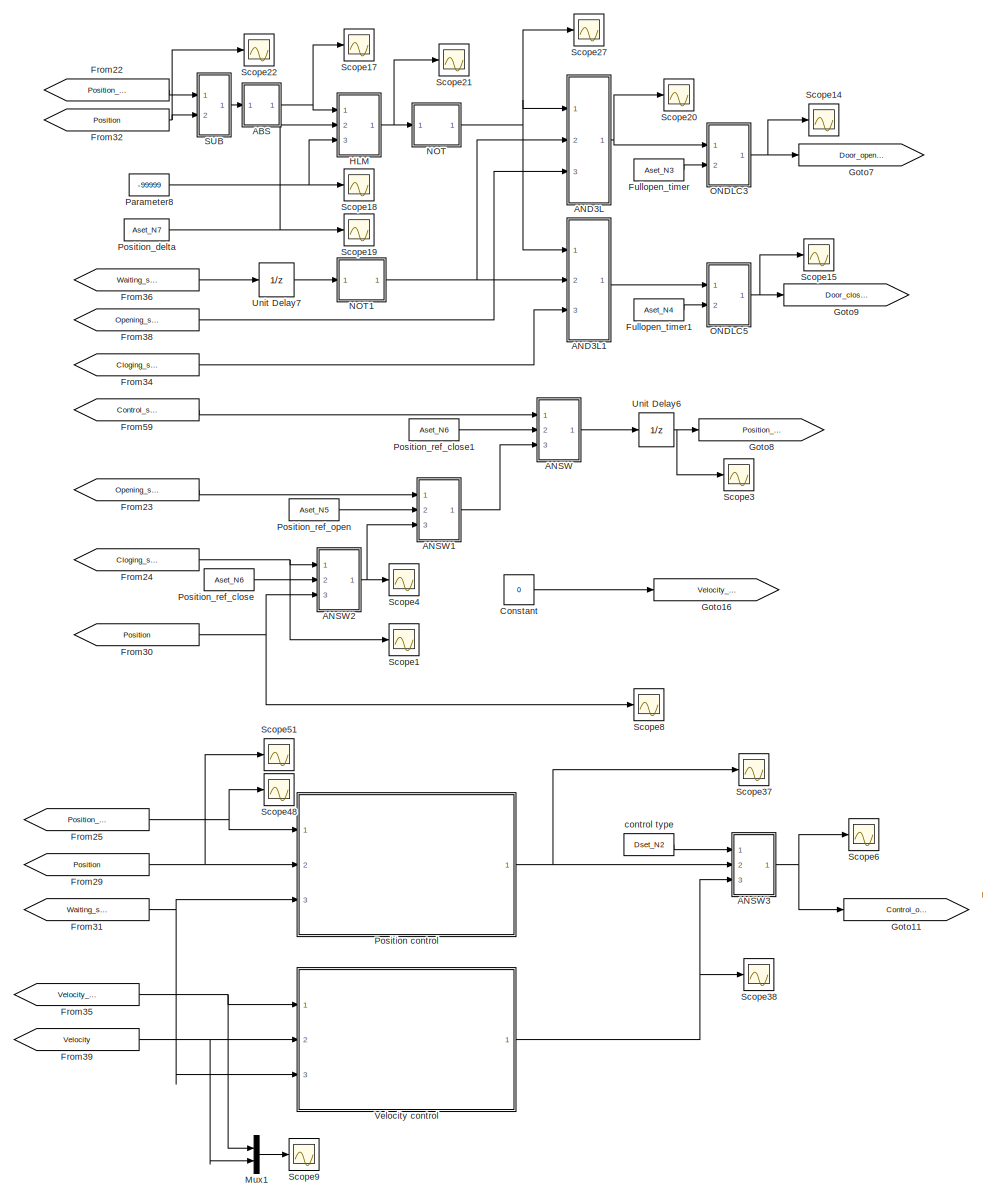
[diagram: root canvas - part 1/7, top left region]
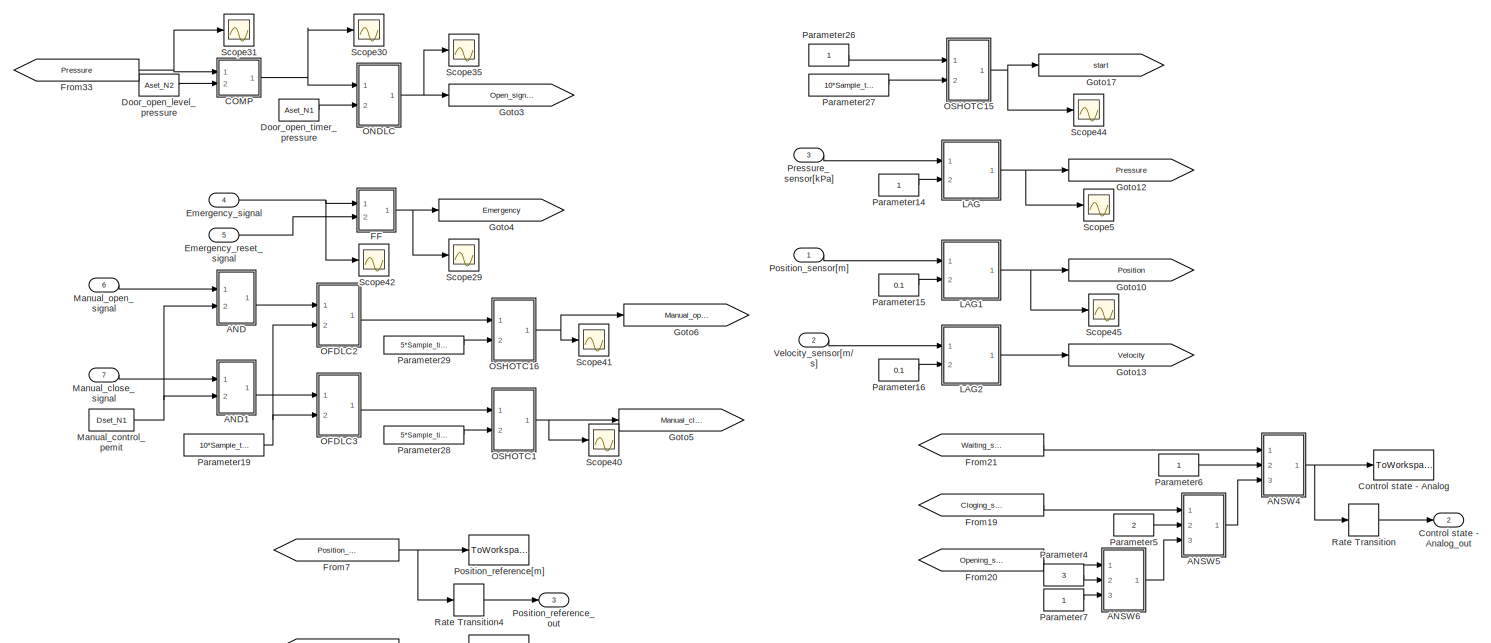
[diagram: root canvas - part 2/7, top right region]
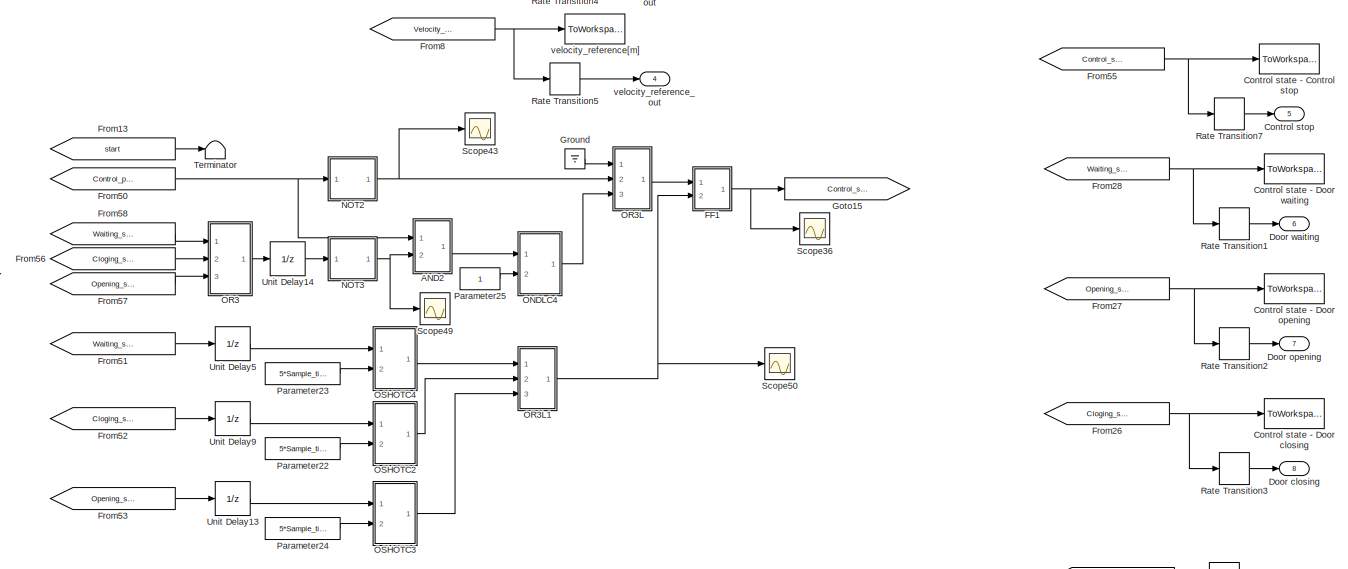
[diagram: root canvas - part 3/7, central region]
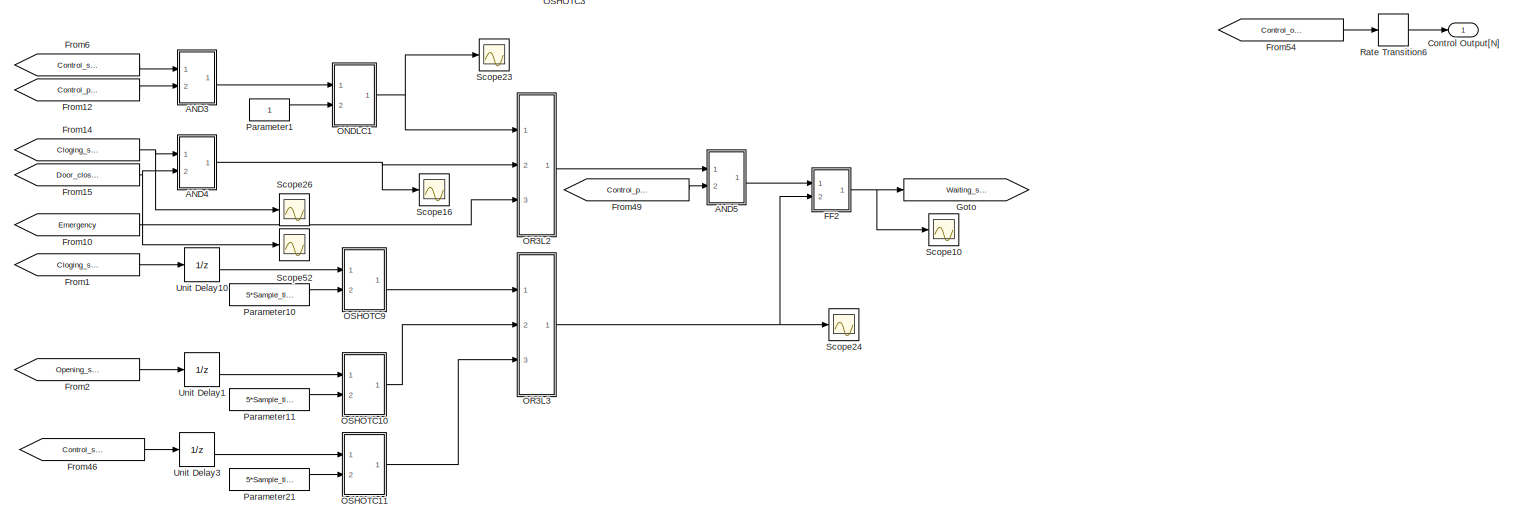
[diagram: root canvas - part 4/7, central region]
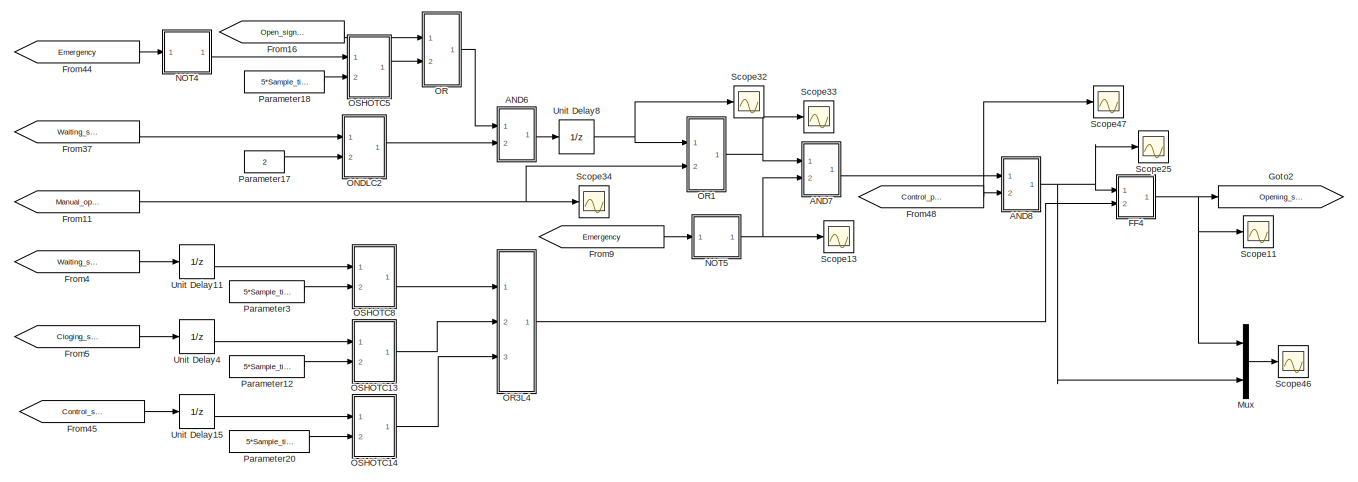
[diagram: root canvas - part 5/7, bottom center region]
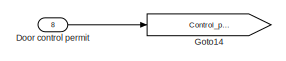
[diagram: root canvas - part 6/7, bottom left region]
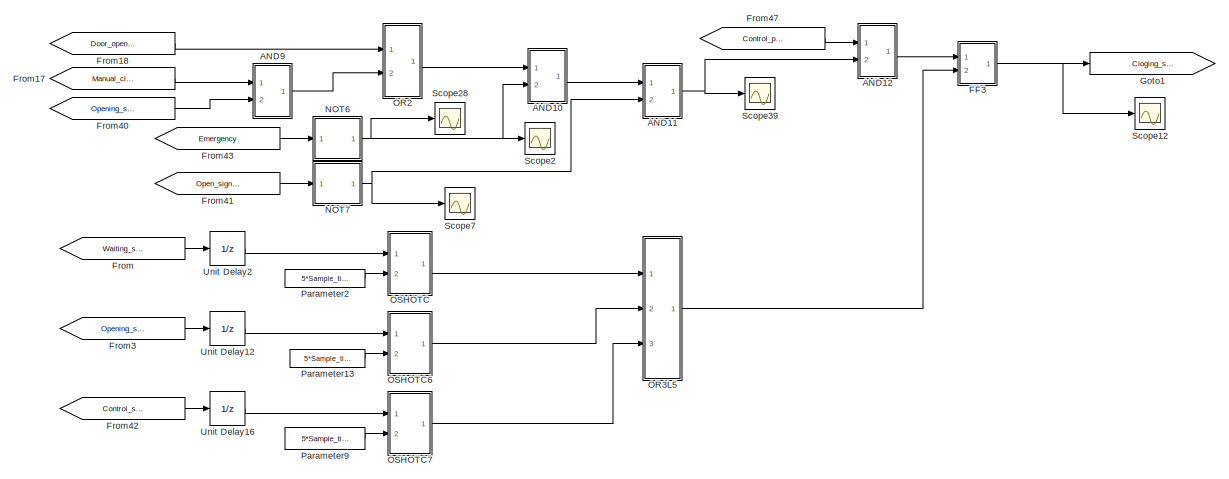
[diagram: root canvas - part 7/7, bottom center region]
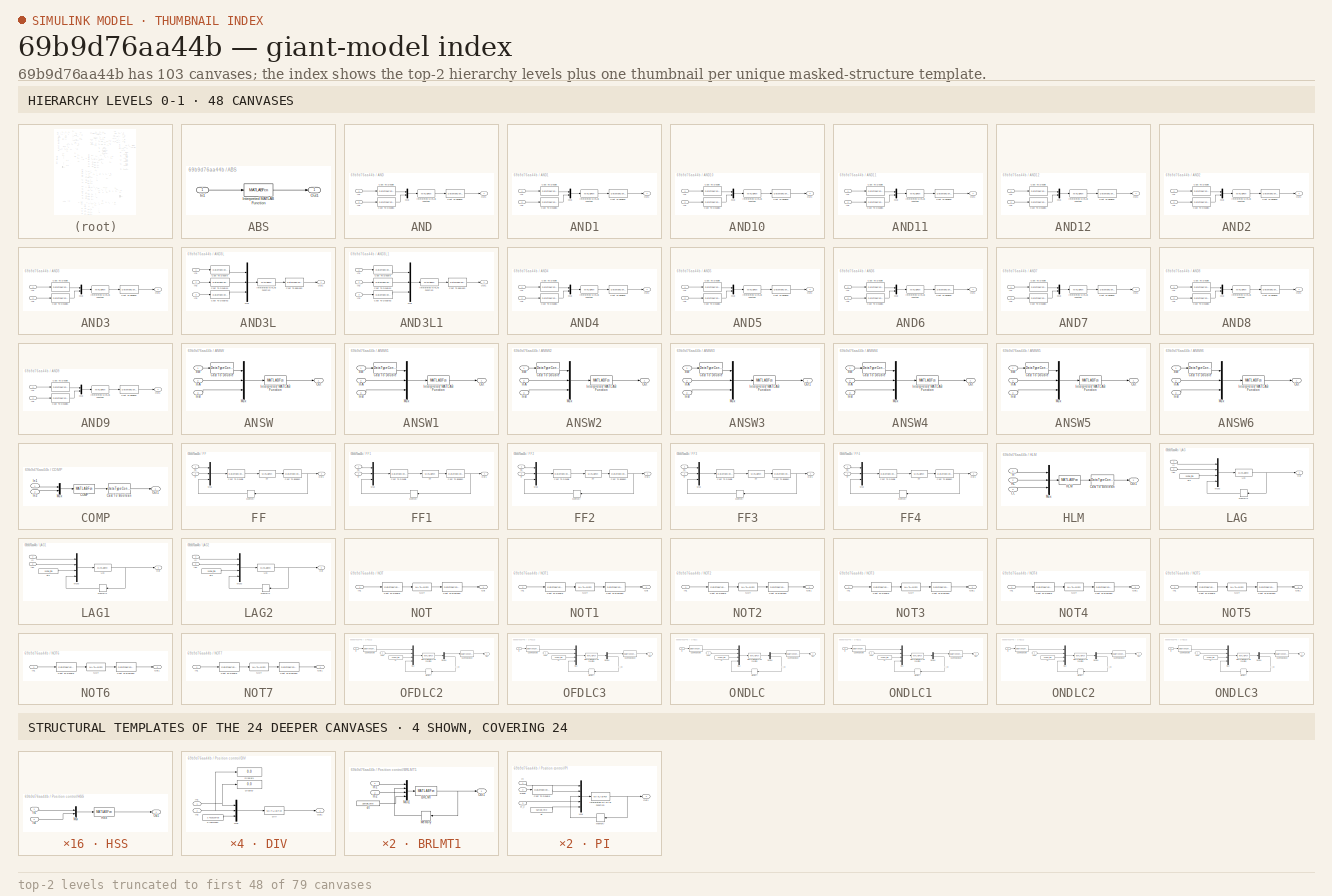
[diagram: thumbnail index - top-2 hierarchy levels (79 canvases (first 48 of 79 shown)) + 4 structural-template representatives of the remaining 24 canvases]
MODEL slx_69b9d76aa44b
KIND model
CONFIG AbsTol = auto
CONFIG EnableMultiTasking = off
CONFIG FixedStep = Sample_time
CONFIG MaxStep = auto
CONFIG MinStep = auto
CONFIG RelTol = 1e-3
CONFIG SampleTimeConstraint = Unconstrained
CONFIG Solver = FixedStepAuto
CONFIG SolverName = FixedStepAuto
CONFIG StartTime = Start_time
CONFIG StopTime = Stop_time
BLOCK [SubSystem] ABS
  Ports = [1, 1]
  RequestExecContextInheritance = off
BLOCK [Inport] ABS/In1
  IconDisplay = Port number
BLOCK [MATLABFcn] ABS/Interpreted MATLAB Function
  MATLABFcn = ABS
  Ports = [1, 1]
BLOCK [Outport] ABS/Out1
  IconDisplay = Port number
BLOCK [SubSystem] AND
  Ports = [2, 1]
  RequestExecContextInheritance = off
BLOCK [DataTypeConversion] AND/Cast To Boolean
  OutDataTypeStr = boolean
  RndMeth = Floor
  SaturateOnIntegerOverflow = off
BLOCK [DataTypeConversion] AND/Cast To Double
  OutDataTypeStr = double
  RndMeth = Floor
  SaturateOnIntegerOverflow = off
BLOCK [DataTypeConversion] AND/Cast To Double1
  OutDataTypeStr = double
  RndMeth = Floor
  SaturateOnIntegerOverflow = off
BLOCK [Inport] AND/In1
  IconDisplay = Port number
BLOCK [Inport] AND/In2
  IconDisplay = Port number
  Port = 2
BLOCK [MATLABFcn] AND/Interpreted MATLAB Function
  MATLABFcn = AND
  Ports = [1, 1]
BLOCK [Mux] AND/Mux
  DisplayOption = bar
  Inputs = 2
  Ports = [2, 1]
BLOCK [Outport] AND/Out1
  IconDisplay = Port number
BLOCK [SubSystem] AND1
  Ports = [2, 1]
  RequestExecContextInheritance = off
BLOCK [DataTypeConversion] AND1/Cast To Boolean
  OutDataTypeStr = boolean
  RndMeth = Floor
  SaturateOnIntegerOverflow = off
BLOCK [DataTypeConversion] AND1/Cast To Double
  OutDataTypeStr = double
  RndMeth = Floor
  SaturateOnIntegerOverflow = off
BLOCK [DataTypeConversion] AND1/Cast To Double1
  OutDataTypeStr = double
  RndMeth = Floor
  SaturateOnIntegerOverflow = off
BLOCK [Inport] AND1/In1
  IconDisplay = Port number
BLOCK [Inport] AND1/In2
  IconDisplay = Port number
  Port = 2
BLOCK [MATLABFcn] AND1/Interpreted MATLAB Function
  MATLABFcn = AND
  Ports = [1, 1]
BLOCK [Mux] AND1/Mux
  DisplayOption = bar
  Inputs = 2
  Ports = [2, 1]
BLOCK [Outport] AND1/Out1
  IconDisplay = Port number
BLOCK [SubSystem] AND10
  Ports = [2, 1]
  RequestExecContextInheritance = off
BLOCK [DataTypeConversion] AND10/Cast To Boolean
  OutDataTypeStr = boolean
  RndMeth = Floor
  SaturateOnIntegerOverflow = off
BLOCK [DataTypeConversion] AND10/Cast To Double
  OutDataTypeStr = double
  RndMeth = Floor
  SaturateOnIntegerOverflow = off
BLOCK [DataTypeConversion] AND10/Cast To Double1
  OutDataTypeStr = double
  RndMeth = Floor
  SaturateOnIntegerOverflow = off
BLOCK [Inport] AND10/In1
  IconDisplay = Port number
BLOCK [Inport] AND10/In2
  IconDisplay = Port number
  Port = 2
BLOCK [MATLABFcn] AND10/Interpreted MATLAB Function
  MATLABFcn = AND
  Ports = [1, 1]
BLOCK [Mux] AND10/Mux
  DisplayOption = bar
  Inputs = 2
  Ports = [2, 1]
BLOCK [Outport] AND10/Out1
  IconDisplay = Port number
BLOCK [SubSystem] AND11
  Ports = [2, 1]
  RequestExecContextInheritance = off
BLOCK [DataTypeConversion] AND11/Cast To Boolean
  OutDataTypeStr = boolean
  RndMeth = Floor
  SaturateOnIntegerOverflow = off
BLOCK [DataTypeConversion] AND11/Cast To Double
  OutDataTypeStr = double
  RndMeth = Floor
  SaturateOnIntegerOverflow = off
BLOCK [DataTypeConversion] AND11/Cast To Double1
  OutDataTypeStr = double
  RndMeth = Floor
  SaturateOnIntegerOverflow = off
BLOCK [Inport] AND11/In1
  IconDisplay = Port number
BLOCK [Inport] AND11/In2
  IconDisplay = Port number
  Port = 2
BLOCK [MATLABFcn] AND11/Interpreted MATLAB Function
  MATLABFcn = AND
  Ports = [1, 1]
BLOCK [Mux] AND11/Mux
  DisplayOption = bar
  Inputs = 2
  Ports = [2, 1]
BLOCK [Outport] AND11/Out1
  IconDisplay = Port number
BLOCK [SubSystem] AND12
  Ports = [2, 1]
  RequestExecContextInheritance = off
BLOCK [DataTypeConversion] AND12/Cast To Boolean
  OutDataTypeStr = boolean
  RndMeth = Floor
  SaturateOnIntegerOverflow = off
BLOCK [DataTypeConversion] AND12/Cast To Double
  OutDataTypeStr = double
  RndMeth = Floor
  SaturateOnIntegerOverflow = off
BLOCK [DataTypeConversion] AND12/Cast To Double1
  OutDataTypeStr = double
  RndMeth = Floor
  SaturateOnIntegerOverflow = off
BLOCK [Inport] AND12/In1
  IconDisplay = Port number
BLOCK [Inport] AND12/In2
  IconDisplay = Port number
  Port = 2
BLOCK [MATLABFcn] AND12/Interpreted MATLAB Function
  MATLABFcn = AND
  Ports = [1, 1]
BLOCK [Mux] AND12/Mux
  DisplayOption = bar
  Inputs = 2
  Ports = [2, 1]
BLOCK [Outport] AND12/Out1
  IconDisplay = Port number
BLOCK [SubSystem] AND2
  Ports = [2, 1]
  RequestExecContextInheritance = off
BLOCK [DataTypeConversion] AND2/Cast To Boolean
  OutDataTypeStr = boolean
  RndMeth = Floor
  SaturateOnIntegerOverflow = off
BLOCK [DataTypeConversion] AND2/Cast To Double
  OutDataTypeStr = double
  RndMeth = Floor
  SaturateOnIntegerOverflow = off
BLOCK [DataTypeConversion] AND2/Cast To Double1
  OutDataTypeStr = double
  RndMeth = Floor
  SaturateOnIntegerOverflow = off
BLOCK [Inport] AND2/In1
  IconDisplay = Port number
BLOCK [Inport] AND2/In2
  IconDisplay = Port number
  Port = 2
BLOCK [MATLABFcn] AND2/Interpreted MATLAB Function
  MATLABFcn = AND
  Ports = [1, 1]
BLOCK [Mux] AND2/Mux
  DisplayOption = bar
  Inputs = 2
  Ports = [2, 1]
BLOCK [Outport] AND2/Out1
  IconDisplay = Port number
BLOCK [SubSystem] AND3
  Ports = [2, 1]
  RequestExecContextInheritance = off
BLOCK [DataTypeConversion] AND3/Cast To Boolean
  OutDataTypeStr = boolean
  RndMeth = Floor
  SaturateOnIntegerOverflow = off
BLOCK [DataTypeConversion] AND3/Cast To Double
  OutDataTypeStr = double
  RndMeth = Floor
  SaturateOnIntegerOverflow = off
BLOCK [DataTypeConversion] AND3/Cast To Double1
  OutDataTypeStr = double
  RndMeth = Floor
  SaturateOnIntegerOverflow = off
BLOCK [Inport] AND3/In1
  IconDisplay = Port number
BLOCK [Inport] AND3/In2
  IconDisplay = Port number
  Port = 2
BLOCK [MATLABFcn] AND3/Interpreted MATLAB Function
  MATLABFcn = AND
  Ports = [1, 1]
BLOCK [Mux] AND3/Mux
  DisplayOption = bar
  Inputs = 2
  Ports = [2, 1]
BLOCK [Outport] AND3/Out1
  IconDisplay = Port number
BLOCK [SubSystem] AND3L
  Ports = [3, 1]
  RequestExecContextInheritance = off
BLOCK [DataTypeConversion] AND3L/Cast To Boolean
  OutDataTypeStr = boolean
  RndMeth = Floor
  SaturateOnIntegerOverflow = off
BLOCK [DataTypeConversion] AND3L/Cast To Double
  OutDataTypeStr = double
  RndMeth = Floor
  SaturateOnIntegerOverflow = off
BLOCK [DataTypeConversion] AND3L/Cast To Double1
  OutDataTypeStr = double
  RndMeth = Floor
  SaturateOnIntegerOverflow = off
BLOCK [DataTypeConversion] AND3L/Cast To Double2
  OutDataTypeStr = double
  RndMeth = Floor
  SaturateOnIntegerOverflow = off
BLOCK [Inport] AND3L/In1
  IconDisplay = Port number
BLOCK [Inport] AND3L/In2
  IconDisplay = Port number
  Port = 2
BLOCK [Inport] AND3L/In3
  IconDisplay = Port number
  Port = 3
BLOCK [MATLABFcn] AND3L/Interpreted MATLAB Function
  MATLABFcn = AND3
  Ports = [1, 1]
BLOCK [Mux] AND3L/Mux
  DisplayOption = bar
  Inputs = 3
  Ports = [3, 1]
BLOCK [Outport] AND3L/Out1
  IconDisplay = Port number
BLOCK [SubSystem] AND3L1
  Ports = [3, 1]
  RequestExecContextInheritance = off
BLOCK [DataTypeConversion] AND3L1/Cast To Boolean
  OutDataTypeStr = boolean
  RndMeth = Floor
  SaturateOnIntegerOverflow = off
BLOCK [DataTypeConversion] AND3L1/Cast To Double
  OutDataTypeStr = double
  RndMeth = Floor
  SaturateOnIntegerOverflow = off
BLOCK [DataTypeConversion] AND3L1/Cast To Double1
  OutDataTypeStr = double
  RndMeth = Floor
  SaturateOnIntegerOverflow = off
BLOCK [DataTypeConversion] AND3L1/Cast To Double2
  OutDataTypeStr = double
  RndMeth = Floor
  SaturateOnIntegerOverflow = off
BLOCK [Inport] AND3L1/In1
  IconDisplay = Port number
BLOCK [Inport] AND3L1/In2
  IconDisplay = Port number
  Port = 2
BLOCK [Inport] AND3L1/In3
  IconDisplay = Port number
  Port = 3
BLOCK [MATLABFcn] AND3L1/Interpreted MATLAB Function
  MATLABFcn = AND3
  Ports = [1, 1]
BLOCK [Mux] AND3L1/Mux
  DisplayOption = bar
  Inputs = 3
  Ports = [3, 1]
BLOCK [Outport] AND3L1/Out1
  IconDisplay = Port number
BLOCK [SubSystem] AND4
  Ports = [2, 1]
  RequestExecContextInheritance = off
BLOCK [DataTypeConversion] AND4/Cast To Boolean
  OutDataTypeStr = boolean
  RndMeth = Floor
  SaturateOnIntegerOverflow = off
BLOCK [DataTypeConversion] AND4/Cast To Double
  OutDataTypeStr = double
  RndMeth = Floor
  SaturateOnIntegerOverflow = off
BLOCK [DataTypeConversion] AND4/Cast To Double1
  OutDataTypeStr = double
  RndMeth = Floor
  SaturateOnIntegerOverflow = off
BLOCK [Inport] AND4/In1
  IconDisplay = Port number
BLOCK [Inport] AND4/In2
  IconDisplay = Port number
  Port = 2
BLOCK [MATLABFcn] AND4/Interpreted MATLAB Function
  MATLABFcn = AND
  Ports = [1, 1]
BLOCK [Mux] AND4/Mux
  DisplayOption = bar
  Inputs = 2
  Ports = [2, 1]
BLOCK [Outport] AND4/Out1
  IconDisplay = Port number
BLOCK [SubSystem] AND5
  Ports = [2, 1]
  RequestExecContextInheritance = off
BLOCK [DataTypeConversion] AND5/Cast To Boolean
  OutDataTypeStr = boolean
  RndMeth = Floor
  SaturateOnIntegerOverflow = off
BLOCK [DataTypeConversion] AND5/Cast To Double
  OutDataTypeStr = double
  RndMeth = Floor
  SaturateOnIntegerOverflow = off
BLOCK [DataTypeConversion] AND5/Cast To Double1
  OutDataTypeStr = double
  RndMeth = Floor
  SaturateOnIntegerOverflow = off
BLOCK [Inport] AND5/In1
  IconDisplay = Port number
BLOCK [Inport] AND5/In2
  IconDisplay = Port number
  Port = 2
BLOCK [MATLABFcn] AND5/Interpreted MATLAB Function
  MATLABFcn = AND
  Ports = [1, 1]
BLOCK [Mux] AND5/Mux
  DisplayOption = bar
  Inputs = 2
  Ports = [2, 1]
BLOCK [Outport] AND5/Out1
  IconDisplay = Port number
BLOCK [SubSystem] AND6
  Ports = [2, 1]
  RequestExecContextInheritance = off
BLOCK [DataTypeConversion] AND6/Cast To Boolean
  OutDataTypeStr = boolean
  RndMeth = Floor
  SaturateOnIntegerOverflow = off
BLOCK [DataTypeConversion] AND6/Cast To Double
  OutDataTypeStr = double
  RndMeth = Floor
  SaturateOnIntegerOverflow = off
BLOCK [DataTypeConversion] AND6/Cast To Double1
  OutDataTypeStr = double
  RndMeth = Floor
  SaturateOnIntegerOverflow = off
BLOCK [Inport] AND6/In1
  IconDisplay = Port number
BLOCK [Inport] AND6/In2
  IconDisplay = Port number
  Port = 2
BLOCK [MATLABFcn] AND6/Interpreted MATLAB Function
  MATLABFcn = AND
  Ports = [1, 1]
BLOCK [Mux] AND6/Mux
  DisplayOption = bar
  Inputs = 2
  Ports = [2, 1]
BLOCK [Outport] AND6/Out1
  IconDisplay = Port number
BLOCK [SubSystem] AND7
  Ports = [2, 1]
  RequestExecContextInheritance = off
BLOCK [DataTypeConversion] AND7/Cast To Boolean
  OutDataTypeStr = boolean
  RndMeth = Floor
  SaturateOnIntegerOverflow = off
BLOCK [DataTypeConversion] AND7/Cast To Double
  OutDataTypeStr = double
  RndMeth = Floor
  SaturateOnIntegerOverflow = off
BLOCK [DataTypeConversion] AND7/Cast To Double1
  OutDataTypeStr = double
  RndMeth = Floor
  SaturateOnIntegerOverflow = off
BLOCK [Inport] AND7/In1
  IconDisplay = Port number
BLOCK [Inport] AND7/In2
  IconDisplay = Port number
  Port = 2
BLOCK [MATLABFcn] AND7/Interpreted MATLAB Function
  MATLABFcn = AND
  Ports = [1, 1]
BLOCK [Mux] AND7/Mux
  DisplayOption = bar
  Inputs = 2
  Ports = [2, 1]
BLOCK [Outport] AND7/Out1
  IconDisplay = Port number
BLOCK [SubSystem] AND8
  Ports = [2, 1]
  RequestExecContextInheritance = off
BLOCK [DataTypeConversion] AND8/Cast To Boolean
  OutDataTypeStr = boolean
  RndMeth = Floor
  SaturateOnIntegerOverflow = off
BLOCK [DataTypeConversion] AND8/Cast To Double
  OutDataTypeStr = double
  RndMeth = Floor
  SaturateOnIntegerOverflow = off
BLOCK [DataTypeConversion] AND8/Cast To Double1
  OutDataTypeStr = double
  RndMeth = Floor
  SaturateOnIntegerOverflow = off
BLOCK [Inport] AND8/In1
  IconDisplay = Port number
BLOCK [Inport] AND8/In2
  IconDisplay = Port number
  Port = 2
BLOCK [MATLABFcn] AND8/Interpreted MATLAB Function
  MATLABFcn = AND
  Ports = [1, 1]
BLOCK [Mux] AND8/Mux
  DisplayOption = bar
  Inputs = 2
  Ports = [2, 1]
BLOCK [Outport] AND8/Out1
  IconDisplay = Port number
BLOCK [SubSystem] AND9
  Ports = [2, 1]
  RequestExecContextInheritance = off
BLOCK [DataTypeConversion] AND9/Cast To Boolean
  OutDataTypeStr = boolean
  RndMeth = Floor
  SaturateOnIntegerOverflow = off
BLOCK [DataTypeConversion] AND9/Cast To Double
  OutDataTypeStr = double
  RndMeth = Floor
  SaturateOnIntegerOverflow = off
BLOCK [DataTypeConversion] AND9/Cast To Double1
  OutDataTypeStr = double
  RndMeth = Floor
  SaturateOnIntegerOverflow = off
BLOCK [Inport] AND9/In1
  IconDisplay = Port number
BLOCK [Inport] AND9/In2
  IconDisplay = Port number
  Port = 2
BLOCK [MATLABFcn] AND9/Interpreted MATLAB Function
  MATLABFcn = AND
  Ports = [1, 1]
BLOCK [Mux] AND9/Mux
  DisplayOption = bar
  Inputs = 2
  Ports = [2, 1]
BLOCK [Outport] AND9/Out1
  IconDisplay = Port number
BLOCK [SubSystem] ANSW
  Ports = [3, 1]
  RequestExecContextInheritance = off
BLOCK [DataTypeConversion] ANSW/Cast To Double
  OutDataTypeStr = double
  RndMeth = Floor
  SaturateOnIntegerOverflow = off
BLOCK [Inport] ANSW/InA
  IconDisplay = Port number
  Port = 2
BLOCK [Inport] ANSW/InB
  IconDisplay = Port number
  Port = 3
BLOCK [MATLABFcn] ANSW/Interpreted MATLAB Function
  MATLABFcn = ANSW
  Ports = [1, 1]
BLOCK [Mux] ANSW/Mux
  DisplayOption = bar
  Inputs = 3
  Ports = [3, 1]
BLOCK [Outport] ANSW/Out
  IconDisplay = Port number
BLOCK [Inport] ANSW/SW
  IconDisplay = Port number
BLOCK [SubSystem] ANSW1
  Ports = [3, 1]
  RequestExecContextInheritance = off
BLOCK [DataTypeConversion] ANSW1/Cast To Double
  OutDataTypeStr = double
  RndMeth = Floor
  SaturateOnIntegerOverflow = off
BLOCK [Inport] ANSW1/InA
  IconDisplay = Port number
  Port = 2
BLOCK [Inport] ANSW1/InB
  IconDisplay = Port number
  Port = 3
BLOCK [MATLABFcn] ANSW1/Interpreted MATLAB Function
  MATLABFcn = ANSW
  Ports = [1, 1]
BLOCK [Mux] ANSW1/Mux
  DisplayOption = bar
  Inputs = 3
  Ports = [3, 1]
BLOCK [Outport] ANSW1/Out
  IconDisplay = Port number
BLOCK [Inport] ANSW1/SW
  IconDisplay = Port number
BLOCK [SubSystem] ANSW2
  Ports = [3, 1]
  RequestExecContextInheritance = off
BLOCK [DataTypeConversion] ANSW2/Cast To Double
  OutDataTypeStr = double
  RndMeth = Floor
  SaturateOnIntegerOverflow = off
BLOCK [Inport] ANSW2/InA
  IconDisplay = Port number
  Port = 2
BLOCK [Inport] ANSW2/InB
  IconDisplay = Port number
  Port = 3
BLOCK [MATLABFcn] ANSW2/Interpreted MATLAB Function
  MATLABFcn = ANSW
  Ports = [1, 1]
BLOCK [Mux] ANSW2/Mux
  DisplayOption = bar
  Inputs = 3
  Ports = [3, 1]
BLOCK [Outport] ANSW2/Out
  IconDisplay = Port number
BLOCK [Inport] ANSW2/SW
  IconDisplay = Port number
BLOCK [SubSystem] ANSW3
  Ports = [3, 1]
  RequestExecContextInheritance = off
BLOCK [DataTypeConversion] ANSW3/Cast To Double
  OutDataTypeStr = double
  RndMeth = Floor
  SaturateOnIntegerOverflow = off
BLOCK [Inport] ANSW3/InA
  IconDisplay = Port number
  Port = 2
BLOCK [Inport] ANSW3/InB
  IconDisplay = Port number
  Port = 3
BLOCK [MATLABFcn] ANSW3/Interpreted MATLAB Function
  MATLABFcn = ANSW
  Ports = [1, 1]
BLOCK [Mux] ANSW3/Mux
  DisplayOption = bar
  Inputs = 3
  Ports = [3, 1]
BLOCK [Outport] ANSW3/Out1
  IconDisplay = Port number
BLOCK [Inport] ANSW3/SW
  IconDisplay = Port number
BLOCK [SubSystem] ANSW4
  Ports = [3, 1]
  RequestExecContextInheritance = off
BLOCK [DataTypeConversion] ANSW4/Cast To Double
  OutDataTypeStr = double
  RndMeth = Floor
  SaturateOnIntegerOverflow = off
BLOCK [Inport] ANSW4/InA
  IconDisplay = Port number
  Port = 2
BLOCK [Inport] ANSW4/InB
  IconDisplay = Port number
  Port = 3
BLOCK [MATLABFcn] ANSW4/Interpreted MATLAB Function
  MATLABFcn = ANSW
  Ports = [1, 1]
BLOCK [Mux] ANSW4/Mux
  DisplayOption = bar
  Inputs = 3
  Ports = [3, 1]
BLOCK [Outport] ANSW4/Out
  IconDisplay = Port number
BLOCK [Inport] ANSW4/SW
  IconDisplay = Port number
BLOCK [SubSystem] ANSW5
  Ports = [3, 1]
  RequestExecContextInheritance = off
BLOCK [DataTypeConversion] ANSW5/Cast To Double
  OutDataTypeStr = double
  RndMeth = Floor
  SaturateOnIntegerOverflow = off
BLOCK [Inport] ANSW5/InA
  IconDisplay = Port number
  Port = 2
BLOCK [Inport] ANSW5/InB
  IconDisplay = Port number
  Port = 3
BLOCK [MATLABFcn] ANSW5/Interpreted MATLAB Function
  MATLABFcn = ANSW
  Ports = [1, 1]
BLOCK [Mux] ANSW5/Mux
  DisplayOption = bar
  Inputs = 3
  Ports = [3, 1]
BLOCK [Outport] ANSW5/Out
  IconDisplay = Port number
BLOCK [Inport] ANSW5/SW
  IconDisplay = Port number
BLOCK [SubSystem] ANSW6
  Ports = [3, 1]
  RequestExecContextInheritance = off
BLOCK [DataTypeConversion] ANSW6/Cast To Double
  OutDataTypeStr = double
  RndMeth = Floor
  SaturateOnIntegerOverflow = off
BLOCK [Inport] ANSW6/InA
  IconDisplay = Port number
  Port = 2
BLOCK [Inport] ANSW6/InB
  IconDisplay = Port number
  Port = 3
BLOCK [MATLABFcn] ANSW6/Interpreted MATLAB Function
  MATLABFcn = ANSW
  Ports = [1, 1]
BLOCK [Mux] ANSW6/Mux
  DisplayOption = bar
  Inputs = 3
  Ports = [3, 1]
BLOCK [Outport] ANSW6/Out
  IconDisplay = Port number
BLOCK [Inport] ANSW6/SW
  IconDisplay = Port number
BLOCK [SubSystem] COMP
  Ports = [2, 1]
  RequestExecContextInheritance = off
BLOCK [MATLABFcn] COMP/COMP
  MATLABFcn = COMP
  Ports = [1, 1]
BLOCK [DataTypeConversion] COMP/Cast To Boolean
  OutDataTypeStr = boolean
  RndMeth = Floor
  SaturateOnIntegerOverflow = off
BLOCK [Inport] COMP/In1
  IconDisplay = Port number
BLOCK [Inport] COMP/In2
  IconDisplay = Port number
  Port = 2
BLOCK [Mux] COMP/Mux
  DisplayOption = bar
  Inputs = 2
  Ports = [2, 1]
BLOCK [Outport] COMP/Out1
  IconDisplay = Port number
BLOCK [Constant] Constant
  Value = 0
BLOCK [Outport] Control Output[N]
  IconDisplay = Port number
  LockScale = on
  OutDataTypeStr = double
  SampleTime = Sample_time
  Unit = N
BLOCK [ToWorkspace] Control state - Analog
  FixptAsFi = on
  MaxDataPoints = inf
  Ports = [1]
  SampleTime = Sample_time
  Save2DSignal = 3-D array (concatenate along third dimension)
  VariableName = Aout_N2
BLOCK [Outport] Control state - Analog_out
  IconDisplay = Port number
  Port = 2
  SampleTime = Sample_time
BLOCK [ToWorkspace] Control state - Control stop
  FixptAsFi = on
  MaxDataPoints = inf
  Ports = [1]
  SampleTime = Sample_time
  Save2DSignal = 3-D array (concatenate along third dimension)
  VariableName = Dout_N1
BLOCK [ToWorkspace] Control state - Door closing
  FixptAsFi = on
  MaxDataPoints = inf
  Ports = [1]
  SampleTime = Sample_time
  Save2DSignal = 3-D array (concatenate along third dimension)
  VariableName = Dout_N4
BLOCK [ToWorkspace] Control state - Door opening
  FixptAsFi = on
  MaxDataPoints = inf
  Ports = [1]
  SampleTime = Sample_time
  Save2DSignal = 3-D array (concatenate along third dimension)
  VariableName = Dout_N3
BLOCK [ToWorkspace] Control state - Door waiting
  FixptAsFi = on
  MaxDataPoints = inf
  Ports = [1]
  SampleTime = Sample_time
  Save2DSignal = 3-D array (concatenate along third dimension)
  VariableName = Dout_N2
BLOCK [Outport] Control stop
  IconDisplay = Port number
  Port = 5
  SampleTime = Sample_time
BLOCK [Outport] Door closing
  IconDisplay = Port number
  Port = 8
  SampleTime = Sample_time
BLOCK [Inport] Door control permit
  IconDisplay = Port number
  OutDataTypeStr = boolean
  Port = 8
  SampleTime = Sample_time
BLOCK [Outport] Door opening
  IconDisplay = Port number
  Port = 7
  SampleTime = Sample_time
BLOCK [Outport] Door waiting
  IconDisplay = Port number
  Port = 6
  SampleTime = Sample_time
BLOCK [Constant] Door_open_level_pressure
  OutDataTypeStr = double
  SampleTime = Sample_time
  Value = Aset_N2
BLOCK [Constant] Door_open_timer_pressure
  OutDataTypeStr = double
  SampleTime = Sample_time
  Value = Aset_N1
BLOCK [Inport] Emergency_reset_signal
  IconDisplay = Port number
  OutDataTypeStr = boolean
  Port = 5
  SampleTime = Sample_time
BLOCK [Inport] Emergency_signal
  IconDisplay = Port number
  OutDataTypeStr = boolean
  Port = 4
  SampleTime = Sample_time
BLOCK [SubSystem] FF
  Ports = [2, 1]
  RequestExecContextInheritance = off
BLOCK [DataTypeConversion] FF/Cast To Boolean
  OutDataTypeStr = boolean
  RndMeth = Floor
  SaturateOnIntegerOverflow = off
BLOCK [DataTypeConversion] FF/Cast To Double
  OutDataTypeStr = double
  RndMeth = Floor
  SaturateOnIntegerOverflow = off
BLOCK [MATLABFcn] FF/FF
  MATLABFcn = FF
  Ports = [1, 1]
BLOCK [Memory] FF/Memory
  InheritSampleTime = on
BLOCK [Mux] FF/Mux
  DisplayOption = bar
  Inputs = 3
  Ports = [3, 1]
BLOCK [Outport] FF/Out1
  IconDisplay = Port number
BLOCK [Inport] FF/R
  IconDisplay = Port number
  Port = 2
BLOCK [Inport] FF/SS
  IconDisplay = Port number
BLOCK [SubSystem] FF1
  Ports = [2, 1]
  RequestExecContextInheritance = off
BLOCK [DataTypeConversion] FF1/Cast To Boolean
  OutDataTypeStr = boolean
  RndMeth = Floor
  SaturateOnIntegerOverflow = off
BLOCK [DataTypeConversion] FF1/Cast To Double
  OutDataTypeStr = double
  RndMeth = Floor
  SaturateOnIntegerOverflow = off
BLOCK [MATLABFcn] FF1/FF
  MATLABFcn = FF
  Ports = [1, 1]
BLOCK [Memory] FF1/Memory
  InheritSampleTime = on
BLOCK [Mux] FF1/Mux
  DisplayOption = bar
  Inputs = 3
  Ports = [3, 1]
BLOCK [Outport] FF1/Out1
  IconDisplay = Port number
BLOCK [Inport] FF1/R
  IconDisplay = Port number
  Port = 2
BLOCK [Inport] FF1/SS
  IconDisplay = Port number
BLOCK [SubSystem] FF2
  Ports = [2, 1]
  RequestExecContextInheritance = off
BLOCK [DataTypeConversion] FF2/Cast To Boolean
  OutDataTypeStr = boolean
  RndMeth = Floor
  SaturateOnIntegerOverflow = off
BLOCK [DataTypeConversion] FF2/Cast To Double
  OutDataTypeStr = double
  RndMeth = Floor
  SaturateOnIntegerOverflow = off
BLOCK [MATLABFcn] FF2/FF
  MATLABFcn = FF
  Ports = [1, 1]
BLOCK [Memory] FF2/Memory
  InheritSampleTime = on
BLOCK [Mux] FF2/Mux
  DisplayOption = bar
  Inputs = 3
  Ports = [3, 1]
BLOCK [Outport] FF2/Out1
  IconDisplay = Port number
BLOCK [Inport] FF2/R
  IconDisplay = Port number
  Port = 2
BLOCK [Inport] FF2/SS
  IconDisplay = Port number
BLOCK [SubSystem] FF3
  Ports = [2, 1]
  RequestExecContextInheritance = off
BLOCK [DataTypeConversion] FF3/Cast To Boolean
  OutDataTypeStr = boolean
  RndMeth = Floor
  SaturateOnIntegerOverflow = off
BLOCK [DataTypeConversion] FF3/Cast To Double
  OutDataTypeStr = double
  RndMeth = Floor
  SaturateOnIntegerOverflow = off
BLOCK [MATLABFcn] FF3/FF
  MATLABFcn = FF
  Ports = [1, 1]
BLOCK [Memory] FF3/Memory
  InheritSampleTime = on
BLOCK [Mux] FF3/Mux
  DisplayOption = bar
  Inputs = 3
  Ports = [3, 1]
BLOCK [Outport] FF3/Out1
  IconDisplay = Port number
BLOCK [Inport] FF3/R
  IconDisplay = Port number
  Port = 2
BLOCK [Inport] FF3/SS
  IconDisplay = Port number
BLOCK [SubSystem] FF4
  Ports = [2, 1]
  RequestExecContextInheritance = off
BLOCK [DataTypeConversion] FF4/Cast To Boolean
  OutDataTypeStr = boolean
  RndMeth = Floor
  SaturateOnIntegerOverflow = off
BLOCK [DataTypeConversion] FF4/Cast To Double
  OutDataTypeStr = double
  RndMeth = Floor
  SaturateOnIntegerOverflow = off
BLOCK [MATLABFcn] FF4/FF
  MATLABFcn = FF
  Ports = [1, 1]
BLOCK [Memory] FF4/Memory
  InheritSampleTime = on
BLOCK [Mux] FF4/Mux
  DisplayOption = bar
  Inputs = 3
  Ports = [3, 1]
BLOCK [Outport] FF4/Out1
  IconDisplay = Port number
BLOCK [Inport] FF4/R
  IconDisplay = Port number
  Port = 2
BLOCK [Inport] FF4/SS
  IconDisplay = Port number
BLOCK [From] From
  GotoTag = Waiting_state
  TagVisibility = global
BLOCK [From] From1
  GotoTag = Cloging_state
  TagVisibility = global
BLOCK [From] From10
  GotoTag = Emergency
  TagVisibility = global
BLOCK [From] From11
  GotoTag = Manual_open
  TagVisibility = global
BLOCK [From] From12
  GotoTag = Control_permit
  TagVisibility = global
BLOCK [From] From13
  GotoTag = start
  TagVisibility = global
BLOCK [From] From14
  GotoTag = Cloging_state
  TagVisibility = global
BLOCK [From] From15
  GotoTag = Door_closing
  TagVisibility = global
BLOCK [From] From16
  GotoTag = Open_signal
  TagVisibility = global
BLOCK [From] From17
  GotoTag = Manual_close
  TagVisibility = global
BLOCK [From] From18
  GotoTag = Door_opening
  TagVisibility = global
BLOCK [From] From19
  GotoTag = Cloging_state
  TagVisibility = global
BLOCK [From] From2
  GotoTag = Opening_state
  TagVisibility = global
BLOCK [From] From20
  GotoTag = Opening_state
  TagVisibility = global
BLOCK [From] From21
  GotoTag = Waiting_state
  TagVisibility = global
BLOCK [From] From22
  GotoTag = Position_ref
  TagVisibility = global
BLOCK [From] From23
  GotoTag = Opening_state
  TagVisibility = global
BLOCK [From] From24
  GotoTag = Cloging_state
  TagVisibility = global
BLOCK [From] From25
  GotoTag = Position_ref
  TagVisibility = global
BLOCK [From] From26
  GotoTag = Cloging_state
  TagVisibility = global
BLOCK [From] From27
  GotoTag = Opening_state
  TagVisibility = global
BLOCK [From] From28
  GotoTag = Waiting_state
  TagVisibility = global
BLOCK [From] From29
  GotoTag = Position
  TagVisibility = global
BLOCK [From] From3
  GotoTag = Opening_state
  TagVisibility = global
BLOCK [From] From30
  GotoTag = Position
  TagVisibility = global
BLOCK [From] From31
  GotoTag = Waiting_state
  TagVisibility = global
BLOCK [From] From32
  GotoTag = Position
  TagVisibility = global
BLOCK [From] From33
  GotoTag = Pressure
  TagVisibility = global
BLOCK [From] From34
  GotoTag = Cloging_state
  TagVisibility = global
BLOCK [From] From35
  GotoTag = Velocity_ref
  TagVisibility = global
BLOCK [From] From36
  GotoTag = Waiting_state
  TagVisibility = global
BLOCK [From] From37
  GotoTag = Waiting_state
  TagVisibility = global
BLOCK [From] From38
  GotoTag = Opening_state
  TagVisibility = global
BLOCK [From] From39
  GotoTag = Velocity
  TagVisibility = global
BLOCK [From] From4
  GotoTag = Waiting_state
  TagVisibility = global
BLOCK [From] From40
  GotoTag = Opening_state
  TagVisibility = global
BLOCK [From] From41
  GotoTag = Open_signal
  TagVisibility = global
BLOCK [From] From42
  GotoTag = Control_stop_state
  TagVisibility = global
BLOCK [From] From43
  GotoTag = Emergency
  TagVisibility = global
BLOCK [From] From44
  GotoTag = Emergency
  TagVisibility = global
BLOCK [From] From45
  GotoTag = Control_stop_state
  TagVisibility = global
BLOCK [From] From46
  GotoTag = Control_stop_state
  TagVisibility = global
BLOCK [From] From47
  GotoTag = Control_permit
  TagVisibility = global
BLOCK [From] From48
  GotoTag = Control_permit
  TagVisibility = global
BLOCK [From] From49
  GotoTag = Control_permit
  TagVisibility = global
BLOCK [From] From5
  GotoTag = Cloging_state
  TagVisibility = global
BLOCK [From] From50
  GotoTag = Control_permit
  TagVisibility = global
BLOCK [From] From51
  GotoTag = Waiting_state
  TagVisibility = global
BLOCK [From] From52
  GotoTag = Cloging_state
  TagVisibility = global
BLOCK [From] From53
  GotoTag = Opening_state
  TagVisibility = global
BLOCK [From] From54
  GotoTag = Control_output
  TagVisibility = global
BLOCK [From] From55
  GotoTag = Control_stop_state
  TagVisibility = global
BLOCK [From] From56
  GotoTag = Cloging_state
  TagVisibility = global
BLOCK [From] From57
  GotoTag = Opening_state
  TagVisibility = global
BLOCK [From] From58
  GotoTag = Waiting_state
  TagVisibility = global
BLOCK [From] From59
  GotoTag = Control_stop_state
  TagVisibility = global
BLOCK [From] From6
  GotoTag = Control_stop_state
  TagVisibility = global
BLOCK [From] From7
  GotoTag = Position_ref
  TagVisibility = global
BLOCK [From] From8
  GotoTag = Velocity_ref
  TagVisibility = global
BLOCK [From] From9
  GotoTag = Emergency
  TagVisibility = global
BLOCK [Constant] Fullopen_timer
  OutDataTypeStr = double
  SampleTime = Sample_time
  Value = Aset_N3
BLOCK [Constant] Fullopen_timer1
  OutDataTypeStr = double
  SampleTime = Sample_time
  Value = Aset_N4
BLOCK [Goto] Goto
  GotoTag = Waiting_state
  TagVisibility = global
BLOCK [Goto] Goto1
  GotoTag = Cloging_state
  TagVisibility = global
BLOCK [Goto] Goto10
  GotoTag = Position
  TagVisibility = global
BLOCK [Goto] Goto11
  GotoTag = Control_output
  TagVisibility = global
BLOCK [Goto] Goto12
  GotoTag = Pressure
  TagVisibility = global
BLOCK [Goto] Goto13
  GotoTag = Velocity
  TagVisibility = global
BLOCK [Goto] Goto14
  GotoTag = Control_permit
  TagVisibility = global
BLOCK [Goto] Goto15
  GotoTag = Control_stop_state
  TagVisibility = global
BLOCK [Goto] Goto16
  GotoTag = Velocity_ref
  TagVisibility = global
BLOCK [Goto] Goto17
  GotoTag = start
  TagVisibility = global
BLOCK [Goto] Goto2
  GotoTag = Opening_state
  TagVisibility = global
BLOCK [Goto] Goto3
  GotoTag = Open_signal
  TagVisibility = global
BLOCK [Goto] Goto4
  GotoTag = Emergency
  TagVisibility = global
BLOCK [Goto] Goto5
  GotoTag = Manual_close
  TagVisibility = global
BLOCK [Goto] Goto6
  GotoTag = Manual_open
  TagVisibility = global
BLOCK [Goto] Goto7
  GotoTag = Door_opening
  TagVisibility = global
BLOCK [Goto] Goto8
  GotoTag = Position_ref
  TagVisibility = global
BLOCK [Goto] Goto9
  GotoTag = Door_closing
  TagVisibility = global
BLOCK [Ground] Ground
BLOCK [SubSystem] HLM
  Ports = [3, 1]
  RequestExecContextInheritance = off
BLOCK [DataTypeConversion] HLM/Cast To Boolean
  OutDataTypeStr = boolean
  RndMeth = Floor
  SaturateOnIntegerOverflow = off
BLOCK [Inport] HLM/HL
  IconDisplay = Port number
  Port = 2
BLOCK [MATLABFcn] HLM/HLM
  MATLABFcn = HLM
  Ports = [1, 1]
BLOCK [Inport] HLM/In
  IconDisplay = Port number
BLOCK [Inport] HLM/LL
  IconDisplay = Port number
  Port = 3
BLOCK [Mux] HLM/Mux
  DisplayOption = bar
  Inputs = 3
  Ports = [3, 1]
BLOCK [Outport] HLM/Out1
  IconDisplay = Port number
BLOCK [SubSystem] LAG
  Ports = [2, 1]
  RequestExecContextInheritance = off
BLOCK [Inport] LAG/In
  IconDisplay = Port number
BLOCK [MATLABFcn] LAG/LAG
  MATLABFcn = LAG
  Ports = [1, 1]
BLOCK [Memory] LAG/Memory4
  InheritSampleTime = on
BLOCK [Mux] LAG/Mux3
  DisplayOption = bar
  Ports = [4, 1]
BLOCK [Outport] LAG/Out
  IconDisplay = Port number
BLOCK [Constant] LAG/dt2
  OutDataTypeStr = double
  SampleTime = Sample_time
  Value = Sample_time
BLOCK [Inport] LAG/tau
  IconDisplay = Port number
  Port = 2
BLOCK [SubSystem] LAG1
  Ports = [2, 1]
  RequestExecContextInheritance = off
BLOCK [Inport] LAG1/In
  IconDisplay = Port number
BLOCK [MATLABFcn] LAG1/LAG
  MATLABFcn = LAG
  Ports = [1, 1]
BLOCK [Memory] LAG1/Memory4
  InheritSampleTime = on
BLOCK [Mux] LAG1/Mux3
  DisplayOption = bar
  Ports = [4, 1]
BLOCK [Outport] LAG1/Out
  IconDisplay = Port number
BLOCK [Constant] LAG1/dt2
  OutDataTypeStr = double
  SampleTime = Sample_time
  Value = Sample_time
BLOCK [Inport] LAG1/tau
  IconDisplay = Port number
  Port = 2
BLOCK [SubSystem] LAG2
  Ports = [2, 1]
  RequestExecContextInheritance = off
BLOCK [Inport] LAG2/In
  IconDisplay = Port number
BLOCK [MATLABFcn] LAG2/LAG
  MATLABFcn = LAG
  Ports = [1, 1]
BLOCK [Memory] LAG2/Memory4
  InheritSampleTime = on
BLOCK [Mux] LAG2/Mux3
  DisplayOption = bar
  Ports = [4, 1]
BLOCK [Outport] LAG2/Out
  IconDisplay = Port number
BLOCK [Constant] LAG2/dt2
  OutDataTypeStr = double
  SampleTime = Sample_time
  Value = Sample_time
BLOCK [Inport] LAG2/tau
  IconDisplay = Port number
  Port = 2
BLOCK [Inport] Manual_close_signal
  IconDisplay = Port number
  OutDataTypeStr = boolean
  Port = 7
  SampleTime = Sample_time
BLOCK [Constant] Manual_control_pemit
  OutDataTypeStr = boolean
  SampleTime = Sample_time
  Value = Dset_N1
BLOCK [Inport] Manual_open_signal
  IconDisplay = Port number
  OutDataTypeStr = boolean
  Port = 6
  SampleTime = Sample_time
BLOCK [Mux] Mux
  DisplayOption = bar
  Inputs = 3
  Ports = [3, 1]
BLOCK [Mux] Mux1
  DisplayOption = bar
  Inputs = 2
  Ports = [2, 1]
BLOCK [SubSystem] NOT
  Ports = [1, 1]
  RequestExecContextInheritance = off
BLOCK [DataTypeConversion] NOT/Cast To Boolean
  OutDataTypeStr = boolean
  RndMeth = Floor
  SaturateOnIntegerOverflow = off
BLOCK [DataTypeConversion] NOT/Cast To Double
  OutDataTypeStr = double
  RndMeth = Floor
  SaturateOnIntegerOverflow = off
BLOCK [Inport] NOT/In1
  IconDisplay = Port number
BLOCK [MATLABFcn] NOT/NOT
  MATLABFcn = NOT
  Ports = [1, 1]
BLOCK [Outport] NOT/Out
  IconDisplay = Port number
BLOCK [SubSystem] NOT1
  Ports = [1, 1]
  RequestExecContextInheritance = off
BLOCK [DataTypeConversion] NOT1/Cast To Boolean
  OutDataTypeStr = boolean
  RndMeth = Floor
  SaturateOnIntegerOverflow = off
BLOCK [DataTypeConversion] NOT1/Cast To Double
  OutDataTypeStr = double
  RndMeth = Floor
  SaturateOnIntegerOverflow = off
BLOCK [Inport] NOT1/In1
  IconDisplay = Port number
BLOCK [MATLABFcn] NOT1/NOT
  MATLABFcn = NOT
  Ports = [1, 1]
BLOCK [Outport] NOT1/Out
  IconDisplay = Port number
BLOCK [SubSystem] NOT2
  Ports = [1, 1]
  RequestExecContextInheritance = off
BLOCK [DataTypeConversion] NOT2/Cast To Boolean
  OutDataTypeStr = boolean
  RndMeth = Floor
  SaturateOnIntegerOverflow = off
BLOCK [DataTypeConversion] NOT2/Cast To Double
  OutDataTypeStr = double
  RndMeth = Floor
  SaturateOnIntegerOverflow = off
BLOCK [Inport] NOT2/In1
  IconDisplay = Port number
BLOCK [MATLABFcn] NOT2/NOT
  MATLABFcn = NOT
  Ports = [1, 1]
BLOCK [Outport] NOT2/Out1
  IconDisplay = Port number
BLOCK [SubSystem] NOT3
  Ports = [1, 1]
  RequestExecContextInheritance = off
BLOCK [DataTypeConversion] NOT3/Cast To Boolean
  OutDataTypeStr = boolean
  RndMeth = Floor
  SaturateOnIntegerOverflow = off
BLOCK [DataTypeConversion] NOT3/Cast To Double
  OutDataTypeStr = double
  RndMeth = Floor
  SaturateOnIntegerOverflow = off
BLOCK [Inport] NOT3/In1
  IconDisplay = Port number
BLOCK [MATLABFcn] NOT3/NOT
  MATLABFcn = NOT
  Ports = [1, 1]
BLOCK [Outport] NOT3/Out1
  IconDisplay = Port number
BLOCK [SubSystem] NOT4
  Ports = [1, 1]
  RequestExecContextInheritance = off
BLOCK [DataTypeConversion] NOT4/Cast To Boolean
  OutDataTypeStr = boolean
  RndMeth = Floor
  SaturateOnIntegerOverflow = off
BLOCK [DataTypeConversion] NOT4/Cast To Double
  OutDataTypeStr = double
  RndMeth = Floor
  SaturateOnIntegerOverflow = off
BLOCK [Inport] NOT4/In1
  IconDisplay = Port number
BLOCK [MATLABFcn] NOT4/NOT
  MATLABFcn = NOT
  Ports = [1, 1]
BLOCK [Outport] NOT4/Out1
  IconDisplay = Port number
BLOCK [SubSystem] NOT5
  Ports = [1, 1]
  RequestExecContextInheritance = off
BLOCK [DataTypeConversion] NOT5/Cast To Boolean
  OutDataTypeStr = boolean
  RndMeth = Floor
  SaturateOnIntegerOverflow = off
BLOCK [DataTypeConversion] NOT5/Cast To Double
  OutDataTypeStr = double
  RndMeth = Floor
  SaturateOnIntegerOverflow = off
BLOCK [Inport] NOT5/In1
  IconDisplay = Port number
BLOCK [MATLABFcn] NOT5/NOT
  MATLABFcn = NOT
  Ports = [1, 1]
BLOCK [Outport] NOT5/Out1
  IconDisplay = Port number
BLOCK [SubSystem] NOT6
  Ports = [1, 1]
  RequestExecContextInheritance = off
BLOCK [DataTypeConversion] NOT6/Cast To Boolean
  OutDataTypeStr = boolean
  RndMeth = Floor
  SaturateOnIntegerOverflow = off
BLOCK [DataTypeConversion] NOT6/Cast To Double
  OutDataTypeStr = double
  RndMeth = Floor
  SaturateOnIntegerOverflow = off
BLOCK [Inport] NOT6/In1
  IconDisplay = Port number
BLOCK [MATLABFcn] NOT6/NOT
  MATLABFcn = NOT
  Ports = [1, 1]
BLOCK [Outport] NOT6/Out1
  IconDisplay = Port number
BLOCK [SubSystem] NOT7
  Ports = [1, 1]
  RequestExecContextInheritance = off
BLOCK [DataTypeConversion] NOT7/Cast To Boolean
  OutDataTypeStr = boolean
  RndMeth = Floor
  SaturateOnIntegerOverflow = off
BLOCK [DataTypeConversion] NOT7/Cast To Double
  OutDataTypeStr = double
  RndMeth = Floor
  SaturateOnIntegerOverflow = off
BLOCK [Inport] NOT7/In1
  IconDisplay = Port number
BLOCK [MATLABFcn] NOT7/NOT
  MATLABFcn = NOT
  Ports = [1, 1]
BLOCK [Outport] NOT7/Out1
  IconDisplay = Port number
BLOCK [SubSystem] OFDLC2
  Ports = [2, 1]
  RequestExecContextInheritance = off
BLOCK [DataTypeConversion] OFDLC2/Cast To Boolean
  OutDataTypeStr = boolean
  RndMeth = Floor
  SaturateOnIntegerOverflow = off
BLOCK [DataTypeConversion] OFDLC2/Cast To Double
  OutDataTypeStr = double
  RndMeth = Floor
  SaturateOnIntegerOverflow = off
BLOCK [Demux] OFDLC2/Demux
  DisplayOption = bar
  Outputs = 2
  Ports = [1, 2]
BLOCK [Inport] OFDLC2/In
  IconDisplay = Port number
BLOCK [MATLABFcn] OFDLC2/Interpreted MATLAB Function
  MATLABFcn = OFDLC
  Ports = [1, 1]
BLOCK [Memory] OFDLC2/Memory
  InheritSampleTime = on
BLOCK [Mux] OFDLC2/Mux
  DisplayOption = bar
  Ports = [4, 1]
BLOCK [Outport] OFDLC2/Out
  IconDisplay = Port number
BLOCK [Inport] OFDLC2/Tset
  IconDisplay = Port number
  Port = 2
BLOCK [Constant] OFDLC2/dt
  OutDataTypeStr = double
  SampleTime = Sample_time
  Value = Sample_time
BLOCK [SubSystem] OFDLC3
  Ports = [2, 1]
  RequestExecContextInheritance = off
BLOCK [DataTypeConversion] OFDLC3/Cast To Boolean
  OutDataTypeStr = boolean
  RndMeth = Floor
  SaturateOnIntegerOverflow = off
BLOCK [DataTypeConversion] OFDLC3/Cast To Double
  OutDataTypeStr = double
  RndMeth = Floor
  SaturateOnIntegerOverflow = off
BLOCK [Demux] OFDLC3/Demux
  DisplayOption = bar
  Outputs = 2
  Ports = [1, 2]
BLOCK [Inport] OFDLC3/In
  IconDisplay = Port number
BLOCK [MATLABFcn] OFDLC3/Interpreted MATLAB Function
  MATLABFcn = OFDLC
  Ports = [1, 1]
BLOCK [Memory] OFDLC3/Memory
  InheritSampleTime = on
BLOCK [Mux] OFDLC3/Mux
  DisplayOption = bar
  Ports = [4, 1]
BLOCK [Outport] OFDLC3/Out
  IconDisplay = Port number
BLOCK [Inport] OFDLC3/Tset
  IconDisplay = Port number
  Port = 2
BLOCK [Constant] OFDLC3/dt
  OutDataTypeStr = double
  SampleTime = Sample_time
  Value = Sample_time
BLOCK [SubSystem] ONDLC
  Ports = [2, 1]
  RequestExecContextInheritance = off
BLOCK [DataTypeConversion] ONDLC/Cast To Boolean
  OutDataTypeStr = boolean
  RndMeth = Floor
  SaturateOnIntegerOverflow = off
BLOCK [DataTypeConversion] ONDLC/Cast To Double
  OutDataTypeStr = double
  RndMeth = Floor
  SaturateOnIntegerOverflow = off
BLOCK [Demux] ONDLC/Demux
  DisplayOption = bar
  Outputs = 2
  Ports = [1, 2]
BLOCK [Inport] ONDLC/In
  IconDisplay = Port number
BLOCK [MATLABFcn] ONDLC/Interpreted MATLAB Function
  MATLABFcn = ONDLC
  Ports = [1, 1]
BLOCK [Memory] ONDLC/Memory
  InheritSampleTime = on
BLOCK [Mux] ONDLC/Mux
  DisplayOption = bar
  Ports = [4, 1]
BLOCK [Outport] ONDLC/Out
  IconDisplay = Port number
BLOCK [Inport] ONDLC/Tset
  IconDisplay = Port number
  Port = 2
BLOCK [Constant] ONDLC/dt
  OutDataTypeStr = double
  SampleTime = Sample_time
  Value = Sample_time
BLOCK [SubSystem] ONDLC1
  Ports = [2, 1]
  RequestExecContextInheritance = off
BLOCK [DataTypeConversion] ONDLC1/Cast To Boolean
  OutDataTypeStr = boolean
  RndMeth = Floor
  SaturateOnIntegerOverflow = off
BLOCK [DataTypeConversion] ONDLC1/Cast To Double
  OutDataTypeStr = double
  RndMeth = Floor
  SaturateOnIntegerOverflow = off
BLOCK [Demux] ONDLC1/Demux
  DisplayOption = bar
  Outputs = 2
  Ports = [1, 2]
BLOCK [Inport] ONDLC1/In
  IconDisplay = Port number
BLOCK [MATLABFcn] ONDLC1/Interpreted MATLAB Function
  MATLABFcn = ONDLC
  Ports = [1, 1]
BLOCK [Memory] ONDLC1/Memory
  InheritSampleTime = on
BLOCK [Mux] ONDLC1/Mux
  DisplayOption = bar
  Ports = [4, 1]
BLOCK [Outport] ONDLC1/Out
  IconDisplay = Port number
BLOCK [Inport] ONDLC1/Tset
  IconDisplay = Port number
  Port = 2
BLOCK [Constant] ONDLC1/dt
  OutDataTypeStr = double
  SampleTime = Sample_time
  Value = Sample_time
BLOCK [SubSystem] ONDLC2
  Ports = [2, 1]
  RequestExecContextInheritance = off
BLOCK [DataTypeConversion] ONDLC2/Cast To Boolean
  OutDataTypeStr = boolean
  RndMeth = Floor
  SaturateOnIntegerOverflow = off
BLOCK [DataTypeConversion] ONDLC2/Cast To Double
  OutDataTypeStr = double
  RndMeth = Floor
  SaturateOnIntegerOverflow = off
BLOCK [Demux] ONDLC2/Demux
  DisplayOption = bar
  Outputs = 2
  Ports = [1, 2]
BLOCK [Inport] ONDLC2/In
  IconDisplay = Port number
BLOCK [MATLABFcn] ONDLC2/Interpreted MATLAB Function
  MATLABFcn = ONDLC
  Ports = [1, 1]
BLOCK [Memory] ONDLC2/Memory
  InheritSampleTime = on
BLOCK [Mux] ONDLC2/Mux
  DisplayOption = bar
  Ports = [4, 1]
BLOCK [Outport] ONDLC2/Out
  IconDisplay = Port number
BLOCK [Inport] ONDLC2/Tset
  IconDisplay = Port number
  Port = 2
BLOCK [Constant] ONDLC2/dt
  OutDataTypeStr = double
  SampleTime = Sample_time
  Value = Sample_time
BLOCK [SubSystem] ONDLC3
  Ports = [2, 1]
  RequestExecContextInheritance = off
BLOCK [DataTypeConversion] ONDLC3/Cast To Boolean
  OutDataTypeStr = boolean
  RndMeth = Floor
  SaturateOnIntegerOverflow = off
BLOCK [DataTypeConversion] ONDLC3/Cast To Double
  OutDataTypeStr = double
  RndMeth = Floor
  SaturateOnIntegerOverflow = off
BLOCK [Demux] ONDLC3/Demux
  DisplayOption = bar
  Outputs = 2
  Ports = [1, 2]
BLOCK [Inport] ONDLC3/In
  IconDisplay = Port number
BLOCK [MATLABFcn] ONDLC3/Interpreted MATLAB Function
  MATLABFcn = ONDLC
  Ports = [1, 1]
BLOCK [Memory] ONDLC3/Memory
  InheritSampleTime = on
BLOCK [Mux] ONDLC3/Mux
  DisplayOption = bar
  Ports = [4, 1]
BLOCK [Outport] ONDLC3/Out
  IconDisplay = Port number
BLOCK [Inport] ONDLC3/Tset
  IconDisplay = Port number
  Port = 2
BLOCK [Constant] ONDLC3/dt
  OutDataTypeStr = double
  SampleTime = Sample_time
  Value = Sample_time
BLOCK [SubSystem] ONDLC4
  Ports = [2, 1]
  RequestExecContextInheritance = off
BLOCK [DataTypeConversion] ONDLC4/Cast To Boolean
  OutDataTypeStr = boolean
  RndMeth = Floor
  SaturateOnIntegerOverflow = off
BLOCK [DataTypeConversion] ONDLC4/Cast To Double
  OutDataTypeStr = double
  RndMeth = Floor
  SaturateOnIntegerOverflow = off
BLOCK [Demux] ONDLC4/Demux
  DisplayOption = bar
  Outputs = 2
  Ports = [1, 2]
BLOCK [Inport] ONDLC4/In
  IconDisplay = Port number
BLOCK [MATLABFcn] ONDLC4/Interpreted MATLAB Function
  MATLABFcn = ONDLC
  Ports = [1, 1]
BLOCK [Memory] ONDLC4/Memory
  InheritSampleTime = on
BLOCK [Mux] ONDLC4/Mux
  DisplayOption = bar
  Ports = [4, 1]
BLOCK [Outport] ONDLC4/Out
  IconDisplay = Port number
BLOCK [Inport] ONDLC4/Tset
  IconDisplay = Port number
  Port = 2
BLOCK [Constant] ONDLC4/dt
  OutDataTypeStr = double
  SampleTime = Sample_time
  Value = Sample_time
BLOCK [SubSystem] ONDLC5
  Ports = [2, 1]
  RequestExecContextInheritance = off
BLOCK [DataTypeConversion] ONDLC5/Cast To Boolean
  OutDataTypeStr = boolean
  RndMeth = Floor
  SaturateOnIntegerOverflow = off
BLOCK [DataTypeConversion] ONDLC5/Cast To Double
  OutDataTypeStr = double
  RndMeth = Floor
  SaturateOnIntegerOverflow = off
BLOCK [Demux] ONDLC5/Demux
  DisplayOption = bar
  Outputs = 2
  Ports = [1, 2]
BLOCK [Inport] ONDLC5/In
  IconDisplay = Port number
BLOCK [MATLABFcn] ONDLC5/Interpreted MATLAB Function
  MATLABFcn = ONDLC
  Ports = [1, 1]
BLOCK [Memory] ONDLC5/Memory
  InheritSampleTime = on
BLOCK [Mux] ONDLC5/Mux
  DisplayOption = bar
  Ports = [4, 1]
BLOCK [Outport] ONDLC5/Out
  IconDisplay = Port number
BLOCK [Inport] ONDLC5/Tset
  IconDisplay = Port number
  Port = 2
BLOCK [Constant] ONDLC5/dt
  OutDataTypeStr = double
  SampleTime = Sample_time
  Value = Sample_time
BLOCK [SubSystem] OR
  Ports = [2, 1]
  RequestExecContextInheritance = off
BLOCK [DataTypeConversion] OR/Cast To Boolean
  OutDataTypeStr = boolean
  RndMeth = Floor
  SaturateOnIntegerOverflow = off
BLOCK [DataTypeConversion] OR/Cast To Double
  OutDataTypeStr = double
  RndMeth = Floor
  SaturateOnIntegerOverflow = off
BLOCK [Inport] OR/In1
  IconDisplay = Port number
BLOCK [Inport] OR/In2
  IconDisplay = Port number
  Port = 2
BLOCK [Mux] OR/Mux
  DisplayOption = bar
  Inputs = 2
  Ports = [2, 1]
BLOCK [MATLABFcn] OR/OR
  MATLABFcn = OR
  Ports = [1, 1]
BLOCK [Outport] OR/Out
  IconDisplay = Port number
BLOCK [SubSystem] OR1
  Ports = [2, 1]
  RequestExecContextInheritance = off
BLOCK [DataTypeConversion] OR1/Cast To Boolean
  OutDataTypeStr = boolean
  RndMeth = Floor
  SaturateOnIntegerOverflow = off
BLOCK [DataTypeConversion] OR1/Cast To Double
  OutDataTypeStr = double
  RndMeth = Floor
  SaturateOnIntegerOverflow = off
BLOCK [Inport] OR1/In1
  IconDisplay = Port number
BLOCK [Inport] OR1/In2
  IconDisplay = Port number
  Port = 2
BLOCK [Mux] OR1/Mux
  DisplayOption = bar
  Inputs = 2
  Ports = [2, 1]
BLOCK [MATLABFcn] OR1/OR
  MATLABFcn = OR
  Ports = [1, 1]
BLOCK [Outport] OR1/Out
  IconDisplay = Port number
BLOCK [SubSystem] OR2
  Ports = [2, 1]
  RequestExecContextInheritance = off
BLOCK [DataTypeConversion] OR2/Cast To Boolean
  OutDataTypeStr = boolean
  RndMeth = Floor
  SaturateOnIntegerOverflow = off
BLOCK [DataTypeConversion] OR2/Cast To Double
  OutDataTypeStr = double
  RndMeth = Floor
  SaturateOnIntegerOverflow = off
BLOCK [Inport] OR2/In1
  IconDisplay = Port number
BLOCK [Inport] OR2/In2
  IconDisplay = Port number
  Port = 2
BLOCK [Mux] OR2/Mux
  DisplayOption = bar
  Inputs = 2
  Ports = [2, 1]
BLOCK [MATLABFcn] OR2/OR
  MATLABFcn = OR
  Ports = [1, 1]
BLOCK [Outport] OR2/Out
  IconDisplay = Port number
BLOCK [SubSystem] OR3
  Ports = [3, 1]
  RequestExecContextInheritance = off
BLOCK [DataTypeConversion] OR3/Cast To Boolean
  OutDataTypeStr = boolean
  RndMeth = Floor
  SaturateOnIntegerOverflow = off
BLOCK [DataTypeConversion] OR3/Cast To Double
  OutDataTypeStr = double
  RndMeth = Floor
  SaturateOnIntegerOverflow = off
BLOCK [Inport] OR3/In1
  IconDisplay = Port number
BLOCK [Inport] OR3/In2
  IconDisplay = Port number
  Port = 2
BLOCK [Inport] OR3/In3
  IconDisplay = Port number
  Port = 3
BLOCK [Mux] OR3/Mux
  DisplayOption = bar
  Inputs = 3
  Ports = [3, 1]
BLOCK [MATLABFcn] OR3/OR3
  MATLABFcn = OR3
  Ports = [1, 1]
BLOCK [Outport] OR3/Out
  IconDisplay = Port number
BLOCK [SubSystem] OR3L
  Ports = [3, 1]
  RequestExecContextInheritance = off
BLOCK [DataTypeConversion] OR3L/Cast To Boolean
  OutDataTypeStr = boolean
  RndMeth = Floor
  SaturateOnIntegerOverflow = off
BLOCK [DataTypeConversion] OR3L/Cast To Double
  OutDataTypeStr = double
  RndMeth = Floor
  SaturateOnIntegerOverflow = off
BLOCK [Inport] OR3L/In1
  IconDisplay = Port number
BLOCK [Inport] OR3L/In2
  IconDisplay = Port number
  Port = 2
BLOCK [Inport] OR3L/In3
  IconDisplay = Port number
  Port = 3
BLOCK [Mux] OR3L/Mux
  DisplayOption = bar
  Inputs = 3
  Ports = [3, 1]
BLOCK [MATLABFcn] OR3L/OR3
  MATLABFcn = OR3
  Ports = [1, 1]
BLOCK [Outport] OR3L/Out
  IconDisplay = Port number
BLOCK [SubSystem] OR3L1
  Ports = [3, 1]
  RequestExecContextInheritance = off
BLOCK [DataTypeConversion] OR3L1/Cast To Boolean
  OutDataTypeStr = boolean
  RndMeth = Floor
  SaturateOnIntegerOverflow = off
BLOCK [DataTypeConversion] OR3L1/Cast To Double
  OutDataTypeStr = double
  RndMeth = Floor
  SaturateOnIntegerOverflow = off
BLOCK [Inport] OR3L1/In1
  IconDisplay = Port number
BLOCK [Inport] OR3L1/In2
  IconDisplay = Port number
  Port = 2
BLOCK [Inport] OR3L1/In3
  IconDisplay = Port number
  Port = 3
BLOCK [Mux] OR3L1/Mux
  DisplayOption = bar
  Inputs = 3
  Ports = [3, 1]
BLOCK [MATLABFcn] OR3L1/OR3
  MATLABFcn = OR3
  Ports = [1, 1]
BLOCK [Outport] OR3L1/Out
  IconDisplay = Port number
BLOCK [SubSystem] OR3L2
  Ports = [3, 1]
  RequestExecContextInheritance = off
BLOCK [DataTypeConversion] OR3L2/Cast To Boolean
  OutDataTypeStr = boolean
  RndMeth = Floor
  SaturateOnIntegerOverflow = off
BLOCK [DataTypeConversion] OR3L2/Cast To Double
  OutDataTypeStr = double
  RndMeth = Floor
  SaturateOnIntegerOverflow = off
BLOCK [Inport] OR3L2/In1
  IconDisplay = Port number
BLOCK [Inport] OR3L2/In2
  IconDisplay = Port number
  Port = 2
BLOCK [Inport] OR3L2/In3
  IconDisplay = Port number
  Port = 3
BLOCK [Mux] OR3L2/Mux
  DisplayOption = bar
  Inputs = 3
  Ports = [3, 1]
BLOCK [MATLABFcn] OR3L2/OR3
  MATLABFcn = OR3
  Ports = [1, 1]
BLOCK [Outport] OR3L2/Out
  IconDisplay = Port number
BLOCK [SubSystem] OR3L3
  Ports = [3, 1]
  RequestExecContextInheritance = off
BLOCK [DataTypeConversion] OR3L3/Cast To Boolean
  OutDataTypeStr = boolean
  RndMeth = Floor
  SaturateOnIntegerOverflow = off
BLOCK [DataTypeConversion] OR3L3/Cast To Double
  OutDataTypeStr = double
  RndMeth = Floor
  SaturateOnIntegerOverflow = off
BLOCK [Inport] OR3L3/In1
  IconDisplay = Port number
BLOCK [Inport] OR3L3/In2
  IconDisplay = Port number
  Port = 2
BLOCK [Inport] OR3L3/In3
  IconDisplay = Port number
  Port = 3
BLOCK [Mux] OR3L3/Mux
  DisplayOption = bar
  Inputs = 3
  Ports = [3, 1]
BLOCK [MATLABFcn] OR3L3/OR3
  MATLABFcn = OR3
  Ports = [1, 1]
BLOCK [Outport] OR3L3/Out
  IconDisplay = Port number
BLOCK [SubSystem] OR3L4
  Ports = [3, 1]
  RequestExecContextInheritance = off
BLOCK [DataTypeConversion] OR3L4/Cast To Boolean
  OutDataTypeStr = boolean
  RndMeth = Floor
  SaturateOnIntegerOverflow = off
BLOCK [DataTypeConversion] OR3L4/Cast To Double
  OutDataTypeStr = double
  RndMeth = Floor
  SaturateOnIntegerOverflow = off
BLOCK [Inport] OR3L4/In1
  IconDisplay = Port number
BLOCK [Inport] OR3L4/In2
  IconDisplay = Port number
  Port = 2
BLOCK [Inport] OR3L4/In3
  IconDisplay = Port number
  Port = 3
BLOCK [Mux] OR3L4/Mux
  DisplayOption = bar
  Inputs = 3
  Ports = [3, 1]
BLOCK [MATLABFcn] OR3L4/OR3
  MATLABFcn = OR3
  Ports = [1, 1]
BLOCK [Outport] OR3L4/Out
  IconDisplay = Port number
BLOCK [SubSystem] OR3L5
  Ports = [3, 1]
  RequestExecContextInheritance = off
BLOCK [DataTypeConversion] OR3L5/Cast To Boolean
  OutDataTypeStr = boolean
  RndMeth = Floor
  SaturateOnIntegerOverflow = off
BLOCK [DataTypeConversion] OR3L5/Cast To Double
  OutDataTypeStr = double
  RndMeth = Floor
  SaturateOnIntegerOverflow = off
BLOCK [Inport] OR3L5/In1
  IconDisplay = Port number
BLOCK [Inport] OR3L5/In2
  IconDisplay = Port number
  Port = 2
BLOCK [Inport] OR3L5/In3
  IconDisplay = Port number
  Port = 3
BLOCK [Mux] OR3L5/Mux
  DisplayOption = bar
  Inputs = 3
  Ports = [3, 1]
BLOCK [MATLABFcn] OR3L5/OR3
  MATLABFcn = OR3
  Ports = [1, 1]
BLOCK [Outport] OR3L5/Out
  IconDisplay = Port number
BLOCK [SubSystem] OSHOTC
  Ports = [2, 1]
  RequestExecContextInheritance = off
BLOCK [DataTypeConversion] OSHOTC/Cast To Boolean
  OutDataTypeStr = boolean
  RndMeth = Floor
  SaturateOnIntegerOverflow = off
BLOCK [DataTypeConversion] OSHOTC/Cast To Double
  OutDataTypeStr = double
  RndMeth = Floor
  SaturateOnIntegerOverflow = off
BLOCK [Demux] OSHOTC/Demux
  DisplayOption = bar
  Outputs = 2
  Ports = [1, 2]
BLOCK [Inport] OSHOTC/In
  IconDisplay = Port number
BLOCK [MATLABFcn] OSHOTC/Interpreted MATLAB Function
  MATLABFcn = OSHOTC
  Ports = [1, 1]
BLOCK [Memory] OSHOTC/Memory2
  InheritSampleTime = on
BLOCK [Memory] OSHOTC/Memory3
  InheritSampleTime = on
  LinearizeAsDelay = on
BLOCK [Mux] OSHOTC/Mux1
  DisplayOption = bar
  Inputs = 5
  Ports = [5, 1]
BLOCK [Outport] OSHOTC/Out
  IconDisplay = Port number
BLOCK [Inport] OSHOTC/Tset
  IconDisplay = Port number
  Port = 2
BLOCK [Constant] OSHOTC/dt
  OutDataTypeStr = double
  SampleTime = Sample_time
  Value = Sample_time
BLOCK [SubSystem] OSHOTC1
  Ports = [2, 1]
  RequestExecContextInheritance = off
BLOCK [DataTypeConversion] OSHOTC1/Cast To Boolean
  OutDataTypeStr = boolean
  RndMeth = Floor
  SaturateOnIntegerOverflow = off
BLOCK [DataTypeConversion] OSHOTC1/Cast To Double
  OutDataTypeStr = double
  RndMeth = Floor
  SaturateOnIntegerOverflow = off
BLOCK [Demux] OSHOTC1/Demux
  DisplayOption = bar
  Outputs = 2
  Ports = [1, 2]
BLOCK [Inport] OSHOTC1/In
  IconDisplay = Port number
BLOCK [MATLABFcn] OSHOTC1/Interpreted MATLAB Function
  MATLABFcn = OSHOTC
  Ports = [1, 1]
BLOCK [Memory] OSHOTC1/Memory2
  InheritSampleTime = on
BLOCK [Memory] OSHOTC1/Memory3
  InheritSampleTime = on
  LinearizeAsDelay = on
BLOCK [Mux] OSHOTC1/Mux1
  DisplayOption = bar
  Inputs = 5
  Ports = [5, 1]
BLOCK [Outport] OSHOTC1/Out
  IconDisplay = Port number
BLOCK [Inport] OSHOTC1/Tset
  IconDisplay = Port number
  Port = 2
BLOCK [Constant] OSHOTC1/dt
  OutDataTypeStr = double
  SampleTime = Sample_time
  Value = Sample_time
BLOCK [SubSystem] OSHOTC10
  Ports = [2, 1]
  RequestExecContextInheritance = off
BLOCK [DataTypeConversion] OSHOTC10/Cast To Boolean
  OutDataTypeStr = boolean
  RndMeth = Floor
  SaturateOnIntegerOverflow = off
BLOCK [DataTypeConversion] OSHOTC10/Cast To Double
  OutDataTypeStr = double
  RndMeth = Floor
  SaturateOnIntegerOverflow = off
BLOCK [Demux] OSHOTC10/Demux
  DisplayOption = bar
  Outputs = 2
  Ports = [1, 2]
BLOCK [Inport] OSHOTC10/In
  IconDisplay = Port number
BLOCK [MATLABFcn] OSHOTC10/Interpreted MATLAB Function
  MATLABFcn = OSHOTC
  Ports = [1, 1]
BLOCK [Memory] OSHOTC10/Memory2
  InheritSampleTime = on
BLOCK [Memory] OSHOTC10/Memory3
  InheritSampleTime = on
  LinearizeAsDelay = on
BLOCK [Mux] OSHOTC10/Mux1
  DisplayOption = bar
  Inputs = 5
  Ports = [5, 1]
BLOCK [Outport] OSHOTC10/Out
  IconDisplay = Port number
BLOCK [Inport] OSHOTC10/Tset
  IconDisplay = Port number
  Port = 2
BLOCK [Constant] OSHOTC10/dt
  OutDataTypeStr = double
  SampleTime = Sample_time
  Value = Sample_time
BLOCK [SubSystem] OSHOTC11
  Ports = [2, 1]
  RequestExecContextInheritance = off
BLOCK [DataTypeConversion] OSHOTC11/Cast To Boolean
  OutDataTypeStr = boolean
  RndMeth = Floor
  SaturateOnIntegerOverflow = off
BLOCK [DataTypeConversion] OSHOTC11/Cast To Double
  OutDataTypeStr = double
  RndMeth = Floor
  SaturateOnIntegerOverflow = off
BLOCK [Demux] OSHOTC11/Demux
  DisplayOption = bar
  Outputs = 2
  Ports = [1, 2]
BLOCK [Inport] OSHOTC11/In
  IconDisplay = Port number
BLOCK [MATLABFcn] OSHOTC11/Interpreted MATLAB Function
  MATLABFcn = OSHOTC
  Ports = [1, 1]
BLOCK [Memory] OSHOTC11/Memory2
  InheritSampleTime = on
BLOCK [Memory] OSHOTC11/Memory3
  InheritSampleTime = on
  LinearizeAsDelay = on
BLOCK [Mux] OSHOTC11/Mux1
  DisplayOption = bar
  Inputs = 5
  Ports = [5, 1]
BLOCK [Outport] OSHOTC11/Out
  IconDisplay = Port number
BLOCK [Inport] OSHOTC11/Tset
  IconDisplay = Port number
  Port = 2
BLOCK [Constant] OSHOTC11/dt
  OutDataTypeStr = double
  SampleTime = Sample_time
  Value = Sample_time
BLOCK [SubSystem] OSHOTC13
  Ports = [2, 1]
  RequestExecContextInheritance = off
BLOCK [DataTypeConversion] OSHOTC13/Cast To Boolean
  OutDataTypeStr = boolean
  RndMeth = Floor
  SaturateOnIntegerOverflow = off
BLOCK [DataTypeConversion] OSHOTC13/Cast To Double
  OutDataTypeStr = double
  RndMeth = Floor
  SaturateOnIntegerOverflow = off
BLOCK [Demux] OSHOTC13/Demux
  DisplayOption = bar
  Outputs = 2
  Ports = [1, 2]
BLOCK [Inport] OSHOTC13/In
  IconDisplay = Port number
BLOCK [MATLABFcn] OSHOTC13/Interpreted MATLAB Function
  MATLABFcn = OSHOTC
  Ports = [1, 1]
BLOCK [Memory] OSHOTC13/Memory2
  InheritSampleTime = on
BLOCK [Memory] OSHOTC13/Memory3
  InheritSampleTime = on
  LinearizeAsDelay = on
BLOCK [Mux] OSHOTC13/Mux1
  DisplayOption = bar
  Inputs = 5
  Ports = [5, 1]
BLOCK [Outport] OSHOTC13/Out
  IconDisplay = Port number
BLOCK [Inport] OSHOTC13/Tset
  IconDisplay = Port number
  Port = 2
BLOCK [Constant] OSHOTC13/dt
  OutDataTypeStr = double
  SampleTime = Sample_time
  Value = Sample_time
BLOCK [SubSystem] OSHOTC14
  Ports = [2, 1]
  RequestExecContextInheritance = off
BLOCK [DataTypeConversion] OSHOTC14/Cast To Boolean
  OutDataTypeStr = boolean
  RndMeth = Floor
  SaturateOnIntegerOverflow = off
BLOCK [DataTypeConversion] OSHOTC14/Cast To Double
  OutDataTypeStr = double
  RndMeth = Floor
  SaturateOnIntegerOverflow = off
BLOCK [Demux] OSHOTC14/Demux
  DisplayOption = bar
  Outputs = 2
  Ports = [1, 2]
BLOCK [Inport] OSHOTC14/In
  IconDisplay = Port number
BLOCK [MATLABFcn] OSHOTC14/Interpreted MATLAB Function
  MATLABFcn = OSHOTC
  Ports = [1, 1]
BLOCK [Memory] OSHOTC14/Memory2
  InheritSampleTime = on
BLOCK [Memory] OSHOTC14/Memory3
  InheritSampleTime = on
  LinearizeAsDelay = on
BLOCK [Mux] OSHOTC14/Mux1
  DisplayOption = bar
  Inputs = 5
  Ports = [5, 1]
BLOCK [Outport] OSHOTC14/Out
  IconDisplay = Port number
BLOCK [Inport] OSHOTC14/Tset
  IconDisplay = Port number
  Port = 2
BLOCK [Constant] OSHOTC14/dt
  OutDataTypeStr = double
  SampleTime = Sample_time
  Value = Sample_time
BLOCK [SubSystem] OSHOTC15
  Ports = [2, 1]
  RequestExecContextInheritance = off
BLOCK [DataTypeConversion] OSHOTC15/Cast To Boolean
  OutDataTypeStr = boolean
  RndMeth = Floor
  SaturateOnIntegerOverflow = off
BLOCK [DataTypeConversion] OSHOTC15/Cast To Double
  OutDataTypeStr = double
  RndMeth = Floor
  SaturateOnIntegerOverflow = off
BLOCK [Demux] OSHOTC15/Demux
  DisplayOption = bar
  Outputs = 2
  Ports = [1, 2]
BLOCK [Inport] OSHOTC15/In
  IconDisplay = Port number
BLOCK [MATLABFcn] OSHOTC15/Interpreted MATLAB Function
  MATLABFcn = OSHOTC
  Ports = [1, 1]
BLOCK [Memory] OSHOTC15/Memory2
  InheritSampleTime = on
BLOCK [Memory] OSHOTC15/Memory3
  InheritSampleTime = on
  LinearizeAsDelay = on
BLOCK [Mux] OSHOTC15/Mux1
  DisplayOption = bar
  Inputs = 5
  Ports = [5, 1]
BLOCK [Outport] OSHOTC15/Out
  IconDisplay = Port number
BLOCK [Inport] OSHOTC15/Tset
  IconDisplay = Port number
  Port = 2
BLOCK [Constant] OSHOTC15/dt
  OutDataTypeStr = double
  SampleTime = Sample_time
  Value = Sample_time
BLOCK [SubSystem] OSHOTC16
  Ports = [2, 1]
  RequestExecContextInheritance = off
BLOCK [DataTypeConversion] OSHOTC16/Cast To Boolean
  OutDataTypeStr = boolean
  RndMeth = Floor
  SaturateOnIntegerOverflow = off
BLOCK [DataTypeConversion] OSHOTC16/Cast To Double
  OutDataTypeStr = double
  RndMeth = Floor
  SaturateOnIntegerOverflow = off
BLOCK [Demux] OSHOTC16/Demux
  DisplayOption = bar
  Outputs = 2
  Ports = [1, 2]
BLOCK [Inport] OSHOTC16/In
  IconDisplay = Port number
BLOCK [MATLABFcn] OSHOTC16/Interpreted MATLAB Function
  MATLABFcn = OSHOTC
  Ports = [1, 1]
BLOCK [Memory] OSHOTC16/Memory2
  InheritSampleTime = on
BLOCK [Memory] OSHOTC16/Memory3
  InheritSampleTime = on
  LinearizeAsDelay = on
BLOCK [Mux] OSHOTC16/Mux1
  DisplayOption = bar
  Inputs = 5
  Ports = [5, 1]
BLOCK [Outport] OSHOTC16/Out
  IconDisplay = Port number
BLOCK [Inport] OSHOTC16/Tset
  IconDisplay = Port number
  Port = 2
BLOCK [Constant] OSHOTC16/dt
  OutDataTypeStr = double
  SampleTime = Sample_time
  Value = Sample_time
BLOCK [SubSystem] OSHOTC2
  Ports = [2, 1]
  RequestExecContextInheritance = off
BLOCK [DataTypeConversion] OSHOTC2/Cast To Boolean
  OutDataTypeStr = boolean
  RndMeth = Floor
  SaturateOnIntegerOverflow = off
BLOCK [DataTypeConversion] OSHOTC2/Cast To Double
  OutDataTypeStr = double
  RndMeth = Floor
  SaturateOnIntegerOverflow = off
BLOCK [Demux] OSHOTC2/Demux
  DisplayOption = bar
  Outputs = 2
  Ports = [1, 2]
BLOCK [Inport] OSHOTC2/In
  IconDisplay = Port number
BLOCK [MATLABFcn] OSHOTC2/Interpreted MATLAB Function
  MATLABFcn = OSHOTC
  Ports = [1, 1]
BLOCK [Memory] OSHOTC2/Memory2
  InheritSampleTime = on
BLOCK [Memory] OSHOTC2/Memory3
  InheritSampleTime = on
  LinearizeAsDelay = on
BLOCK [Mux] OSHOTC2/Mux1
  DisplayOption = bar
  Inputs = 5
  Ports = [5, 1]
BLOCK [Outport] OSHOTC2/Out
  IconDisplay = Port number
BLOCK [Inport] OSHOTC2/Tset
  IconDisplay = Port number
  Port = 2
BLOCK [Constant] OSHOTC2/dt
  OutDataTypeStr = double
  SampleTime = Sample_time
  Value = Sample_time
BLOCK [SubSystem] OSHOTC3
  Ports = [2, 1]
  RequestExecContextInheritance = off
BLOCK [DataTypeConversion] OSHOTC3/Cast To Boolean
  OutDataTypeStr = boolean
  RndMeth = Floor
  SaturateOnIntegerOverflow = off
BLOCK [DataTypeConversion] OSHOTC3/Cast To Double
  OutDataTypeStr = double
  RndMeth = Floor
  SaturateOnIntegerOverflow = off
BLOCK [Demux] OSHOTC3/Demux
  DisplayOption = bar
  Outputs = 2
  Ports = [1, 2]
BLOCK [Inport] OSHOTC3/In
  IconDisplay = Port number
BLOCK [MATLABFcn] OSHOTC3/Interpreted MATLAB Function
  MATLABFcn = OSHOTC
  Ports = [1, 1]
BLOCK [Memory] OSHOTC3/Memory2
  InheritSampleTime = on
BLOCK [Memory] OSHOTC3/Memory3
  InheritSampleTime = on
  LinearizeAsDelay = on
BLOCK [Mux] OSHOTC3/Mux1
  DisplayOption = bar
  Inputs = 5
  Ports = [5, 1]
BLOCK [Outport] OSHOTC3/Out
  IconDisplay = Port number
BLOCK [Inport] OSHOTC3/Tset
  IconDisplay = Port number
  Port = 2
BLOCK [Constant] OSHOTC3/dt
  OutDataTypeStr = double
  SampleTime = Sample_time
  Value = Sample_time
BLOCK [SubSystem] OSHOTC4
  Ports = [2, 1]
  RequestExecContextInheritance = off
BLOCK [DataTypeConversion] OSHOTC4/Cast To Boolean
  OutDataTypeStr = boolean
  RndMeth = Floor
  SaturateOnIntegerOverflow = off
BLOCK [DataTypeConversion] OSHOTC4/Cast To Double
  OutDataTypeStr = double
  RndMeth = Floor
  SaturateOnIntegerOverflow = off
BLOCK [Demux] OSHOTC4/Demux
  DisplayOption = bar
  Outputs = 2
  Ports = [1, 2]
BLOCK [Inport] OSHOTC4/In
  IconDisplay = Port number
BLOCK [MATLABFcn] OSHOTC4/Interpreted MATLAB Function
  MATLABFcn = OSHOTC
  Ports = [1, 1]
BLOCK [Memory] OSHOTC4/Memory2
  InheritSampleTime = on
BLOCK [Memory] OSHOTC4/Memory3
  InheritSampleTime = on
  LinearizeAsDelay = on
BLOCK [Mux] OSHOTC4/Mux1
  DisplayOption = bar
  Inputs = 5
  Ports = [5, 1]
BLOCK [Outport] OSHOTC4/Out
  IconDisplay = Port number
BLOCK [Inport] OSHOTC4/Tset
  IconDisplay = Port number
  Port = 2
BLOCK [Constant] OSHOTC4/dt
  OutDataTypeStr = double
  SampleTime = Sample_time
  Value = Sample_time
BLOCK [SubSystem] OSHOTC5
  Ports = [2, 1]
  RequestExecContextInheritance = off
BLOCK [DataTypeConversion] OSHOTC5/Cast To Boolean
  OutDataTypeStr = boolean
  RndMeth = Floor
  SaturateOnIntegerOverflow = off
BLOCK [DataTypeConversion] OSHOTC5/Cast To Double
  OutDataTypeStr = double
  RndMeth = Floor
  SaturateOnIntegerOverflow = off
BLOCK [Demux] OSHOTC5/Demux
  DisplayOption = bar
  Outputs = 2
  Ports = [1, 2]
BLOCK [Inport] OSHOTC5/In
  IconDisplay = Port number
BLOCK [MATLABFcn] OSHOTC5/Interpreted MATLAB Function
  MATLABFcn = OSHOTC
  Ports = [1, 1]
BLOCK [Memory] OSHOTC5/Memory2
  InheritSampleTime = on
BLOCK [Memory] OSHOTC5/Memory3
  InheritSampleTime = on
  LinearizeAsDelay = on
BLOCK [Mux] OSHOTC5/Mux1
  DisplayOption = bar
  Inputs = 5
  Ports = [5, 1]
BLOCK [Outport] OSHOTC5/Out
  IconDisplay = Port number
BLOCK [Inport] OSHOTC5/Tset
  IconDisplay = Port number
  Port = 2
BLOCK [Constant] OSHOTC5/dt
  OutDataTypeStr = double
  SampleTime = Sample_time
  Value = Sample_time
BLOCK [SubSystem] OSHOTC6
  Ports = [2, 1]
  RequestExecContextInheritance = off
BLOCK [DataTypeConversion] OSHOTC6/Cast To Boolean
  OutDataTypeStr = boolean
  RndMeth = Floor
  SaturateOnIntegerOverflow = off
BLOCK [DataTypeConversion] OSHOTC6/Cast To Double
  OutDataTypeStr = double
  RndMeth = Floor
  SaturateOnIntegerOverflow = off
BLOCK [Demux] OSHOTC6/Demux
  DisplayOption = bar
  Outputs = 2
  Ports = [1, 2]
BLOCK [Inport] OSHOTC6/In
  IconDisplay = Port number
BLOCK [MATLABFcn] OSHOTC6/Interpreted MATLAB Function
  MATLABFcn = OSHOTC
  Ports = [1, 1]
BLOCK [Memory] OSHOTC6/Memory2
  InheritSampleTime = on
BLOCK [Memory] OSHOTC6/Memory3
  InheritSampleTime = on
  LinearizeAsDelay = on
BLOCK [Mux] OSHOTC6/Mux1
  DisplayOption = bar
  Inputs = 5
  Ports = [5, 1]
BLOCK [Outport] OSHOTC6/Out
  IconDisplay = Port number
BLOCK [Inport] OSHOTC6/Tset
  IconDisplay = Port number
  Port = 2
BLOCK [Constant] OSHOTC6/dt
  OutDataTypeStr = double
  SampleTime = Sample_time
  Value = Sample_time
BLOCK [SubSystem] OSHOTC7
  Ports = [2, 1]
  RequestExecContextInheritance = off
BLOCK [DataTypeConversion] OSHOTC7/Cast To Boolean
  OutDataTypeStr = boolean
  RndMeth = Floor
  SaturateOnIntegerOverflow = off
BLOCK [DataTypeConversion] OSHOTC7/Cast To Double
  OutDataTypeStr = double
  RndMeth = Floor
  SaturateOnIntegerOverflow = off
BLOCK [Demux] OSHOTC7/Demux
  DisplayOption = bar
  Outputs = 2
  Ports = [1, 2]
BLOCK [Inport] OSHOTC7/In
  IconDisplay = Port number
BLOCK [MATLABFcn] OSHOTC7/Interpreted MATLAB Function
  MATLABFcn = OSHOTC
  Ports = [1, 1]
BLOCK [Memory] OSHOTC7/Memory2
  InheritSampleTime = on
BLOCK [Memory] OSHOTC7/Memory3
  InheritSampleTime = on
  LinearizeAsDelay = on
BLOCK [Mux] OSHOTC7/Mux1
  DisplayOption = bar
  Inputs = 5
  Ports = [5, 1]
BLOCK [Outport] OSHOTC7/Out
  IconDisplay = Port number
BLOCK [Inport] OSHOTC7/Tset
  IconDisplay = Port number
  Port = 2
BLOCK [Constant] OSHOTC7/dt
  OutDataTypeStr = double
  SampleTime = Sample_time
  Value = Sample_time
BLOCK [SubSystem] OSHOTC8
  Ports = [2, 1]
  RequestExecContextInheritance = off
BLOCK [DataTypeConversion] OSHOTC8/Cast To Boolean
  OutDataTypeStr = boolean
  RndMeth = Floor
  SaturateOnIntegerOverflow = off
BLOCK [DataTypeConversion] OSHOTC8/Cast To Double
  OutDataTypeStr = double
  RndMeth = Floor
  SaturateOnIntegerOverflow = off
BLOCK [Demux] OSHOTC8/Demux
  DisplayOption = bar
  Outputs = 2
  Ports = [1, 2]
BLOCK [Inport] OSHOTC8/In
  IconDisplay = Port number
BLOCK [MATLABFcn] OSHOTC8/Interpreted MATLAB Function
  MATLABFcn = OSHOTC
  Ports = [1, 1]
BLOCK [Memory] OSHOTC8/Memory2
  InheritSampleTime = on
BLOCK [Memory] OSHOTC8/Memory3
  InheritSampleTime = on
  LinearizeAsDelay = on
BLOCK [Mux] OSHOTC8/Mux1
  DisplayOption = bar
  Inputs = 5
  Ports = [5, 1]
BLOCK [Outport] OSHOTC8/Out
  IconDisplay = Port number
BLOCK [Inport] OSHOTC8/Tset
  IconDisplay = Port number
  Port = 2
BLOCK [Constant] OSHOTC8/dt
  OutDataTypeStr = double
  SampleTime = Sample_time
  Value = Sample_time
BLOCK [SubSystem] OSHOTC9
  Ports = [2, 1]
  RequestExecContextInheritance = off
BLOCK [DataTypeConversion] OSHOTC9/Cast To Boolean
  OutDataTypeStr = boolean
  RndMeth = Floor
  SaturateOnIntegerOverflow = off
BLOCK [DataTypeConversion] OSHOTC9/Cast To Double
  OutDataTypeStr = double
  RndMeth = Floor
  SaturateOnIntegerOverflow = off
BLOCK [Demux] OSHOTC9/Demux
  DisplayOption = bar
  Outputs = 2
  Ports = [1, 2]
BLOCK [Inport] OSHOTC9/In
  IconDisplay = Port number
BLOCK [MATLABFcn] OSHOTC9/Interpreted MATLAB Function
  MATLABFcn = OSHOTC
  Ports = [1, 1]
BLOCK [Memory] OSHOTC9/Memory2
  InheritSampleTime = on
BLOCK [Memory] OSHOTC9/Memory3
  InheritSampleTime = on
  LinearizeAsDelay = on
BLOCK [Mux] OSHOTC9/Mux1
  DisplayOption = bar
  Inputs = 5
  Ports = [5, 1]
BLOCK [Outport] OSHOTC9/Out
  IconDisplay = Port number
BLOCK [Inport] OSHOTC9/Tset
  IconDisplay = Port number
  Port = 2
BLOCK [Constant] OSHOTC9/dt
  OutDataTypeStr = double
  SampleTime = Sample_time
  Value = Sample_time
BLOCK [Constant] Parameter1
  OutDataTypeStr = double
  SampleTime = Sample_time
BLOCK [Constant] Parameter10
  OutDataTypeStr = double
  SampleTime = Sample_time
  Value = 5*Sample_time
BLOCK [Constant] Parameter11
  OutDataTypeStr = double
  SampleTime = Sample_time
  Value = 5*Sample_time
BLOCK [Constant] Parameter12
  OutDataTypeStr = double
  SampleTime = Sample_time
  Value = 5*Sample_time
BLOCK [Constant] Parameter13
  OutDataTypeStr = double
  SampleTime = Sample_time
  Value = 5*Sample_time
BLOCK [Constant] Parameter14
  OutDataTypeStr = double
  SampleTime = Sample_time
BLOCK [Constant] Parameter15
  OutDataTypeStr = double
  SampleTime = Sample_time
  Value = 0.1
BLOCK [Constant] Parameter16
  OutDataTypeStr = double
  SampleTime = Sample_time
  Value = 0.1
BLOCK [Constant] Parameter17
  OutDataTypeStr = double
  SampleTime = Sample_time
  Value = 2
BLOCK [Constant] Parameter18
  OutDataTypeStr = double
  SampleTime = Sample_time
  Value = 5*Sample_time
BLOCK [Constant] Parameter19
  OutDataTypeStr = double
  SampleTime = Sample_time
  Value = 10*Sample_time
BLOCK [Constant] Parameter2
  OutDataTypeStr = double
  SampleTime = Sample_time
  Value = 5*Sample_time
BLOCK [Constant] Parameter20
  OutDataTypeStr = double
  SampleTime = Sample_time
  Value = 5*Sample_time
BLOCK [Constant] Parameter21
  OutDataTypeStr = double
  SampleTime = Sample_time
  Value = 5*Sample_time
BLOCK [Constant] Parameter22
  OutDataTypeStr = double
  SampleTime = Sample_time
  Value = 5*Sample_time
BLOCK [Constant] Parameter23
  OutDataTypeStr = double
  SampleTime = Sample_time
  Value = 5*Sample_time
BLOCK [Constant] Parameter24
  OutDataTypeStr = double
  SampleTime = Sample_time
  Value = 5*Sample_time
BLOCK [Constant] Parameter25
  OutDataTypeStr = double
  SampleTime = Sample_time
BLOCK [Constant] Parameter26
  OutDataTypeStr = boolean
  SampleTime = Sample_time
BLOCK [Constant] Parameter27
  OutDataTypeStr = double
  SampleTime = Sample_time
  Value = 10*Sample_time
BLOCK [Constant] Parameter28
  OutDataTypeStr = double
  SampleTime = Sample_time
  Value = 5*Sample_time
BLOCK [Constant] Parameter29
  OutDataTypeStr = double
  SampleTime = Sample_time
  Value = 5*Sample_time
BLOCK [Constant] Parameter3
  OutDataTypeStr = double
  SampleTime = Sample_time
  Value = 5*Sample_time
BLOCK [Constant] Parameter4
  OutDataTypeStr = double
  SampleTime = Sample_time
  Value = 3
BLOCK [Constant] Parameter5
  OutDataTypeStr = double
  SampleTime = Sample_time
  Value = 2
BLOCK [Constant] Parameter6
  OutDataTypeStr = double
  SampleTime = Sample_time
BLOCK [Constant] Parameter7
  OutDataTypeStr = double
  SampleTime = Sample_time
BLOCK [Constant] Parameter8
  OutDataTypeStr = double
  SampleTime = Sample_time
  Value = -99999
BLOCK [Constant] Parameter9
  OutDataTypeStr = double
  SampleTime = Sample_time
  Value = 5*Sample_time
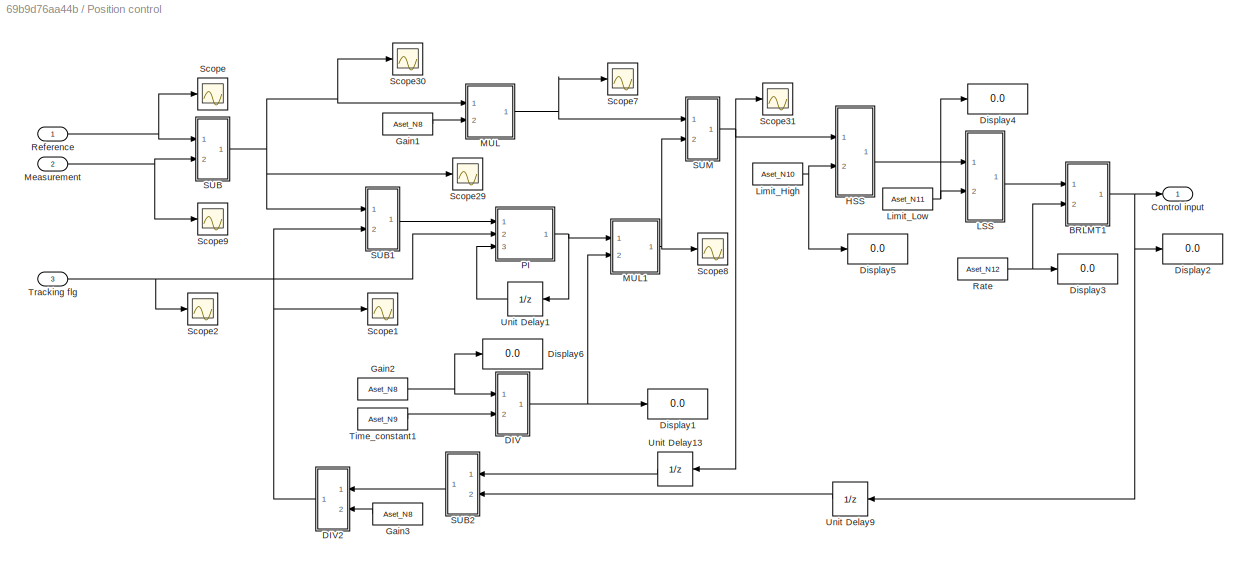
BLOCK [SubSystem] Position control
  Ports = [3, 1]
  RequestExecContextInheritance = off
BLOCK [SubSystem] Position control/BRLMT1
  Ports = [2, 1]
  RequestExecContextInheritance = off
BLOCK [MATLABFcn] Position control/BRLMT1/BRLMT
  MATLABFcn = BRLMT
  OutputDimensions = 1
  Ports = [1, 1]
BLOCK [Inport] Position control/BRLMT1/In1
  IconDisplay = Port number
BLOCK [Inport] Position control/BRLMT1/In2
  IconDisplay = Port number
  Port = 2
BLOCK [Memory] Position control/BRLMT1/Memory
  InheritSampleTime = on
  LinearizeAsDelay = on
  LinearizeMemory = on
BLOCK [Mux] Position control/BRLMT1/Mux1
  DisplayOption = bar
  Ports = [4, 1]
BLOCK [Outport] Position control/BRLMT1/Out1
  IconDisplay = Port number
BLOCK [Constant] Position control/BRLMT1/dt
  OutDataTypeStr = double
  SampleTime = Sample_time
  Value = Sample_time
BLOCK [Outport] Position control/Control input
  IconDisplay = Port number
BLOCK [SubSystem] Position control/DIV
  Ports = [2, 1]
  RequestExecContextInheritance = off
BLOCK [MATLABFcn] Position control/DIV/DIV
  MATLABFcn = DIV
  Ports = [1, 1]
BLOCK [Display] Position control/DIV/Display
  Decimation = 1
  Ports = [1]
BLOCK [Display] Position control/DIV/Display1
  Decimation = 1
  Ports = [1]
BLOCK [Constant] Position control/DIV/FlowMax1
  OutDataTypeStr = double
  SampleTime = Sample_time
  Value = 3.402823e+38
BLOCK [Inport] Position control/DIV/In1
  IconDisplay = Port number
BLOCK [Inport] Position control/DIV/In2
  IconDisplay = Port number
  Port = 2
BLOCK [Mux] Position control/DIV/Mux
  DisplayOption = bar
  Inputs = 3
  Ports = [3, 1]
BLOCK [Outport] Position control/DIV/Out1
  IconDisplay = Port number
BLOCK [SubSystem] Position control/DIV2
  Ports = [2, 1]
  RequestExecContextInheritance = off
BLOCK [MATLABFcn] Position control/DIV2/DIV
  MATLABFcn = DIV
  Ports = [1, 1]
BLOCK [Display] Position control/DIV2/Display
  Decimation = 1
  Ports = [1]
BLOCK [Display] Position control/DIV2/Display1
  Decimation = 1
  Ports = [1]
BLOCK [Constant] Position control/DIV2/FlowMax1
  OutDataTypeStr = double
  SampleTime = Sample_time
  Value = 3.402823e+38
BLOCK [Inport] Position control/DIV2/In1
  IconDisplay = Port number
BLOCK [Inport] Position control/DIV2/In2
  IconDisplay = Port number
  Port = 2
BLOCK [Mux] Position control/DIV2/Mux
  DisplayOption = bar
  Inputs = 3
  Ports = [3, 1]
BLOCK [Outport] Position control/DIV2/Out1
  IconDisplay = Port number
BLOCK [Display] Position control/Display1
  Decimation = 1
  Ports = [1]
BLOCK [Display] Position control/Display2
  Decimation = 1
  Ports = [1]
BLOCK [Display] Position control/Display3
  Decimation = 1
  Ports = [1]
BLOCK [Display] Position control/Display4
  Decimation = 1
  Ports = [1]
BLOCK [Display] Position control/Display5
  Decimation = 1
  Ports = [1]
BLOCK [Display] Position control/Display6
  Decimation = 1
  Ports = [1]
BLOCK [Constant] Position control/Gain1
  OutDataTypeStr = double
  SampleTime = Sample_time
  Value = Aset_N8
BLOCK [Constant] Position control/Gain2
  OutDataTypeStr = double
  SampleTime = Sample_time
  Value = Aset_N8
BLOCK [Constant] Position control/Gain3
  OutDataTypeStr = double
  SampleTime = Sample_time
  Value = Aset_N8
BLOCK [SubSystem] Position control/HSS
  Ports = [2, 1]
  RequestExecContextInheritance = off
BLOCK [MATLABFcn] Position control/HSS/HSS
  MATLABFcn = HSS
  Ports = [1, 1]
BLOCK [Inport] Position control/HSS/In1
  IconDisplay = Port number
BLOCK [Inport] Position control/HSS/In2
  IconDisplay = Port number
  Port = 2
BLOCK [Mux] Position control/HSS/Mux
  DisplayOption = bar
  Inputs = 2
  Ports = [2, 1]
BLOCK [Outport] Position control/HSS/Out1
  IconDisplay = Port number
BLOCK [SubSystem] Position control/LSS
  Ports = [2, 1]
  RequestExecContextInheritance = off
BLOCK [Inport] Position control/LSS/In1
  IconDisplay = Port number
BLOCK [Inport] Position control/LSS/In2
  IconDisplay = Port number
  Port = 2
BLOCK [MATLABFcn] Position control/LSS/Interpreted MATLAB Function
  MATLABFcn = LSS
  Ports = [1, 1]
BLOCK [Mux] Position control/LSS/Mux
  DisplayOption = bar
  Inputs = 2
  Ports = [2, 1]
BLOCK [Outport] Position control/LSS/Out1
  IconDisplay = Port number
BLOCK [Constant] Position control/Limit_High
  OutDataTypeStr = double
  SampleTime = Sample_time
  Value = Aset_N10
BLOCK [Constant] Position control/Limit_Low
  OutDataTypeStr = double
  SampleTime = Sample_time
  Value = Aset_N11
BLOCK [SubSystem] Position control/MUL
  Ports = [2, 1]
  RequestExecContextInheritance = off
BLOCK [Inport] Position control/MUL/In1
  IconDisplay = Port number
BLOCK [Inport] Position control/MUL/In2
  IconDisplay = Port number
  Port = 2
BLOCK [MATLABFcn] Position control/MUL/Interpreted MATLAB Function
  MATLABFcn = MUL
  Ports = [1, 1]
BLOCK [Mux] Position control/MUL/Mux
  DisplayOption = bar
  Inputs = 2
  Ports = [2, 1]
BLOCK [Outport] Position control/MUL/Out1
  IconDisplay = Port number
BLOCK [SubSystem] Position control/MUL1
  Ports = [2, 1]
  RequestExecContextInheritance = off
BLOCK [Inport] Position control/MUL1/In1
  IconDisplay = Port number
BLOCK [Inport] Position control/MUL1/In2
  IconDisplay = Port number
  Port = 2
BLOCK [MATLABFcn] Position control/MUL1/Interpreted MATLAB Function
  MATLABFcn = MUL
  Ports = [1, 1]
BLOCK [Mux] Position control/MUL1/Mux
  DisplayOption = bar
  Inputs = 2
  Ports = [2, 1]
BLOCK [Outport] Position control/MUL1/Out1
  IconDisplay = Port number
BLOCK [Inport] Position control/Measurement
  IconDisplay = Port number
  Port = 2
BLOCK [SubSystem] Position control/PI
  Ports = [3, 1]
  RequestExecContextInheritance = off
BLOCK [DataTypeConversion] Position control/PI/Cast To Double
  OutDataTypeStr = double
  RndMeth = Floor
  SaturateOnIntegerOverflow = off
BLOCK [Inport] Position control/PI/In
  IconDisplay = Port number
BLOCK [MATLABFcn] Position control/PI/Interpreted MATLAB Function
  MATLABFcn = PI
  Ports = [1, 1]
BLOCK [Memory] Position control/PI/Memory
  InheritSampleTime = on
BLOCK [Mux] Position control/PI/Mux
  DisplayOption = bar
  Inputs = 5
  Ports = [5, 1]
BLOCK [Outport] Position control/PI/Out1
  IconDisplay = Port number
BLOCK [Inport] Position control/PI/R_v
  IconDisplay = Port number
  Port = 3
BLOCK [Inport] Position control/PI/Reset
  IconDisplay = Port number
  Port = 2
BLOCK [Constant] Position control/PI/dt
  OutDataTypeStr = double
  SampleTime = Sample_time
  Value = Sample_time
BLOCK [Constant] Position control/Rate
  OutDataTypeStr = double
  SampleTime = Sample_time
  Value = Aset_N12
BLOCK [Inport] Position control/Reference
  IconDisplay = Port number
BLOCK [SubSystem] Position control/SUB
  Ports = [2, 1]
  RequestExecContextInheritance = off
BLOCK [Inport] Position control/SUB/In1
  IconDisplay = Port number
BLOCK [Inport] Position control/SUB/In2
  IconDisplay = Port number
  Port = 2
BLOCK [MATLABFcn] Position control/SUB/Interpreted MATLAB Function
  MATLABFcn = SUB
  Ports = [1, 1]
BLOCK [Mux] Position control/SUB/Mux
  DisplayOption = bar
  Inputs = 2
  Ports = [2, 1]
BLOCK [Outport] Position control/SUB/Out
  IconDisplay = Port number
BLOCK [SubSystem] Position control/SUB1
  Ports = [2, 1]
  RequestExecContextInheritance = off
BLOCK [Inport] Position control/SUB1/In1
  IconDisplay = Port number
BLOCK [Inport] Position control/SUB1/In2
  IconDisplay = Port number
  Port = 2
BLOCK [MATLABFcn] Position control/SUB1/Interpreted MATLAB Function
  MATLABFcn = SUB
  Ports = [1, 1]
BLOCK [Mux] Position control/SUB1/Mux
  DisplayOption = bar
  Inputs = 2
  Ports = [2, 1]
BLOCK [Outport] Position control/SUB1/Out
  IconDisplay = Port number
BLOCK [SubSystem] Position control/SUB2
  Ports = [2, 1]
  RequestExecContextInheritance = off
BLOCK [Inport] Position control/SUB2/In1
  IconDisplay = Port number
BLOCK [Inport] Position control/SUB2/In2
  IconDisplay = Port number
  Port = 2
BLOCK [MATLABFcn] Position control/SUB2/Interpreted MATLAB Function
  MATLABFcn = SUB
  Ports = [1, 1]
BLOCK [Mux] Position control/SUB2/Mux
  DisplayOption = bar
  Inputs = 2
  Ports = [2, 1]
BLOCK [Outport] Position control/SUB2/Out
  IconDisplay = Port number
BLOCK [SubSystem] Position control/SUM
  Ports = [2, 1]
  RequestExecContextInheritance = off
BLOCK [Inport] Position control/SUM/In1
  IconDisplay = Port number
BLOCK [Inport] Position control/SUM/In2
  IconDisplay = Port number
  Port = 2
BLOCK [Mux] Position control/SUM/Mux
  DisplayOption = bar
  Inputs = 2
  Ports = [2, 1]
BLOCK [Outport] Position control/SUM/Out
  IconDisplay = Port number
BLOCK [MATLABFcn] Position control/SUM/SUM
  MATLABFcn = SUM
  Ports = [1, 1]
BLOCK [Scope] Position control/Scope
  Floating = off
  NumInputPorts = 1
  Ports = [1]
  ScopeSpecificationString = Simulink.scopes.TimeScopeBlockCfg('CurrentConfiguration', extmgr.ConfigurationSet(extmgr.Configuration('Core','General UI',true),extmgr.Configuration('Core','Source UI',true),extmgr.Configuration('Sources','WiredSimulink',true,'DataLoggingVariableName','ScopeData1'),extmgr.Configuration('Visuals','Time Domain',true,'SerializedDisplays',{struct('MinYLimReal','-0.125','MaxYLimReal','1.125','YLabelRe...<+1400ch>
BLOCK [Scope] Position control/Scope1
  Floating = off
  NumInputPorts = 1
  Ports = [1]
  ScopeSpecificationString = Simulink.scopes.TimeScopeBlockCfg('CurrentConfiguration', extmgr.ConfigurationSet(extmgr.Configuration('Core','General UI',true),extmgr.Configuration('Core','Source UI',true),extmgr.Configuration('Sources','WiredSimulink',true,'DataLoggingVariableName','ScopeData19'),extmgr.Configuration('Visuals','Time Domain',true,'SerializedDisplays',{struct('MinYLimReal','-5937656447120036675915994526215055332...<+2425ch>
BLOCK [Scope] Position control/Scope2
  Floating = off
  NumInputPorts = 1
  Ports = [1]
  ScopeSpecificationString = Simulink.scopes.TimeScopeBlockCfg('CurrentConfiguration', extmgr.ConfigurationSet(extmgr.Configuration('Core','General UI',true),extmgr.Configuration('Core','Source UI',true),extmgr.Configuration('Sources','WiredSimulink',true,'DataLoggingVariableName','ScopeData2'),extmgr.Configuration('Visuals','Time Domain',true,'SerializedDisplays',{struct('MinYLimReal','-0.04563','MaxYLimReal','1.12061','YLab...<+1470ch>
BLOCK [Scope] Position control/Scope29
  Floating = off
  NumInputPorts = 1
  Ports = [1]
  ScopeSpecificationString = Simulink.scopes.TimeScopeBlockCfg('CurrentConfiguration', extmgr.ConfigurationSet(extmgr.Configuration('Core','General UI',true),extmgr.Configuration('Core','Source UI',true),extmgr.Configuration('Sources','WiredSimulink',true,'DataLoggingVariableName','ScopeData32'),extmgr.Configuration('Visuals','Time Domain',true,'SerializedDisplays',{struct('MinYLimReal','-0.98805','MaxYLimReal','-0.80781','YL...<+1438ch>
BLOCK [Scope] Position control/Scope30
  Floating = off
  NumInputPorts = 1
  Ports = [1]
  ScopeSpecificationString = Simulink.scopes.TimeScopeBlockCfg('CurrentConfiguration', extmgr.ConfigurationSet(extmgr.Configuration('Core','General UI',true),extmgr.Configuration('Core','Source UI',true),extmgr.Configuration('Sources','WiredSimulink',true,'DataLoggingVariableName','ScopeData33'),extmgr.Configuration('Visuals','Time Domain',true,'SerializedDisplays',{struct('MinYLimReal','-1.25','MaxYLimReal','1.25','YLabelRea...<+1444ch>
BLOCK [Scope] Position control/Scope31
  Floating = off
  NumInputPorts = 1
  Ports = [1]
  ScopeSpecificationString = Simulink.scopes.TimeScopeBlockCfg('CurrentConfiguration', extmgr.ConfigurationSet(extmgr.Configuration('Core','General UI',true),extmgr.Configuration('Core','Source UI',true),extmgr.Configuration('Sources','WiredSimulink',true,'DataLoggingVariableName','ScopeData34'),extmgr.Configuration('Visuals','Time Domain',true,'SerializedDisplays',{struct('MinYLimReal','-2375062578848014670366397810486022132...<+2432ch>
BLOCK [Scope] Position control/Scope7
  Floating = off
  NumInputPorts = 1
  Ports = [1]
  ScopeSpecificationString = Simulink.scopes.TimeScopeBlockCfg('CurrentConfiguration', extmgr.ConfigurationSet(extmgr.Configuration('Core','General UI',true),extmgr.Configuration('Core','Source UI',true),extmgr.Configuration('Sources','WiredSimulink',true,'DataLoggingVariableName','ScopeData7'),extmgr.Configuration('Visuals','Time Domain',true,'SerializedDisplays',{struct('MinYLimReal','-0.5','MaxYLimReal','4.5','YLabelReal',...<+1411ch>
BLOCK [Scope] Position control/Scope8
  Floating = off
  NumInputPorts = 1
  Ports = [1]
  ScopeSpecificationString = Simulink.scopes.TimeScopeBlockCfg('CurrentConfiguration', extmgr.ConfigurationSet(extmgr.Configuration('Core','General UI',true),extmgr.Configuration('Core','Source UI',true),extmgr.Configuration('Sources','WiredSimulink',true,'DataLoggingVariableName','ScopeData8'),extmgr.Configuration('Visuals','Time Domain',true,'SerializedDisplays',{struct('MinYLimReal','-26389584209422380529208143457733790142...<+2430ch>
BLOCK [Scope] Position control/Scope9
  Floating = off
  NumInputPorts = 1
  Ports = [1]
  ScopeSpecificationString = Simulink.scopes.TimeScopeBlockCfg('CurrentConfiguration', extmgr.ConfigurationSet(extmgr.Configuration('Core','General UI',true),extmgr.Configuration('Core','Source UI',true),extmgr.Configuration('Sources','WiredSimulink',true,'DataLoggingVariableName','ScopeData9'),extmgr.Configuration('Visuals','Time Domain',true,'SerializedDisplays',{struct('MinYLimReal','-0.125','MaxYLimReal','1.125','YLabelRe...<+1457ch>
BLOCK [Constant] Position control/Time_constant1
  OutDataTypeStr = double
  SampleTime = Sample_time
  Value = Aset_N9
BLOCK [Inport] Position control/Tracking flg
  IconDisplay = Port number
  Port = 3
BLOCK [UnitDelay] Position control/Unit Delay1
  SampleTime = Sample_time
BLOCK [UnitDelay] Position control/Unit Delay13
  SampleTime = Sample_time
BLOCK [UnitDelay] Position control/Unit Delay9
  SampleTime = Sample_time
BLOCK [Constant] Position_delta
  OutDataTypeStr = double
  SampleTime = Sample_time
  Value = Aset_N7
BLOCK [Constant] Position_ref_close
  OutDataTypeStr = double
  SampleTime = Sample_time
  Value = Aset_N6
BLOCK [Constant] Position_ref_close1
  OutDataTypeStr = double
  SampleTime = Sample_time
  Value = Aset_N6
BLOCK [Constant] Position_ref_open
  OutDataTypeStr = double
  SampleTime = Sample_time
  Value = Aset_N5
BLOCK [ToWorkspace] Position_reference[m]
  FixptAsFi = on
  MaxDataPoints = inf
  Ports = [1]
  SampleTime = Sample_time
  Save2DSignal = 3-D array (concatenate along third dimension)
  VariableName = Aout_N3
BLOCK [Outport] Position_reference_out
  IconDisplay = Port number
  Port = 3
  SampleTime = Sample_time
BLOCK [Inport] Position_sensor[m]
  IconDisplay = Port number
  OutDataTypeStr = double
  SampleTime = Sample_time
  Unit = mm
BLOCK [Inport] Pressure_sensor[kPa]
  IconDisplay = Port number
  OutDataTypeStr = double
  Port = 3
  SampleTime = Sample_time
  Unit = kPa
BLOCK [RateTransition] Rate Transition
  OutPortSampleTime = Sample_time
BLOCK [RateTransition] Rate Transition1
  OutPortSampleTime = Sample_time
BLOCK [RateTransition] Rate Transition2
  OutPortSampleTime = Sample_time
BLOCK [RateTransition] Rate Transition3
  OutPortSampleTime = Sample_time
BLOCK [RateTransition] Rate Transition4
  OutPortSampleTime = Sample_time
BLOCK [RateTransition] Rate Transition5
  OutPortSampleTime = Sample_time
BLOCK [RateTransition] Rate Transition6
  OutPortSampleTime = Sample_time
BLOCK [RateTransition] Rate Transition7
  OutPortSampleTime = Sample_time
BLOCK [SubSystem] SUB
  Ports = [2, 1]
  RequestExecContextInheritance = off
BLOCK [Inport] SUB/In1
  IconDisplay = Port number
BLOCK [Inport] SUB/In2
  IconDisplay = Port number
  Port = 2
BLOCK [MATLABFcn] SUB/Interpreted MATLAB Function
  MATLABFcn = SUB
  Ports = [1, 1]
BLOCK [Mux] SUB/Mux
  DisplayOption = bar
  Inputs = 2
  Ports = [2, 1]
BLOCK [Outport] SUB/Out
  IconDisplay = Port number
BLOCK [Scope] Scope1
  Floating = off
  NumInputPorts = 1
  Ports = [1]
  ScopeSpecificationString = Simulink.scopes.TimeScopeBlockCfg('CurrentConfiguration', extmgr.ConfigurationSet(extmgr.Configuration('Core','General UI',true),extmgr.Configuration('Core','Source UI',true),extmgr.Configuration('Sources','WiredSimulink',true,'DataLoggingVariableName','ScopeData2'),extmgr.Configuration('Visuals','Time Domain',true,'SerializedDisplays',{struct('MinYLimReal','-1.00000','MaxYLimReal','1.00000','YLab...<+1417ch>
BLOCK [Scope] Scope10
  Floating = off
  NumInputPorts = 1
  Ports = [1]
  ScopeSpecificationString = Simulink.scopes.TimeScopeBlockCfg('CurrentConfiguration', extmgr.ConfigurationSet(extmgr.Configuration('Core','General UI',true),extmgr.Configuration('Core','Source UI',true),extmgr.Configuration('Sources','WiredSimulink',true,'DataLoggingVariableName','ScopeData10'),extmgr.Configuration('Visuals','Time Domain',true,'SerializedDisplays',{struct('MinYLimReal','-0.125','MaxYLimReal','1.125','YLabelR...<+1421ch>
BLOCK [Scope] Scope11
  Floating = off
  NumInputPorts = 1
  Ports = [1]
  ScopeSpecificationString = Simulink.scopes.TimeScopeBlockCfg('CurrentConfiguration', extmgr.ConfigurationSet(extmgr.Configuration('Core','General UI',true),extmgr.Configuration('Core','Source UI',true),extmgr.Configuration('Sources','WiredSimulink',true,'DataLoggingVariableName','ScopeData11'),extmgr.Configuration('Visuals','Time Domain',true,'SerializedDisplays',{struct('MinYLimReal','-1.00000','MaxYLimReal','1.00000','YLa...<+1407ch>
BLOCK [Scope] Scope12
  Floating = off
  NumInputPorts = 1
  Ports = [1]
  ScopeSpecificationString = Simulink.scopes.TimeScopeBlockCfg('CurrentConfiguration', extmgr.ConfigurationSet(extmgr.Configuration('Core','General UI',true),extmgr.Configuration('Core','Source UI',true),extmgr.Configuration('Sources','WiredSimulink',true,'DataLoggingVariableName','ScopeData12'),extmgr.Configuration('Visuals','Time Domain',true,'SerializedDisplays',{struct('MinYLimReal','-0.125','MaxYLimReal','1.125','YLabelR...<+1425ch>
BLOCK [Scope] Scope13
  Floating = off
  NumInputPorts = 1
  Ports = [1]
  ScopeSpecificationString = Simulink.scopes.TimeScopeBlockCfg('CurrentConfiguration', extmgr.ConfigurationSet(extmgr.Configuration('Core','General UI',true),extmgr.Configuration('Core','Source UI',true),extmgr.Configuration('Sources','WiredSimulink',true,'DataLoggingVariableName','ScopeData13'),extmgr.Configuration('Visuals','Time Domain',true,'SerializedDisplays',{struct('MinYLimReal','-0.125','MaxYLimReal','1.125','YLabelR...<+1425ch>
BLOCK [Scope] Scope14
  Floating = off
  NumInputPorts = 1
  Ports = [1]
  ScopeSpecificationString = Simulink.scopes.TimeScopeBlockCfg('CurrentConfiguration', extmgr.ConfigurationSet(extmgr.Configuration('Core','General UI',true),extmgr.Configuration('Core','Source UI',true),extmgr.Configuration('Sources','WiredSimulink',true,'DataLoggingVariableName','ScopeData14'),extmgr.Configuration('Visuals','Time Domain',true,'SerializedDisplays',{struct('MinYLimReal','-1.00000','MaxYLimReal','1.00000','YLa...<+1410ch>
BLOCK [Scope] Scope15
  Floating = off
  NumInputPorts = 1
  Ports = [1]
  ScopeSpecificationString = Simulink.scopes.TimeScopeBlockCfg('CurrentConfiguration', extmgr.ConfigurationSet(extmgr.Configuration('Core','General UI',true),extmgr.Configuration('Core','Source UI',true),extmgr.Configuration('Sources','WiredSimulink',true,'DataLoggingVariableName','ScopeData15'),extmgr.Configuration('Visuals','Time Domain',true,'SerializedDisplays',{struct('MinYLimReal','-0.125','MaxYLimReal','1.125','YLabelR...<+1428ch>
BLOCK [Scope] Scope16
  Floating = off
  NumInputPorts = 1
  Ports = [1]
  ScopeSpecificationString = Simulink.scopes.TimeScopeBlockCfg('CurrentConfiguration', extmgr.ConfigurationSet(extmgr.Configuration('Core','General UI',true),extmgr.Configuration('Core','Source UI',true),extmgr.Configuration('Sources','WiredSimulink',true,'DataLoggingVariableName','ScopeData16'),extmgr.Configuration('Visuals','Time Domain',true,'SerializedDisplays',{struct('MinYLimReal','-0.125','MaxYLimReal','1.125','YLabelR...<+1422ch>
BLOCK [Scope] Scope17
  Floating = off
  NumInputPorts = 1
  Ports = [1]
  ScopeSpecificationString = Simulink.scopes.TimeScopeBlockCfg('CurrentConfiguration', extmgr.ConfigurationSet(extmgr.Configuration('Core','General UI',true),extmgr.Configuration('Core','Source UI',true),extmgr.Configuration('Sources','WiredSimulink',true,'DataLoggingVariableName','ScopeData17'),extmgr.Configuration('Visuals','Time Domain',true,'SerializedDisplays',{struct('MinYLimReal','-1.00000','MaxYLimReal','1.00000','YLa...<+1407ch>
BLOCK [Scope] Scope18
  Floating = off
  NumInputPorts = 1
  Ports = [1]
  ScopeSpecificationString = Simulink.scopes.TimeScopeBlockCfg('CurrentConfiguration', extmgr.ConfigurationSet(extmgr.Configuration('Core','General UI',true),extmgr.Configuration('Core','Source UI',true),extmgr.Configuration('Sources','WiredSimulink',true,'DataLoggingVariableName','ScopeData20'),extmgr.Configuration('Visuals','Time Domain',true,'SerializedDisplays',{struct('MinYLimReal','-109999.00000','MaxYLimReal','-89999.0...<+1433ch>
BLOCK [Scope] Scope19
  Floating = off
  NumInputPorts = 1
  Ports = [1]
  ScopeSpecificationString = Simulink.scopes.TimeScopeBlockCfg('CurrentConfiguration', extmgr.ConfigurationSet(extmgr.Configuration('Core','General UI',true),extmgr.Configuration('Core','Source UI',true),extmgr.Configuration('Sources','WiredSimulink',true,'DataLoggingVariableName','ScopeData21'),extmgr.Configuration('Visuals','Time Domain',true,'SerializedDisplays',{struct('MinYLimReal','0.009','MaxYLimReal','0.011','YLabelRe...<+1381ch>
BLOCK [Scope] Scope2
  Floating = off
  NumInputPorts = 1
  Ports = [1]
  ScopeSpecificationString = Simulink.scopes.TimeScopeBlockCfg('CurrentConfiguration', extmgr.ConfigurationSet(extmgr.Configuration('Core','General UI',true),extmgr.Configuration('Core','Source UI',true),extmgr.Configuration('Sources','WiredSimulink',true,'DataLoggingVariableName','ScopeData1'),extmgr.Configuration('Visuals','Time Domain',true,'SerializedDisplays',{struct('MinYLimReal','0.9','MaxYLimReal','1.1','YLabelReal','...<+1387ch>
BLOCK [Scope] Scope20
  Floating = off
  NumInputPorts = 1
  Ports = [1]
  ScopeSpecificationString = Simulink.scopes.TimeScopeBlockCfg('CurrentConfiguration', extmgr.ConfigurationSet(extmgr.Configuration('Core','General UI',true),extmgr.Configuration('Core','Source UI',true),extmgr.Configuration('Sources','WiredSimulink',true,'DataLoggingVariableName','ScopeData22'),extmgr.Configuration('Visuals','Time Domain',true,'SerializedDisplays',{struct('MinYLimReal','-0.0524','MaxYLimReal','1.08019','YLab...<+1450ch>
BLOCK [Scope] Scope21
  Floating = off
  NumInputPorts = 1
  Ports = [1]
  ScopeSpecificationString = Simulink.scopes.TimeScopeBlockCfg('CurrentConfiguration', extmgr.ConfigurationSet(extmgr.Configuration('Core','General UI',true),extmgr.Configuration('Core','Source UI',true),extmgr.Configuration('Sources','WiredSimulink',true,'DataLoggingVariableName','ScopeData23'),extmgr.Configuration('Visuals','Time Domain',true,'SerializedDisplays',{struct('MinYLimReal','-0.125','MaxYLimReal','1.125','YLabelR...<+1425ch>
BLOCK [Scope] Scope22
  Floating = off
  NumInputPorts = 1
  Ports = [1]
  ScopeSpecificationString = Simulink.scopes.TimeScopeBlockCfg('CurrentConfiguration', extmgr.ConfigurationSet(extmgr.Configuration('Core','General UI',true),extmgr.Configuration('Core','Source UI',true),extmgr.Configuration('Sources','WiredSimulink',true,'DataLoggingVariableName','ScopeData25'),extmgr.Configuration('Visuals','Time Domain',true,'SerializedDisplays',{struct('MinYLimReal','-0.125','MaxYLimReal','1.125','YLabelR...<+1377ch>
BLOCK [Scope] Scope23
  Floating = off
  NumInputPorts = 1
  Ports = [1]
  ScopeSpecificationString = Simulink.scopes.TimeScopeBlockCfg('CurrentConfiguration', extmgr.ConfigurationSet(extmgr.Configuration('Core','General UI',true),extmgr.Configuration('Core','Source UI',true),extmgr.Configuration('Sources','WiredSimulink',true,'DataLoggingVariableName','ScopeData26'),extmgr.Configuration('Visuals','Time Domain',true,'SerializedDisplays',{struct('MinYLimReal','-0.125','MaxYLimReal','1.125','YLabelR...<+1398ch>
BLOCK [Scope] Scope24
  Floating = off
  NumInputPorts = 1
  Ports = [1]
  ScopeSpecificationString = Simulink.scopes.TimeScopeBlockCfg('CurrentConfiguration', extmgr.ConfigurationSet(extmgr.Configuration('Core','General UI',true),extmgr.Configuration('Core','Source UI',true),extmgr.Configuration('Sources','WiredSimulink',true,'DataLoggingVariableName','ScopeData27'),extmgr.Configuration('Visuals','Time Domain',true,'SerializedDisplays',{struct('MinYLimReal','0.00069','MaxYLimReal','1.02342','YLab...<+1407ch>
BLOCK [Scope] Scope25
  Floating = off
  NumInputPorts = 1
  Ports = [1]
  ScopeSpecificationString = Simulink.scopes.TimeScopeBlockCfg('CurrentConfiguration', extmgr.ConfigurationSet(extmgr.Configuration('Core','General UI',true),extmgr.Configuration('Core','Source UI',true),extmgr.Configuration('Sources','WiredSimulink',true,'DataLoggingVariableName','ScopeData15'),extmgr.Configuration('Visuals','Time Domain',true,'SerializedDisplays',{struct('MinYLimReal','-0.125','MaxYLimReal','1.125','YLabelR...<+1451ch>
BLOCK [Scope] Scope26
  Floating = off
  NumInputPorts = 1
  Ports = [1]
  ScopeSpecificationString = Simulink.scopes.TimeScopeBlockCfg('CurrentConfiguration', extmgr.ConfigurationSet(extmgr.Configuration('Core','General UI',true),extmgr.Configuration('Core','Source UI',true),extmgr.Configuration('Sources','WiredSimulink',true,'DataLoggingVariableName','ScopeData20'),extmgr.Configuration('Visuals','Time Domain',true,'SerializedDisplays',{struct('MinYLimReal','-0.125','MaxYLimReal','1.125','YLabelR...<+1395ch>
BLOCK [Scope] Scope27
  Floating = off
  NumInputPorts = 1
  Ports = [1]
  ScopeSpecificationString = Simulink.scopes.TimeScopeBlockCfg('CurrentConfiguration', extmgr.ConfigurationSet(extmgr.Configuration('Core','General UI',true),extmgr.Configuration('Core','Source UI',true),extmgr.Configuration('Sources','WiredSimulink',true,'DataLoggingVariableName','ScopeData30'),extmgr.Configuration('Visuals','Time Domain',true,'SerializedDisplays',{struct('MinYLimReal','-0.125','MaxYLimReal','1.05441','YLabe...<+1448ch>
BLOCK [Scope] Scope28
  Floating = off
  NumInputPorts = 1
  Ports = [1]
  ScopeSpecificationString = Simulink.scopes.TimeScopeBlockCfg('CurrentConfiguration', extmgr.ConfigurationSet(extmgr.Configuration('Core','General UI',true),extmgr.Configuration('Core','Source UI',true),extmgr.Configuration('Sources','WiredSimulink',true,'DataLoggingVariableName','ScopeData3'),extmgr.Configuration('Visuals','Time Domain',true,'SerializedDisplays',{struct('MinYLimReal','0.9','MaxYLimReal','1.1','YLabelReal','...<+1387ch>
BLOCK [Scope] Scope29
  Floating = off
  NumInputPorts = 1
  Ports = [1]
  ScopeSpecificationString = Simulink.scopes.TimeScopeBlockCfg('CurrentConfiguration', extmgr.ConfigurationSet(extmgr.Configuration('Core','General UI',true),extmgr.Configuration('Core','Source UI',true),extmgr.Configuration('Sources','WiredSimulink',true,'DataLoggingVariableName','ScopeData4'),extmgr.Configuration('Visuals','Time Domain',true,'SerializedDisplays',{struct('MinYLimReal','-1.00000','MaxYLimReal','1.00000','YLab...<+1405ch>
BLOCK [Scope] Scope3
  Floating = off
  NumInputPorts = 1
  Ports = [1]
  ScopeSpecificationString = Simulink.scopes.TimeScopeBlockCfg('CurrentConfiguration', extmgr.ConfigurationSet(extmgr.Configuration('Core','General UI',true),extmgr.Configuration('Core','Source UI',true),extmgr.Configuration('Sources','WiredSimulink',true,'DataLoggingVariableName','ScopeData1'),extmgr.Configuration('Visuals','Time Domain',true,'SerializedDisplays',{struct('MinYLimReal','-0.125','MaxYLimReal','1.125','YLabelRe...<+1413ch>
BLOCK [Scope] Scope30
  Floating = off
  NumInputPorts = 1
  Ports = [1]
  ScopeSpecificationString = Simulink.scopes.TimeScopeBlockCfg('CurrentConfiguration', extmgr.ConfigurationSet(extmgr.Configuration('Core','General UI',true),extmgr.Configuration('Core','Source UI',true),extmgr.Configuration('Sources','WiredSimulink',true,'DataLoggingVariableName','ScopeData4'),extmgr.Configuration('Visuals','Time Domain',true,'SerializedDisplays',{struct('MinYLimReal','-0.125','MaxYLimReal','1.125','YLabelRe...<+1411ch>
BLOCK [Scope] Scope31
  Floating = off
  NumInputPorts = 1
  Ports = [1]
  ScopeSpecificationString = Simulink.scopes.TimeScopeBlockCfg('CurrentConfiguration', extmgr.ConfigurationSet(extmgr.Configuration('Core','General UI',true),extmgr.Configuration('Core','Source UI',true),extmgr.Configuration('Sources','WiredSimulink',true,'DataLoggingVariableName','ScopeData5'),extmgr.Configuration('Visuals','Time Domain',true,'SerializedDisplays',{struct('MinYLimReal','-6.25','MaxYLimReal','56.24999','YLabel...<+1447ch>
BLOCK [Scope] Scope32
  Floating = off
  NumInputPorts = 1
  Ports = [1]
  ScopeSpecificationString = Simulink.scopes.TimeScopeBlockCfg('CurrentConfiguration', extmgr.ConfigurationSet(extmgr.Configuration('Core','General UI',true),extmgr.Configuration('Core','Source UI',true),extmgr.Configuration('Sources','WiredSimulink',true,'DataLoggingVariableName','ScopeData35'),extmgr.Configuration('Visuals','Time Domain',true,'SerializedDisplays',{struct('MinYLimReal','-0.125','MaxYLimReal','1.03719','YLabe...<+1437ch>
BLOCK [Scope] Scope33
  Floating = off
  NumInputPorts = 1
  Ports = [1]
  ScopeSpecificationString = Simulink.scopes.TimeScopeBlockCfg('CurrentConfiguration', extmgr.ConfigurationSet(extmgr.Configuration('Core','General UI',true),extmgr.Configuration('Core','Source UI',true),extmgr.Configuration('Sources','WiredSimulink',true,'DataLoggingVariableName','ScopeData36'),extmgr.Configuration('Visuals','Time Domain',true,'SerializedDisplays',{struct('MinYLimReal','-0.125','MaxYLimReal','1.125','YLabelR...<+1421ch>
BLOCK [Scope] Scope34
  Floating = off
  NumInputPorts = 1
  Ports = [1]
  ScopeSpecificationString = Simulink.scopes.TimeScopeBlockCfg('CurrentConfiguration', extmgr.ConfigurationSet(extmgr.Configuration('Core','General UI',true),extmgr.Configuration('Core','Source UI',true),extmgr.Configuration('Sources','WiredSimulink',true,'DataLoggingVariableName','ScopeData37'),extmgr.Configuration('Visuals','Time Domain',true,'SerializedDisplays',{struct('MinYLimReal','-1.00000','MaxYLimReal','1.00000','YLa...<+1438ch>
BLOCK [Scope] Scope35
  Floating = off
  NumInputPorts = 1
  Ports = [1]
  ScopeSpecificationString = Simulink.scopes.TimeScopeBlockCfg('CurrentConfiguration', extmgr.ConfigurationSet(extmgr.Configuration('Core','General UI',true),extmgr.Configuration('Core','Source UI',true),extmgr.Configuration('Sources','WiredSimulink',true,'DataLoggingVariableName','ScopeData6'),extmgr.Configuration('Visuals','Time Domain',true,'SerializedDisplays',{struct('MinYLimReal','-0.125','MaxYLimReal','1.125','YLabelRe...<+1394ch>
BLOCK [Scope] Scope36
  Floating = off
  NumInputPorts = 1
  Ports = [1]
  ScopeSpecificationString = Simulink.scopes.TimeScopeBlockCfg('CurrentConfiguration', extmgr.ConfigurationSet(extmgr.Configuration('Core','General UI',true),extmgr.Configuration('Core','Source UI',true),extmgr.Configuration('Sources','WiredSimulink',true,'DataLoggingVariableName','ScopeData1'),extmgr.Configuration('Visuals','Time Domain',true,'SerializedDisplays',{struct('MinYLimReal','-0.125','MaxYLimReal','1.125','YLabelRe...<+1420ch>
BLOCK [Scope] Scope37
  Floating = off
  NumInputPorts = 1
  Ports = [1]
  ScopeSpecificationString = Simulink.scopes.TimeScopeBlockCfg('CurrentConfiguration', extmgr.ConfigurationSet(extmgr.Configuration('Core','General UI',true),extmgr.Configuration('Core','Source UI',true),extmgr.Configuration('Sources','WiredSimulink',true,'DataLoggingVariableName','ScopeData1'),extmgr.Configuration('Visuals','Time Domain',true,'SerializedDisplays',{struct('MinYLimReal','-11.25','MaxYLimReal','1.25','YLabelRea...<+1460ch>
BLOCK [Scope] Scope38
  Floating = off
  NumInputPorts = 1
  Ports = [1]
  ScopeSpecificationString = Simulink.scopes.TimeScopeBlockCfg('CurrentConfiguration', extmgr.ConfigurationSet(extmgr.Configuration('Core','General UI',true),extmgr.Configuration('Core','Source UI',true),extmgr.Configuration('Sources','WiredSimulink',true,'DataLoggingVariableName','ScopeData3'),extmgr.Configuration('Visuals','Time Domain',true,'SerializedDisplays',{struct('MinYLimReal','-1.25','MaxYLimReal','11.25','YLabelRea...<+1434ch>
BLOCK [Scope] Scope39
  Floating = off
  NumInputPorts = 1
  Ports = [1]
  ScopeSpecificationString = Simulink.scopes.TimeScopeBlockCfg('CurrentConfiguration', extmgr.ConfigurationSet(extmgr.Configuration('Core','General UI',true),extmgr.Configuration('Core','Source UI',true),extmgr.Configuration('Sources','WiredSimulink',true,'DataLoggingVariableName','ScopeData1'),extmgr.Configuration('Visuals','Time Domain',true,'SerializedDisplays',{struct('MinYLimReal','-0.125','MaxYLimReal','1.125','YLabelRe...<+1409ch>
BLOCK [Scope] Scope4
  Floating = off
  NumInputPorts = 1
  Ports = [1]
  ScopeSpecificationString = Simulink.scopes.TimeScopeBlockCfg('CurrentConfiguration', extmgr.ConfigurationSet(extmgr.Configuration('Core','General UI',true),extmgr.Configuration('Core','Source UI',true),extmgr.Configuration('Sources','WiredSimulink',true,'DataLoggingVariableName','ScopeData4'),extmgr.Configuration('Visuals','Time Domain',true,'SerializedDisplays',{struct('MinYLimReal','-0.08019','MaxYLimReal','0.72171','YLab...<+1420ch>
BLOCK [Scope] Scope40
  Floating = off
  NumInputPorts = 1
  Ports = [1]
  ScopeSpecificationString = Simulink.scopes.TimeScopeBlockCfg('CurrentConfiguration', extmgr.ConfigurationSet(extmgr.Configuration('Core','General UI',true),extmgr.Configuration('Core','Source UI',true),extmgr.Configuration('Sources','WiredSimulink',true,'DataLoggingVariableName','ScopeData2'),extmgr.Configuration('Visuals','Time Domain',true,'SerializedDisplays',{struct('MinYLimReal','-0.05785','MaxYLimReal','1.06474','YLab...<+1436ch>
BLOCK [Scope] Scope41
  Floating = off
  NumInputPorts = 1
  Ports = [1]
  ScopeSpecificationString = Simulink.scopes.TimeScopeBlockCfg('CurrentConfiguration', extmgr.ConfigurationSet(extmgr.Configuration('Core','General UI',true),extmgr.Configuration('Core','Source UI',true),extmgr.Configuration('Sources','WiredSimulink',true,'DataLoggingVariableName','ScopeData3'),extmgr.Configuration('Visuals','Time Domain',true,'SerializedDisplays',{struct('MinYLimReal','-0.125','MaxYLimReal','1.04063','YLabel...<+1402ch>
BLOCK [Scope] Scope42
  Floating = off
  NumInputPorts = 1
  Ports = [1]
  ScopeSpecificationString = Simulink.scopes.TimeScopeBlockCfg('CurrentConfiguration', extmgr.ConfigurationSet(extmgr.Configuration('Core','General UI',true),extmgr.Configuration('Core','Source UI',true),extmgr.Configuration('Sources','WiredSimulink',true,'DataLoggingVariableName','ScopeData5'),extmgr.Configuration('Visuals','Time Domain',true,'SerializedDisplays',{struct('MinYLimReal','-1.00000','MaxYLimReal','1.00000','YLab...<+1445ch>
BLOCK [Scope] Scope43
  Floating = off
  NumInputPorts = 1
  Ports = [1]
  ScopeSpecificationString = Simulink.scopes.TimeScopeBlockCfg('CurrentConfiguration', extmgr.ConfigurationSet(extmgr.Configuration('Core','General UI',true),extmgr.Configuration('Core','Source UI',true),extmgr.Configuration('Sources','WiredSimulink',true,'DataLoggingVariableName','ScopeData2'),extmgr.Configuration('Visuals','Time Domain',true,'SerializedDisplays',{struct('MinYLimReal','-1.00000','MaxYLimReal','1.00000','YLab...<+1421ch>
BLOCK [Scope] Scope44
  Floating = off
  NumInputPorts = 1
  Ports = [1]
  ScopeSpecificationString = Simulink.scopes.TimeScopeBlockCfg('CurrentConfiguration', extmgr.ConfigurationSet(extmgr.Configuration('Core','General UI',true),extmgr.Configuration('Core','Source UI',true),extmgr.Configuration('Sources','WiredSimulink',true,'DataLoggingVariableName','ScopeData3'),extmgr.Configuration('Visuals','Time Domain',true,'SerializedDisplays',{struct('MinYLimReal','-0.125','MaxYLimReal','1.125','YLabelRe...<+1399ch>
BLOCK [Scope] Scope45
  Floating = off
  NumInputPorts = 1
  Ports = [1]
  ScopeSpecificationString = Simulink.scopes.TimeScopeBlockCfg('CurrentConfiguration', extmgr.ConfigurationSet(extmgr.Configuration('Core','General UI',true),extmgr.Configuration('Core','Source UI',true),extmgr.Configuration('Sources','WiredSimulink',true,'DataLoggingVariableName','ScopeData11'),extmgr.Configuration('Visuals','Time Domain',true,'SerializedDisplays',{struct('MinYLimReal','-0.125','MaxYLimReal','1.125','YLabelR...<+1400ch>
BLOCK [Scope] Scope46
  Floating = off
  NumInputPorts = 1
  Ports = [1]
  ScopeSpecificationString = Simulink.scopes.TimeScopeBlockCfg('CurrentConfiguration', extmgr.ConfigurationSet(extmgr.Configuration('Core','General UI',true),extmgr.Configuration('Core','Source UI',true),extmgr.Configuration('Sources','WiredSimulink',true,'DataLoggingVariableName','ScopeData12'),extmgr.Configuration('Visuals','Time Domain',true,'SerializedDisplays',{struct('MinYLimReal','-0.125','MaxYLimReal','1.05441','YLabe...<+1448ch>
BLOCK [Scope] Scope47
  Floating = off
  NumInputPorts = 1
  Ports = [1]
  ScopeSpecificationString = Simulink.scopes.TimeScopeBlockCfg('CurrentConfiguration', extmgr.ConfigurationSet(extmgr.Configuration('Core','General UI',true),extmgr.Configuration('Core','Source UI',true),extmgr.Configuration('Sources','WiredSimulink',true,'DataLoggingVariableName','ScopeData13'),extmgr.Configuration('Visuals','Time Domain',true,'SerializedDisplays',{struct('MinYLimReal','-1.00000','MaxYLimReal','1.00000','YLa...<+1452ch>
BLOCK [Scope] Scope48
  Floating = off
  NumInputPorts = 1
  Ports = [1]
  ScopeSpecificationString = Simulink.scopes.TimeScopeBlockCfg('CurrentConfiguration', extmgr.ConfigurationSet(extmgr.Configuration('Core','General UI',true),extmgr.Configuration('Core','Source UI',true),extmgr.Configuration('Sources','WiredSimulink',true,'DataLoggingVariableName','ScopeData14'),extmgr.Configuration('Visuals','Time Domain',true,'SerializedDisplays',{struct('MinYLimReal','-11.25','MaxYLimReal','1.25','YLabelRe...<+1435ch>
BLOCK [Scope] Scope49
  Floating = off
  NumInputPorts = 1
  Ports = [1]
  ScopeSpecificationString = Simulink.scopes.TimeScopeBlockCfg('CurrentConfiguration', extmgr.ConfigurationSet(extmgr.Configuration('Core','General UI',true),extmgr.Configuration('Core','Source UI',true),extmgr.Configuration('Sources','WiredSimulink',true,'DataLoggingVariableName','ScopeData16'),extmgr.Configuration('Visuals','Time Domain',true,'SerializedDisplays',{struct('MinYLimReal','-0.125','MaxYLimReal','1.125','YLabelR...<+1422ch>
BLOCK [Scope] Scope5
  Floating = off
  NumInputPorts = 1
  Ports = [1]
  ScopeSpecificationString = Simulink.scopes.TimeScopeBlockCfg('CurrentConfiguration', extmgr.ConfigurationSet(extmgr.Configuration('Core','General UI',true),extmgr.Configuration('Core','Source UI',true),extmgr.Configuration('Sources','WiredSimulink',true,'DataLoggingVariableName','ScopeData10'),extmgr.Configuration('Visuals','Time Domain',true,'SerializedDisplays',{struct('MinYLimReal','-6.25','MaxYLimReal','56.25','YLabelRe...<+1393ch>
BLOCK [Scope] Scope50
  Floating = off
  NumInputPorts = 1
  Ports = [1]
  ScopeSpecificationString = Simulink.scopes.TimeScopeBlockCfg('CurrentConfiguration', extmgr.ConfigurationSet(extmgr.Configuration('Core','General UI',true),extmgr.Configuration('Core','Source UI',true),extmgr.Configuration('Sources','WiredSimulink',true,'DataLoggingVariableName','ScopeData17'),extmgr.Configuration('Visuals','Time Domain',true,'SerializedDisplays',{struct('MinYLimReal','-0.125','MaxYLimReal','1.125','YLabelR...<+1397ch>
BLOCK [Scope] Scope51
  Floating = off
  NumInputPorts = 1
  Ports = [1]
  ScopeSpecificationString = Simulink.scopes.TimeScopeBlockCfg('CurrentConfiguration', extmgr.ConfigurationSet(extmgr.Configuration('Core','General UI',true),extmgr.Configuration('Core','Source UI',true),extmgr.Configuration('Sources','WiredSimulink',true,'DataLoggingVariableName','ScopeData18'),extmgr.Configuration('Visuals','Time Domain',true,'SerializedDisplays',{struct('MinYLimReal','-1.13543','MaxYLimReal','0.21884','YLa...<+1437ch>
BLOCK [Scope] Scope52
  Floating = off
  NumInputPorts = 1
  Ports = [1]
  ScopeSpecificationString = Simulink.scopes.TimeScopeBlockCfg('CurrentConfiguration', extmgr.ConfigurationSet(extmgr.Configuration('Core','General UI',true),extmgr.Configuration('Core','Source UI',true),extmgr.Configuration('Sources','WiredSimulink',true,'DataLoggingVariableName','ScopeData21'),extmgr.Configuration('Visuals','Time Domain',true,'SerializedDisplays',{struct('MinYLimReal','-0.125','MaxYLimReal','1.125','YLabelR...<+1454ch>
BLOCK [Scope] Scope6
  Floating = off
  NumInputPorts = 1
  Ports = [1]
  ScopeSpecificationString = Simulink.scopes.TimeScopeBlockCfg('CurrentConfiguration', extmgr.ConfigurationSet(extmgr.Configuration('Core','General UI',true),extmgr.Configuration('Core','Source UI',true),extmgr.Configuration('Sources','WiredSimulink',true,'DataLoggingVariableName','ScopeData6'),extmgr.Configuration('Visuals','Time Domain',true,'SerializedDisplays',{struct('MinYLimReal','6.79063','MaxYLimReal','10.57851','YLab...<+1439ch>
BLOCK [Scope] Scope7
  Floating = off
  NumInputPorts = 1
  Ports = [1]
  ScopeSpecificationString = Simulink.scopes.TimeScopeBlockCfg('CurrentConfiguration', extmgr.ConfigurationSet(extmgr.Configuration('Core','General UI',true),extmgr.Configuration('Core','Source UI',true),extmgr.Configuration('Sources','WiredSimulink',true,'DataLoggingVariableName','ScopeData2'),extmgr.Configuration('Visuals','Time Domain',true,'SerializedDisplays',{struct('MinYLimReal','-0.125','MaxYLimReal','1.125','YLabelRe...<+1438ch>
BLOCK [Scope] Scope8
  Floating = off
  NumInputPorts = 1
  Ports = [1]
  ScopeSpecificationString = Simulink.scopes.TimeScopeBlockCfg('CurrentConfiguration', extmgr.ConfigurationSet(extmgr.Configuration('Core','General UI',true),extmgr.Configuration('Core','Source UI',true),extmgr.Configuration('Sources','WiredSimulink',true,'DataLoggingVariableName','ScopeData40'),extmgr.Configuration('Visuals','Time Domain',true,'SerializedDisplays',{struct('MinYLimReal','-1.1517','MaxYLimReal','2.14761','YLab...<+1428ch>
BLOCK [Scope] Scope9
  Floating = off
  NumInputPorts = 1
  Ports = [1]
  ScopeSpecificationString = Simulink.scopes.TimeScopeBlockCfg('CurrentConfiguration', extmgr.ConfigurationSet(extmgr.Configuration('Core','General UI',true),extmgr.Configuration('Core','Source UI',true),extmgr.Configuration('Sources','WiredSimulink',true,'DataLoggingVariableName','ScopeData41'),extmgr.Configuration('Visuals','Time Domain',true,'SerializedDisplays',{struct('MinYLimReal','-1.00000','MaxYLimReal','1.00000','YLa...<+1461ch>
BLOCK [Terminator] Terminator
BLOCK [UnitDelay] Unit Delay1
  SampleTime = Sample_time
BLOCK [UnitDelay] Unit Delay10
  SampleTime = Sample_time
BLOCK [UnitDelay] Unit Delay11
  SampleTime = Sample_time
BLOCK [UnitDelay] Unit Delay12
  SampleTime = Sample_time
BLOCK [UnitDelay] Unit Delay13
  SampleTime = Sample_time
BLOCK [UnitDelay] Unit Delay14
  InitialCondition = 1
  SampleTime = Sample_time
BLOCK [UnitDelay] Unit Delay15
  SampleTime = Sample_time
BLOCK [UnitDelay] Unit Delay16
  SampleTime = Sample_time
BLOCK [UnitDelay] Unit Delay2
  SampleTime = Sample_time
BLOCK [UnitDelay] Unit Delay3
  SampleTime = Sample_time
BLOCK [UnitDelay] Unit Delay4
  SampleTime = Sample_time
BLOCK [UnitDelay] Unit Delay5
  SampleTime = Sample_time
BLOCK [UnitDelay] Unit Delay6
  SampleTime = Sample_time
BLOCK [UnitDelay] Unit Delay7
  SampleTime = Sample_time
BLOCK [UnitDelay] Unit Delay8
  SampleTime = Sample_time
BLOCK [UnitDelay] Unit Delay9
  SampleTime = Sample_time
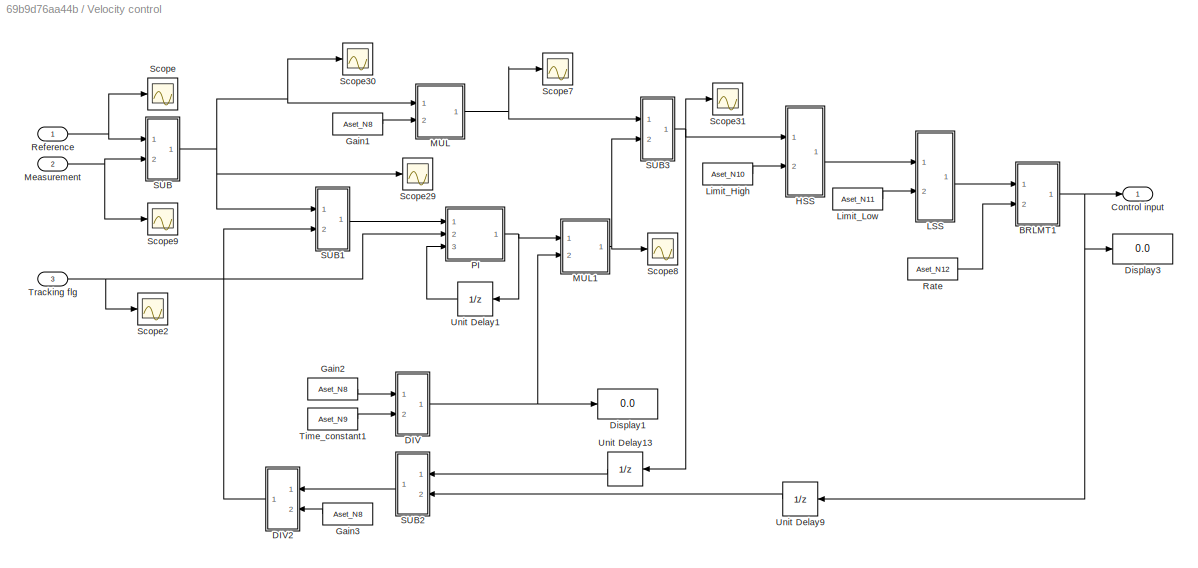
BLOCK [SubSystem] Velocity control
  Ports = [3, 1]
  RequestExecContextInheritance = off
BLOCK [SubSystem] Velocity control/BRLMT1
  Ports = [2, 1]
  RequestExecContextInheritance = off
BLOCK [MATLABFcn] Velocity control/BRLMT1/BRLMT
  MATLABFcn = BRLMT
  OutputDimensions = 1
  Ports = [1, 1]
BLOCK [Inport] Velocity control/BRLMT1/In1
  IconDisplay = Port number
BLOCK [Inport] Velocity control/BRLMT1/In2
  IconDisplay = Port number
  Port = 2
BLOCK [Memory] Velocity control/BRLMT1/Memory
  InheritSampleTime = on
  LinearizeAsDelay = on
  LinearizeMemory = on
BLOCK [Mux] Velocity control/BRLMT1/Mux1
  DisplayOption = bar
  Ports = [4, 1]
BLOCK [Outport] Velocity control/BRLMT1/Out1
  IconDisplay = Port number
BLOCK [Constant] Velocity control/BRLMT1/dt
  OutDataTypeStr = double
  SampleTime = Sample_time
  Value = Sample_time
BLOCK [Outport] Velocity control/Control input
  IconDisplay = Port number
BLOCK [SubSystem] Velocity control/DIV
  Ports = [2, 1]
  RequestExecContextInheritance = off
BLOCK [MATLABFcn] Velocity control/DIV/DIV
  MATLABFcn = DIV
  Ports = [1, 1]
BLOCK [Display] Velocity control/DIV/Display
  Decimation = 1
  Ports = [1]
BLOCK [Display] Velocity control/DIV/Display1
  Decimation = 1
  Ports = [1]
BLOCK [Constant] Velocity control/DIV/FlowMax1
  OutDataTypeStr = double
  SampleTime = Sample_time
  Value = 3.402823e+38
BLOCK [Inport] Velocity control/DIV/In1
  IconDisplay = Port number
BLOCK [Inport] Velocity control/DIV/In2
  IconDisplay = Port number
  Port = 2
BLOCK [Mux] Velocity control/DIV/Mux
  DisplayOption = bar
  Inputs = 3
  Ports = [3, 1]
BLOCK [Outport] Velocity control/DIV/Out1
  IconDisplay = Port number
BLOCK [SubSystem] Velocity control/DIV2
  Ports = [2, 1]
  RequestExecContextInheritance = off
BLOCK [MATLABFcn] Velocity control/DIV2/DIV
  MATLABFcn = DIV
  Ports = [1, 1]
BLOCK [Display] Velocity control/DIV2/Display
  Decimation = 1
  Ports = [1]
BLOCK [Display] Velocity control/DIV2/Display1
  Decimation = 1
  Ports = [1]
BLOCK [Constant] Velocity control/DIV2/FlowMax1
  OutDataTypeStr = double
  SampleTime = Sample_time
  Value = 3.402823e+38
BLOCK [Inport] Velocity control/DIV2/In1
  IconDisplay = Port number
BLOCK [Inport] Velocity control/DIV2/In2
  IconDisplay = Port number
  Port = 2
BLOCK [Mux] Velocity control/DIV2/Mux
  DisplayOption = bar
  Inputs = 3
  Ports = [3, 1]
BLOCK [Outport] Velocity control/DIV2/Out1
  IconDisplay = Port number
BLOCK [Display] Velocity control/Display1
  Decimation = 1
  Ports = [1]
BLOCK [Display] Velocity control/Display3
  Decimation = 1
  Ports = [1]
BLOCK [Constant] Velocity control/Gain1
  OutDataTypeStr = double
  SampleTime = Sample_time
  Value = Aset_N8
BLOCK [Constant] Velocity control/Gain2
  OutDataTypeStr = double
  SampleTime = Sample_time
  Value = Aset_N8
BLOCK [Constant] Velocity control/Gain3
  OutDataTypeStr = double
  SampleTime = Sample_time
  Value = Aset_N8
BLOCK [SubSystem] Velocity control/HSS
  Ports = [2, 1]
  RequestExecContextInheritance = off
BLOCK [MATLABFcn] Velocity control/HSS/HSS
  MATLABFcn = HSS
  Ports = [1, 1]
BLOCK [Inport] Velocity control/HSS/In1
  IconDisplay = Port number
BLOCK [Inport] Velocity control/HSS/In2
  IconDisplay = Port number
  Port = 2
BLOCK [Mux] Velocity control/HSS/Mux
  DisplayOption = bar
  Inputs = 2
  Ports = [2, 1]
BLOCK [Outport] Velocity control/HSS/Out1
  IconDisplay = Port number
BLOCK [SubSystem] Velocity control/LSS
  Ports = [2, 1]
  RequestExecContextInheritance = off
BLOCK [Inport] Velocity control/LSS/In1
  IconDisplay = Port number
BLOCK [Inport] Velocity control/LSS/In2
  IconDisplay = Port number
  Port = 2
BLOCK [MATLABFcn] Velocity control/LSS/Interpreted MATLAB Function
  MATLABFcn = LSS
  Ports = [1, 1]
BLOCK [Mux] Velocity control/LSS/Mux
  DisplayOption = bar
  Inputs = 2
  Ports = [2, 1]
BLOCK [Outport] Velocity control/LSS/Out1
  IconDisplay = Port number
BLOCK [Constant] Velocity control/Limit_High
  OutDataTypeStr = double
  SampleTime = Sample_time
  Value = Aset_N10
BLOCK [Constant] Velocity control/Limit_Low
  OutDataTypeStr = double
  SampleTime = Sample_time
  Value = Aset_N11
BLOCK [SubSystem] Velocity control/MUL
  Ports = [2, 1]
  RequestExecContextInheritance = off
BLOCK [Inport] Velocity control/MUL/In1
  IconDisplay = Port number
BLOCK [Inport] Velocity control/MUL/In2
  IconDisplay = Port number
  Port = 2
BLOCK [MATLABFcn] Velocity control/MUL/Interpreted MATLAB Function
  MATLABFcn = MUL
  Ports = [1, 1]
BLOCK [Mux] Velocity control/MUL/Mux
  DisplayOption = bar
  Inputs = 2
  Ports = [2, 1]
BLOCK [Outport] Velocity control/MUL/Out1
  IconDisplay = Port number
BLOCK [SubSystem] Velocity control/MUL1
  Ports = [2, 1]
  RequestExecContextInheritance = off
BLOCK [Inport] Velocity control/MUL1/In1
  IconDisplay = Port number
BLOCK [Inport] Velocity control/MUL1/In2
  IconDisplay = Port number
  Port = 2
BLOCK [MATLABFcn] Velocity control/MUL1/Interpreted MATLAB Function
  MATLABFcn = MUL
  Ports = [1, 1]
BLOCK [Mux] Velocity control/MUL1/Mux
  DisplayOption = bar
  Inputs = 2
  Ports = [2, 1]
BLOCK [Outport] Velocity control/MUL1/Out1
  IconDisplay = Port number
BLOCK [Inport] Velocity control/Measurement
  IconDisplay = Port number
  Port = 2
BLOCK [SubSystem] Velocity control/PI
  Ports = [3, 1]
  RequestExecContextInheritance = off
BLOCK [DataTypeConversion] Velocity control/PI/Cast To Double
  OutDataTypeStr = double
  RndMeth = Floor
  SaturateOnIntegerOverflow = off
BLOCK [Inport] Velocity control/PI/In
  IconDisplay = Port number
BLOCK [MATLABFcn] Velocity control/PI/Interpreted MATLAB Function
  MATLABFcn = PI
  Ports = [1, 1]
BLOCK [Memory] Velocity control/PI/Memory
  InheritSampleTime = on
BLOCK [Mux] Velocity control/PI/Mux
  DisplayOption = bar
  Inputs = 5
  Ports = [5, 1]
BLOCK [Outport] Velocity control/PI/Out1
  IconDisplay = Port number
BLOCK [Inport] Velocity control/PI/R_v
  IconDisplay = Port number
  Port = 3
BLOCK [Inport] Velocity control/PI/Reset
  IconDisplay = Port number
  Port = 2
BLOCK [Constant] Velocity control/PI/dt
  OutDataTypeStr = double
  SampleTime = Sample_time
  Value = Sample_time
BLOCK [Constant] Velocity control/Rate
  OutDataTypeStr = double
  SampleTime = Sample_time
  Value = Aset_N12
BLOCK [Inport] Velocity control/Reference
  IconDisplay = Port number
BLOCK [SubSystem] Velocity control/SUB
  Ports = [2, 1]
  RequestExecContextInheritance = off
BLOCK [Inport] Velocity control/SUB/In1
  IconDisplay = Port number
BLOCK [Inport] Velocity control/SUB/In2
  IconDisplay = Port number
  Port = 2
BLOCK [MATLABFcn] Velocity control/SUB/Interpreted MATLAB Function
  MATLABFcn = SUB
  Ports = [1, 1]
BLOCK [Mux] Velocity control/SUB/Mux
  DisplayOption = bar
  Inputs = 2
  Ports = [2, 1]
BLOCK [Outport] Velocity control/SUB/Out
  IconDisplay = Port number
BLOCK [SubSystem] Velocity control/SUB1
  Ports = [2, 1]
  RequestExecContextInheritance = off
BLOCK [Inport] Velocity control/SUB1/In1
  IconDisplay = Port number
BLOCK [Inport] Velocity control/SUB1/In2
  IconDisplay = Port number
  Port = 2
BLOCK [MATLABFcn] Velocity control/SUB1/Interpreted MATLAB Function
  MATLABFcn = SUB
  Ports = [1, 1]
BLOCK [Mux] Velocity control/SUB1/Mux
  DisplayOption = bar
  Inputs = 2
  Ports = [2, 1]
BLOCK [Outport] Velocity control/SUB1/Out
  IconDisplay = Port number
BLOCK [SubSystem] Velocity control/SUB2
  Ports = [2, 1]
  RequestExecContextInheritance = off
BLOCK [Inport] Velocity control/SUB2/In1
  IconDisplay = Port number
BLOCK [Inport] Velocity control/SUB2/In2
  IconDisplay = Port number
  Port = 2
BLOCK [MATLABFcn] Velocity control/SUB2/Interpreted MATLAB Function
  MATLABFcn = SUB
  Ports = [1, 1]
BLOCK [Mux] Velocity control/SUB2/Mux
  DisplayOption = bar
  Inputs = 2
  Ports = [2, 1]
BLOCK [Outport] Velocity control/SUB2/Out
  IconDisplay = Port number
BLOCK [SubSystem] Velocity control/SUB3
  Ports = [2, 1]
  RequestExecContextInheritance = off
BLOCK [Inport] Velocity control/SUB3/In1
  IconDisplay = Port number
BLOCK [Inport] Velocity control/SUB3/In2
  IconDisplay = Port number
  Port = 2
BLOCK [MATLABFcn] Velocity control/SUB3/Interpreted MATLAB Function
  MATLABFcn = SUB
  Ports = [1, 1]
BLOCK [Mux] Velocity control/SUB3/Mux
  DisplayOption = bar
  Inputs = 2
  Ports = [2, 1]
BLOCK [Outport] Velocity control/SUB3/Out
  IconDisplay = Port number
BLOCK [Scope] Velocity control/Scope
  Floating = off
  NumInputPorts = 1
  Ports = [1]
  ScopeSpecificationString = Simulink.scopes.TimeScopeBlockCfg('CurrentConfiguration', extmgr.ConfigurationSet(extmgr.Configuration('Core','General UI',true),extmgr.Configuration('Core','Source UI',true),extmgr.Configuration('Sources','WiredSimulink',true,'DataLoggingVariableName','ScopeData2'),extmgr.Configuration('Visuals','Time Domain',true,'SerializedDisplays',{struct('MinYLimReal','-125.00000','MaxYLimReal','1030.30303',...<+1432ch>
BLOCK [Scope] Velocity control/Scope2
  Floating = off
  NumInputPorts = 1
  Ports = [1]
  ScopeSpecificationString = Simulink.scopes.TimeScopeBlockCfg('CurrentConfiguration', extmgr.ConfigurationSet(extmgr.Configuration('Core','General UI',true),extmgr.Configuration('Core','Source UI',true),extmgr.Configuration('Sources','WiredSimulink',true,'DataLoggingVariableName','ScopeData3'),extmgr.Configuration('Visuals','Time Domain',true,'SerializedDisplays',{struct('MinYLimReal','-0.125','MaxYLimReal','1.125','YLabelRe...<+1424ch>
BLOCK [Scope] Velocity control/Scope29
  Floating = off
  NumInputPorts = 1
  Ports = [1]
  ScopeSpecificationString = Simulink.scopes.TimeScopeBlockCfg('CurrentConfiguration', extmgr.ConfigurationSet(extmgr.Configuration('Core','General UI',true),extmgr.Configuration('Core','Source UI',true),extmgr.Configuration('Sources','WiredSimulink',true,'DataLoggingVariableName','ScopeData4'),extmgr.Configuration('Visuals','Time Domain',true,'SerializedDisplays',{struct('MinYLimReal','-236.80295','MaxYLimReal','1137.42255',...<+1454ch>
BLOCK [Scope] Velocity control/Scope30
  Floating = off
  NumInputPorts = 1
  Ports = [1]
  ScopeSpecificationString = Simulink.scopes.TimeScopeBlockCfg('CurrentConfiguration', extmgr.ConfigurationSet(extmgr.Configuration('Core','General UI',true),extmgr.Configuration('Core','Source UI',true),extmgr.Configuration('Sources','WiredSimulink',true,'DataLoggingVariableName','ScopeData5'),extmgr.Configuration('Visuals','Time Domain',true,'SerializedDisplays',{struct('MinYLimReal','-125.00000','MaxYLimReal','1125.00000',...<+1454ch>
BLOCK [Scope] Velocity control/Scope31
  Floating = off
  NumInputPorts = 1
  Ports = [1]
  ScopeSpecificationString = Simulink.scopes.TimeScopeBlockCfg('CurrentConfiguration', extmgr.ConfigurationSet(extmgr.Configuration('Core','General UI',true),extmgr.Configuration('Core','Source UI',true),extmgr.Configuration('Sources','WiredSimulink',true,'DataLoggingVariableName','ScopeData6'),extmgr.Configuration('Visuals','Time Domain',true,'SerializedDisplays',{struct('MinYLimReal','-95.28375','MaxYLimReal','295.75519','Y...<+1446ch>
BLOCK [Scope] Velocity control/Scope7
  Floating = off
  NumInputPorts = 1
  Ports = [1]
  ScopeSpecificationString = Simulink.scopes.TimeScopeBlockCfg('CurrentConfiguration', extmgr.ConfigurationSet(extmgr.Configuration('Core','General UI',true),extmgr.Configuration('Core','Source UI',true),extmgr.Configuration('Sources','WiredSimulink',true,'DataLoggingVariableName','ScopeData7'),extmgr.Configuration('Visuals','Time Domain',true,'SerializedDisplays',{struct('MinYLimReal','-12.5','MaxYLimReal','112.5','YLabelRea...<+1426ch>
BLOCK [Scope] Velocity control/Scope8
  Floating = off
  NumInputPorts = 1
  Ports = [1]
  ScopeSpecificationString = Simulink.scopes.TimeScopeBlockCfg('CurrentConfiguration', extmgr.ConfigurationSet(extmgr.Configuration('Core','General UI',true),extmgr.Configuration('Core','Source UI',true),extmgr.Configuration('Sources','WiredSimulink',true,'DataLoggingVariableName','ScopeData8'),extmgr.Configuration('Visuals','Time Domain',true,'SerializedDisplays',{struct('MinYLimReal','-1.25','MaxYLimReal','11.25','YLabelRea...<+1426ch>
BLOCK [Scope] Velocity control/Scope9
  Floating = off
  NumInputPorts = 1
  Ports = [1]
  ScopeSpecificationString = Simulink.scopes.TimeScopeBlockCfg('CurrentConfiguration', extmgr.ConfigurationSet(extmgr.Configuration('Core','General UI',true),extmgr.Configuration('Core','Source UI',true),extmgr.Configuration('Sources','WiredSimulink',true,'DataLoggingVariableName','ScopeData9'),extmgr.Configuration('Visuals','Time Domain',true,'SerializedDisplays',{struct('MinYLimReal','-0.44428','MaxYLimReal','1.16048','YLab...<+1443ch>
BLOCK [Constant] Velocity control/Time_constant1
  OutDataTypeStr = double
  SampleTime = Sample_time
  Value = Aset_N9
BLOCK [Inport] Velocity control/Tracking flg
  IconDisplay = Port number
  Port = 3
BLOCK [UnitDelay] Velocity control/Unit Delay1
  SampleTime = Sample_time
BLOCK [UnitDelay] Velocity control/Unit Delay13
  SampleTime = Sample_time
BLOCK [UnitDelay] Velocity control/Unit Delay9
  SampleTime = Sample_time
BLOCK [Inport] Velocity_sensor[m//s]
  IconDisplay = Port number
  OutDataTypeStr = double
  Port = 2
  SampleTime = Sample_time
  Unit = mm
BLOCK [Constant] control type
  OutDataTypeStr = boolean
  SampleTime = Sample_time
  Value = Dset_N2
BLOCK [ToWorkspace] velocity_reference[m]
  FixptAsFi = on
  MaxDataPoints = inf
  Ports = [1]
  SampleTime = Sample_time
  Save2DSignal = 3-D array (concatenate along third dimension)
  VariableName = Aout_N4
BLOCK [Outport] velocity_reference_out
  IconDisplay = Port number
  Port = 4
  SampleTime = Sample_time
ANNOTATION OFDLC2: y_old
ANNOTATION OFDLC3: y_old
ANNOTATION ONDLC: y_old
ANNOTATION ONDLC1: y_old
ANNOTATION ONDLC2: y_old
ANNOTATION ONDLC3: y_old
ANNOTATION ONDLC4: y_old
ANNOTATION ONDLC5: y_old
ANNOTATION OSHOTC: T_old
ANNOTATION OSHOTC1: T_old
ANNOTATION OSHOTC10: T_old
ANNOTATION OSHOTC11: T_old
ANNOTATION OSHOTC13: T_old
ANNOTATION OSHOTC14: T_old
ANNOTATION OSHOTC15: T_old
ANNOTATION OSHOTC16: T_old
ANNOTATION OSHOTC2: T_old
ANNOTATION OSHOTC3: T_old
ANNOTATION OSHOTC4: T_old
ANNOTATION OSHOTC5: T_old
ANNOTATION OSHOTC6: T_old
ANNOTATION OSHOTC7: T_old
ANNOTATION OSHOTC8: T_old
ANNOTATION OSHOTC9: T_old
LINE ABS/In1:1 -> ABS/Interpreted MATLAB Function:1
LINE ABS/Interpreted MATLAB Function:1 -> ABS/Out1:1
NET ABS:1 -> HLM:1, Scope17:1
LINE AND/Cast To Boolean:1 -> AND/Out1:1
LINE AND/Cast To Double1:1 -> AND/Mux:2
LINE AND/Cast To Double:1 -> AND/Mux:1
LINE AND/In1:1 -> AND/Cast To Double:1
LINE AND/In2:1 -> AND/Cast To Double1:1
LINE AND/Interpreted MATLAB Function:1 -> AND/Cast To Boolean:1
LINE AND/Mux:1 -> AND/Interpreted MATLAB Function:1
LINE AND1/Cast To Boolean:1 -> AND1/Out1:1
LINE AND1/Cast To Double1:1 -> AND1/Mux:2
LINE AND1/Cast To Double:1 -> AND1/Mux:1
LINE AND1/In1:1 -> AND1/Cast To Double:1
LINE AND1/In2:1 -> AND1/Cast To Double1:1
LINE AND1/Interpreted MATLAB Function:1 -> AND1/Cast To Boolean:1
LINE AND1/Mux:1 -> AND1/Interpreted MATLAB Function:1
LINE AND10/Cast To Boolean:1 -> AND10/Out1:1
LINE AND10/Cast To Double1:1 -> AND10/Mux:2
LINE AND10/Cast To Double:1 -> AND10/Mux:1
LINE AND10/In1:1 -> AND10/Cast To Double:1
LINE AND10/In2:1 -> AND10/Cast To Double1:1
LINE AND10/Interpreted MATLAB Function:1 -> AND10/Cast To Boolean:1
LINE AND10/Mux:1 -> AND10/Interpreted MATLAB Function:1
LINE AND10:1 -> AND11:1
LINE AND11/Cast To Boolean:1 -> AND11/Out1:1
LINE AND11/Cast To Double1:1 -> AND11/Mux:2
LINE AND11/Cast To Double:1 -> AND11/Mux:1
LINE AND11/In1:1 -> AND11/Cast To Double:1
LINE AND11/In2:1 -> AND11/Cast To Double1:1
LINE AND11/Interpreted MATLAB Function:1 -> AND11/Cast To Boolean:1
LINE AND11/Mux:1 -> AND11/Interpreted MATLAB Function:1
NET AND11:1 -> AND12:2, Scope39:1
LINE AND12/Cast To Boolean:1 -> AND12/Out1:1
LINE AND12/Cast To Double1:1 -> AND12/Mux:2
LINE AND12/Cast To Double:1 -> AND12/Mux:1
LINE AND12/In1:1 -> AND12/Cast To Double:1
LINE AND12/In2:1 -> AND12/Cast To Double1:1
LINE AND12/Interpreted MATLAB Function:1 -> AND12/Cast To Boolean:1
LINE AND12/Mux:1 -> AND12/Interpreted MATLAB Function:1
LINE AND12:1 -> FF3:1
LINE AND1:1 -> OFDLC3:1
LINE AND2/Cast To Boolean:1 -> AND2/Out1:1
LINE AND2/Cast To Double1:1 -> AND2/Mux:2
LINE AND2/Cast To Double:1 -> AND2/Mux:1
LINE AND2/In1:1 -> AND2/Cast To Double:1
LINE AND2/In2:1 -> AND2/Cast To Double1:1
LINE AND2/Interpreted MATLAB Function:1 -> AND2/Cast To Boolean:1
LINE AND2/Mux:1 -> AND2/Interpreted MATLAB Function:1
LINE AND2:1 -> ONDLC4:1
LINE AND3/Cast To Boolean:1 -> AND3/Out1:1
LINE AND3/Cast To Double1:1 -> AND3/Mux:2
LINE AND3/Cast To Double:1 -> AND3/Mux:1
LINE AND3/In1:1 -> AND3/Cast To Double:1
LINE AND3/In2:1 -> AND3/Cast To Double1:1
LINE AND3/Interpreted MATLAB Function:1 -> AND3/Cast To Boolean:1
LINE AND3/Mux:1 -> AND3/Interpreted MATLAB Function:1
LINE AND3:1 -> ONDLC1:1
LINE AND3L/Cast To Boolean:1 -> AND3L/Out1:1
LINE AND3L/Cast To Double1:1 -> AND3L/Mux:2
LINE AND3L/Cast To Double2:1 -> AND3L/Mux:3
LINE AND3L/Cast To Double:1 -> AND3L/Mux:1
LINE AND3L/In1:1 -> AND3L/Cast To Double:1
LINE AND3L/In2:1 -> AND3L/Cast To Double1:1
LINE AND3L/In3:1 -> AND3L/Cast To Double2:1
LINE AND3L/Interpreted MATLAB Function:1 -> AND3L/Cast To Boolean:1
LINE AND3L/Mux:1 -> AND3L/Interpreted MATLAB Function:1
LINE AND3L1/Cast To Boolean:1 -> AND3L1/Out1:1
LINE AND3L1/Cast To Double1:1 -> AND3L1/Mux:2
LINE AND3L1/Cast To Double2:1 -> AND3L1/Mux:3
LINE AND3L1/Cast To Double:1 -> AND3L1/Mux:1
LINE AND3L1/In1:1 -> AND3L1/Cast To Double:1
LINE AND3L1/In2:1 -> AND3L1/Cast To Double1:1
LINE AND3L1/In3:1 -> AND3L1/Cast To Double2:1
LINE AND3L1/Interpreted MATLAB Function:1 -> AND3L1/Cast To Boolean:1
LINE AND3L1/Mux:1 -> AND3L1/Interpreted MATLAB Function:1
LINE AND3L1:1 -> ONDLC5:1
NET AND3L:1 -> ONDLC3:1, Scope20:1
LINE AND4/Cast To Boolean:1 -> AND4/Out1:1
LINE AND4/Cast To Double1:1 -> AND4/Mux:2
LINE AND4/Cast To Double:1 -> AND4/Mux:1
LINE AND4/In1:1 -> AND4/Cast To Double:1
LINE AND4/In2:1 -> AND4/Cast To Double1:1
LINE AND4/Interpreted MATLAB Function:1 -> AND4/Cast To Boolean:1
LINE AND4/Mux:1 -> AND4/Interpreted MATLAB Function:1
NET AND4:1 -> OR3L2:2, Scope16:1
LINE AND5/Cast To Boolean:1 -> AND5/Out1:1
LINE AND5/Cast To Double1:1 -> AND5/Mux:2
LINE AND5/Cast To Double:1 -> AND5/Mux:1
LINE AND5/In1:1 -> AND5/Cast To Double:1
LINE AND5/In2:1 -> AND5/Cast To Double1:1
LINE AND5/Interpreted MATLAB Function:1 -> AND5/Cast To Boolean:1
LINE AND5/Mux:1 -> AND5/Interpreted MATLAB Function:1
LINE AND5:1 -> FF2:1
LINE AND6/Cast To Boolean:1 -> AND6/Out1:1
LINE AND6/Cast To Double1:1 -> AND6/Mux:2
LINE AND6/Cast To Double:1 -> AND6/Mux:1
LINE AND6/In1:1 -> AND6/Cast To Double:1
LINE AND6/In2:1 -> AND6/Cast To Double1:1
LINE AND6/Interpreted MATLAB Function:1 -> AND6/Cast To Boolean:1
LINE AND6/Mux:1 -> AND6/Interpreted MATLAB Function:1
LINE AND6:1 -> Unit Delay8:1
LINE AND7/Cast To Boolean:1 -> AND7/Out1:1
LINE AND7/Cast To Double1:1 -> AND7/Mux:2
LINE AND7/Cast To Double:1 -> AND7/Mux:1
LINE AND7/In1:1 -> AND7/Cast To Double:1
LINE AND7/In2:1 -> AND7/Cast To Double1:1
LINE AND7/Interpreted MATLAB Function:1 -> AND7/Cast To Boolean:1
LINE AND7/Mux:1 -> AND7/Interpreted MATLAB Function:1
LINE AND7:1 -> AND8:1
LINE AND8/Cast To Boolean:1 -> AND8/Out1:1
LINE AND8/Cast To Double1:1 -> AND8/Mux:2
LINE AND8/Cast To Double:1 -> AND8/Mux:1
LINE AND8/In1:1 -> AND8/Cast To Double:1
LINE AND8/In2:1 -> AND8/Cast To Double1:1
LINE AND8/Interpreted MATLAB Function:1 -> AND8/Cast To Boolean:1
LINE AND8/Mux:1 -> AND8/Interpreted MATLAB Function:1
NET AND8:1 -> FF4:1, Mux:3, Scope25:1
LINE AND9/Cast To Boolean:1 -> AND9/Out1:1
LINE AND9/Cast To Double1:1 -> AND9/Mux:2
LINE AND9/Cast To Double:1 -> AND9/Mux:1
LINE AND9/In1:1 -> AND9/Cast To Double:1
LINE AND9/In2:1 -> AND9/Cast To Double1:1
LINE AND9/Interpreted MATLAB Function:1 -> AND9/Cast To Boolean:1
LINE AND9/Mux:1 -> AND9/Interpreted MATLAB Function:1
LINE AND9:1 -> OR2:2
LINE AND:1 -> OFDLC2:1
LINE ANSW/Cast To Double:1 -> ANSW/Mux:1
LINE ANSW/InA:1 -> ANSW/Mux:2
LINE ANSW/InB:1 -> ANSW/Mux:3
LINE ANSW/Interpreted MATLAB Function:1 -> ANSW/Out:1
LINE ANSW/Mux:1 -> ANSW/Interpreted MATLAB Function:1
LINE ANSW/SW:1 -> ANSW/Cast To Double:1
LINE ANSW1/Cast To Double:1 -> ANSW1/Mux:1
LINE ANSW1/InA:1 -> ANSW1/Mux:2
LINE ANSW1/InB:1 -> ANSW1/Mux:3
LINE ANSW1/Interpreted MATLAB Function:1 -> ANSW1/Out:1
LINE ANSW1/Mux:1 -> ANSW1/Interpreted MATLAB Function:1
LINE ANSW1/SW:1 -> ANSW1/Cast To Double:1
LINE ANSW1:1 -> ANSW:3
LINE ANSW2/Cast To Double:1 -> ANSW2/Mux:1
LINE ANSW2/InA:1 -> ANSW2/Mux:2
LINE ANSW2/InB:1 -> ANSW2/Mux:3
LINE ANSW2/Interpreted MATLAB Function:1 -> ANSW2/Out:1
LINE ANSW2/Mux:1 -> ANSW2/Interpreted MATLAB Function:1
LINE ANSW2/SW:1 -> ANSW2/Cast To Double:1
NET ANSW2:1 -> ANSW1:3, Scope4:1
LINE ANSW3/Cast To Double:1 -> ANSW3/Mux:1
LINE ANSW3/InA:1 -> ANSW3/Mux:2
LINE ANSW3/InB:1 -> ANSW3/Mux:3
LINE ANSW3/Interpreted MATLAB Function:1 -> ANSW3/Out1:1
LINE ANSW3/Mux:1 -> ANSW3/Interpreted MATLAB Function:1
LINE ANSW3/SW:1 -> ANSW3/Cast To Double:1
NET ANSW3:1 -> Goto11:1, Scope6:1
LINE ANSW4/Cast To Double:1 -> ANSW4/Mux:1
LINE ANSW4/InA:1 -> ANSW4/Mux:2
LINE ANSW4/InB:1 -> ANSW4/Mux:3
LINE ANSW4/Interpreted MATLAB Function:1 -> ANSW4/Out:1
LINE ANSW4/Mux:1 -> ANSW4/Interpreted MATLAB Function:1
LINE ANSW4/SW:1 -> ANSW4/Cast To Double:1
NET ANSW4:1 -> Control state - Analog:1, Rate Transition:1
LINE ANSW5/Cast To Double:1 -> ANSW5/Mux:1
LINE ANSW5/InA:1 -> ANSW5/Mux:2
LINE ANSW5/InB:1 -> ANSW5/Mux:3
LINE ANSW5/Interpreted MATLAB Function:1 -> ANSW5/Out:1
LINE ANSW5/Mux:1 -> ANSW5/Interpreted MATLAB Function:1
LINE ANSW5/SW:1 -> ANSW5/Cast To Double:1
LINE ANSW5:1 -> ANSW4:3
LINE ANSW6/Cast To Double:1 -> ANSW6/Mux:1
LINE ANSW6/InA:1 -> ANSW6/Mux:2
LINE ANSW6/InB:1 -> ANSW6/Mux:3
LINE ANSW6/Interpreted MATLAB Function:1 -> ANSW6/Out:1
LINE ANSW6/Mux:1 -> ANSW6/Interpreted MATLAB Function:1
LINE ANSW6/SW:1 -> ANSW6/Cast To Double:1
LINE ANSW6:1 -> ANSW5:3
LINE ANSW:1 -> Unit Delay6:1
LINE COMP/COMP:1 -> COMP/Cast To Boolean:1
LINE COMP/Cast To Boolean:1 -> COMP/Out1:1
LINE COMP/In1:1 -> COMP/Mux:1
LINE COMP/In2:1 -> COMP/Mux:2
LINE COMP/Mux:1 -> COMP/COMP:1
NET COMP:1 -> ONDLC:1, Scope30:1
LINE Constant:1 -> Goto16:1
LINE Door control permit:1 -> Goto14:1
LINE Door_open_level_pressure:1 -> COMP:2
LINE Door_open_timer_pressure:1 -> ONDLC:2
LINE Emergency_reset_signal:1 -> FF:2
NET Emergency_signal:1 -> FF:1, Scope42:1
NET FF/Cast To Boolean:1 -> FF/Memory:1, FF/Out1:1
LINE FF/Cast To Double:1 -> FF/FF:1
LINE FF/FF:1 -> FF/Cast To Boolean:1
LINE FF/Memory:1 -> FF/Mux:3
LINE FF/Mux:1 -> FF/Cast To Double:1
LINE FF/R:1 -> FF/Mux:2
LINE FF/SS:1 -> FF/Mux:1
NET FF1/Cast To Boolean:1 -> FF1/Memory:1, FF1/Out1:1
LINE FF1/Cast To Double:1 -> FF1/FF:1
LINE FF1/FF:1 -> FF1/Cast To Boolean:1
LINE FF1/Memory:1 -> FF1/Mux:3
LINE FF1/Mux:1 -> FF1/Cast To Double:1
LINE FF1/R:1 -> FF1/Mux:2
LINE FF1/SS:1 -> FF1/Mux:1
NET FF1:1 -> Goto15:1, Scope36:1
NET FF2/Cast To Boolean:1 -> FF2/Memory:1, FF2/Out1:1
LINE FF2/Cast To Double:1 -> FF2/FF:1
LINE FF2/FF:1 -> FF2/Cast To Boolean:1
LINE FF2/Memory:1 -> FF2/Mux:3
LINE FF2/Mux:1 -> FF2/Cast To Double:1
LINE FF2/R:1 -> FF2/Mux:2
LINE FF2/SS:1 -> FF2/Mux:1
NET FF2:1 -> Goto:1, Scope10:1
NET FF3/Cast To Boolean:1 -> FF3/Memory:1, FF3/Out1:1
LINE FF3/Cast To Double:1 -> FF3/FF:1
LINE FF3/FF:1 -> FF3/Cast To Boolean:1
LINE FF3/Memory:1 -> FF3/Mux:3
LINE FF3/Mux:1 -> FF3/Cast To Double:1
LINE FF3/R:1 -> FF3/Mux:2
LINE FF3/SS:1 -> FF3/Mux:1
NET FF3:1 -> Goto1:1, Scope12:1
NET FF4/Cast To Boolean:1 -> FF4/Memory:1, FF4/Out1:1
LINE FF4/Cast To Double:1 -> FF4/FF:1
LINE FF4/FF:1 -> FF4/Cast To Boolean:1
LINE FF4/Memory:1 -> FF4/Mux:3
LINE FF4/Mux:1 -> FF4/Cast To Double:1
LINE FF4/R:1 -> FF4/Mux:2
LINE FF4/SS:1 -> FF4/Mux:1
NET FF4:1 -> Goto2:1, Mux:1, Scope11:1
NET FF:1 -> Goto4:1, Scope29:1
LINE From10:1 -> OR3L2:3
NET From11:1 -> OR1:2, Scope34:1
LINE From12:1 -> AND3:2
LINE From13:1 -> Terminator:1
NET From14:1 -> AND4:1, Scope26:1
NET From15:1 -> AND4:2, Scope52:1
LINE From16:1 -> OR:1
LINE From17:1 -> AND9:1
LINE From18:1 -> OR2:1
LINE From19:1 -> ANSW5:1
LINE From1:1 -> Unit Delay10:1
LINE From20:1 -> ANSW6:1
LINE From21:1 -> ANSW4:1
LINE From22:1 -> SUB:1
LINE From23:1 -> ANSW1:1
NET From24:1 -> ANSW2:1, Scope1:1
NET From25:1 -> Position control:1, Scope48:1
NET From26:1 -> Control state - Door closing:1, Rate Transition3:1
NET From27:1 -> Control state - Door opening:1, Rate Transition2:1
NET From28:1 -> Control state - Door waiting:1, Rate Transition1:1
NET From29:1 -> Position control:2, Scope51:1
LINE From2:1 -> Unit Delay1:1
NET From30:1 -> ANSW2:3, Scope8:1
NET From31:1 -> Position control:3, Velocity control:3
NET From32:1 -> SUB:2, Scope22:1
NET From33:1 -> COMP:1, Scope31:1
LINE From34:1 -> AND3L1:3
NET From35:1 -> Mux1:1, Velocity control:1
LINE From36:1 -> Unit Delay7:1
LINE From37:1 -> ONDLC2:1
LINE From38:1 -> AND3L:3
NET From39:1 -> Mux1:2, Velocity control:2
LINE From3:1 -> Unit Delay12:1
LINE From40:1 -> AND9:2
LINE From41:1 -> NOT7:1
LINE From42:1 -> Unit Delay16:1
LINE From43:1 -> NOT6:1
LINE From44:1 -> NOT4:1
LINE From45:1 -> Unit Delay15:1
LINE From46:1 -> Unit Delay3:1
LINE From47:1 -> AND12:1
NET From48:1 -> AND8:2, Scope47:1
LINE From49:1 -> AND5:2
LINE From4:1 -> Unit Delay11:1
NET From50:1 -> AND2:1, NOT2:1
LINE From51:1 -> Unit Delay5:1
LINE From52:1 -> Unit Delay9:1
LINE From53:1 -> Unit Delay13:1
LINE From54:1 -> Rate Transition6:1
NET From55:1 -> Control state - Control stop:1, Rate Transition7:1
LINE From56:1 -> OR3:2
LINE From57:1 -> OR3:3
LINE From58:1 -> OR3:1
LINE From59:1 -> ANSW:1
LINE From5:1 -> Unit Delay4:1
LINE From6:1 -> AND3:1
NET From7:1 -> Position_reference[m]:1, Rate Transition4:1
NET From8:1 -> Rate Transition5:1, velocity_reference[m]:1
LINE From9:1 -> NOT5:1
LINE From:1 -> Unit Delay2:1
LINE Fullopen_timer1:1 -> ONDLC5:2
LINE Fullopen_timer:1 -> ONDLC3:2
LINE Ground:1 -> OR3L:1
LINE HLM/Cast To Boolean:1 -> HLM/Out1:1
LINE HLM/HL:1 -> HLM/Mux:2
LINE HLM/HLM:1 -> HLM/Cast To Boolean:1
LINE HLM/In:1 -> HLM/Mux:1
LINE HLM/LL:1 -> HLM/Mux:3
LINE HLM/Mux:1 -> HLM/HLM:1
NET HLM:1 -> NOT:1, Scope21:1
LINE LAG/In:1 -> LAG/Mux3:1
NET LAG/LAG:1 -> LAG/Memory4:1, LAG/Out:1
LINE LAG/Memory4:1 -> LAG/Mux3:4
LINE LAG/Mux3:1 -> LAG/LAG:1
LINE LAG/dt2:1 -> LAG/Mux3:3
LINE LAG/tau:1 -> LAG/Mux3:2
LINE LAG1/In:1 -> LAG1/Mux3:1
NET LAG1/LAG:1 -> LAG1/Memory4:1, LAG1/Out:1
LINE LAG1/Memory4:1 -> LAG1/Mux3:4
LINE LAG1/Mux3:1 -> LAG1/LAG:1
LINE LAG1/dt2:1 -> LAG1/Mux3:3
LINE LAG1/tau:1 -> LAG1/Mux3:2
NET LAG1:1 -> Goto10:1, Scope45:1
LINE LAG2/In:1 -> LAG2/Mux3:1
NET LAG2/LAG:1 -> LAG2/Memory4:1, LAG2/Out:1
LINE LAG2/Memory4:1 -> LAG2/Mux3:4
LINE LAG2/Mux3:1 -> LAG2/LAG:1
LINE LAG2/dt2:1 -> LAG2/Mux3:3
LINE LAG2/tau:1 -> LAG2/Mux3:2
LINE LAG2:1 -> Goto13:1
NET LAG:1 -> Goto12:1, Scope5:1
LINE Manual_close_signal:1 -> AND1:1
NET Manual_control_pemit:1 -> AND1:2, AND:2
LINE Manual_open_signal:1 -> AND:1
LINE Mux1:1 -> Scope9:1
LINE Mux:1 -> Scope46:1
LINE NOT/Cast To Boolean:1 -> NOT/Out:1
LINE NOT/Cast To Double:1 -> NOT/NOT:1
LINE NOT/In1:1 -> NOT/Cast To Double:1
LINE NOT/NOT:1 -> NOT/Cast To Boolean:1
LINE NOT1/Cast To Boolean:1 -> NOT1/Out:1
LINE NOT1/Cast To Double:1 -> NOT1/NOT:1
LINE NOT1/In1:1 -> NOT1/Cast To Double:1
LINE NOT1/NOT:1 -> NOT1/Cast To Boolean:1
NET NOT1:1 -> AND3L1:2, AND3L:2
LINE NOT2/Cast To Boolean:1 -> NOT2/Out1:1
LINE NOT2/Cast To Double:1 -> NOT2/NOT:1
LINE NOT2/In1:1 -> NOT2/Cast To Double:1
LINE NOT2/NOT:1 -> NOT2/Cast To Boolean:1
NET NOT2:1 -> OR3L:2, Scope43:1
LINE NOT3/Cast To Boolean:1 -> NOT3/Out1:1
LINE NOT3/Cast To Double:1 -> NOT3/NOT:1
LINE NOT3/In1:1 -> NOT3/Cast To Double:1
LINE NOT3/NOT:1 -> NOT3/Cast To Boolean:1
NET NOT3:1 -> AND2:2, Scope49:1
LINE NOT4/Cast To Boolean:1 -> NOT4/Out1:1
LINE NOT4/Cast To Double:1 -> NOT4/NOT:1
LINE NOT4/In1:1 -> NOT4/Cast To Double:1
LINE NOT4/NOT:1 -> NOT4/Cast To Boolean:1
LINE NOT4:1 -> OSHOTC5:1
LINE NOT5/Cast To Boolean:1 -> NOT5/Out1:1
LINE NOT5/Cast To Double:1 -> NOT5/NOT:1
LINE NOT5/In1:1 -> NOT5/Cast To Double:1
LINE NOT5/NOT:1 -> NOT5/Cast To Boolean:1
NET NOT5:1 -> AND7:2, Scope13:1
LINE NOT6/Cast To Boolean:1 -> NOT6/Out1:1
LINE NOT6/Cast To Double:1 -> NOT6/NOT:1
LINE NOT6/In1:1 -> NOT6/Cast To Double:1
LINE NOT6/NOT:1 -> NOT6/Cast To Boolean:1
NET NOT6:1 -> AND10:2, Scope28:1, Scope2:1
LINE NOT7/Cast To Boolean:1 -> NOT7/Out1:1
LINE NOT7/Cast To Double:1 -> NOT7/NOT:1
LINE NOT7/In1:1 -> NOT7/Cast To Double:1
LINE NOT7/NOT:1 -> NOT7/Cast To Boolean:1
NET NOT7:1 -> AND11:2, Scope7:1
NET NOT:1 -> AND3L1:1, AND3L:1, Scope27:1
LINE OFDLC2/Cast To Boolean:1 -> OFDLC2/Out:1
LINE OFDLC2/Cast To Double:1 -> OFDLC2/Mux:1
LINE OFDLC2/Demux:1 -> OFDLC2/Cast To Boolean:1
LINE OFDLC2/Demux:2 -> OFDLC2/Memory:1
LINE OFDLC2/In:1 -> OFDLC2/Cast To Double:1
LINE OFDLC2/Interpreted MATLAB Function:1 -> OFDLC2/Demux:1
LINE OFDLC2/Memory:1 -> OFDLC2/Mux:4
LINE OFDLC2/Mux:1 -> OFDLC2/Interpreted MATLAB Function:1
LINE OFDLC2/Tset:1 -> OFDLC2/Mux:2
LINE OFDLC2/dt:1 -> OFDLC2/Mux:3
LINE OFDLC2:1 -> OSHOTC16:1
LINE OFDLC3/Cast To Boolean:1 -> OFDLC3/Out:1
LINE OFDLC3/Cast To Double:1 -> OFDLC3/Mux:1
LINE OFDLC3/Demux:1 -> OFDLC3/Cast To Boolean:1
LINE OFDLC3/Demux:2 -> OFDLC3/Memory:1
LINE OFDLC3/In:1 -> OFDLC3/Cast To Double:1
LINE OFDLC3/Interpreted MATLAB Function:1 -> OFDLC3/Demux:1
LINE OFDLC3/Memory:1 -> OFDLC3/Mux:4
LINE OFDLC3/Mux:1 -> OFDLC3/Interpreted MATLAB Function:1
LINE OFDLC3/Tset:1 -> OFDLC3/Mux:2
LINE OFDLC3/dt:1 -> OFDLC3/Mux:3
LINE OFDLC3:1 -> OSHOTC1:1
LINE ONDLC/Cast To Boolean:1 -> ONDLC/Out:1
LINE ONDLC/Cast To Double:1 -> ONDLC/Mux:1
LINE ONDLC/Demux:1 -> ONDLC/Cast To Boolean:1
LINE ONDLC/Demux:2 -> ONDLC/Memory:1
LINE ONDLC/In:1 -> ONDLC/Cast To Double:1
LINE ONDLC/Interpreted MATLAB Function:1 -> ONDLC/Demux:1
LINE ONDLC/Memory:1 -> ONDLC/Mux:4
LINE ONDLC/Mux:1 -> ONDLC/Interpreted MATLAB Function:1
LINE ONDLC/Tset:1 -> ONDLC/Mux:2
LINE ONDLC/dt:1 -> ONDLC/Mux:3
LINE ONDLC1/Cast To Boolean:1 -> ONDLC1/Out:1
LINE ONDLC1/Cast To Double:1 -> ONDLC1/Mux:1
LINE ONDLC1/Demux:1 -> ONDLC1/Cast To Boolean:1
LINE ONDLC1/Demux:2 -> ONDLC1/Memory:1
LINE ONDLC1/In:1 -> ONDLC1/Cast To Double:1
LINE ONDLC1/Interpreted MATLAB Function:1 -> ONDLC1/Demux:1
LINE ONDLC1/Memory:1 -> ONDLC1/Mux:4
LINE ONDLC1/Mux:1 -> ONDLC1/Interpreted MATLAB Function:1
LINE ONDLC1/Tset:1 -> ONDLC1/Mux:2
LINE ONDLC1/dt:1 -> ONDLC1/Mux:3
NET ONDLC1:1 -> OR3L2:1, Scope23:1
LINE ONDLC2/Cast To Boolean:1 -> ONDLC2/Out:1
LINE ONDLC2/Cast To Double:1 -> ONDLC2/Mux:1
LINE ONDLC2/Demux:1 -> ONDLC2/Cast To Boolean:1
LINE ONDLC2/Demux:2 -> ONDLC2/Memory:1
LINE ONDLC2/In:1 -> ONDLC2/Cast To Double:1
LINE ONDLC2/Interpreted MATLAB Function:1 -> ONDLC2/Demux:1
LINE ONDLC2/Memory:1 -> ONDLC2/Mux:4
LINE ONDLC2/Mux:1 -> ONDLC2/Interpreted MATLAB Function:1
LINE ONDLC2/Tset:1 -> ONDLC2/Mux:2
LINE ONDLC2/dt:1 -> ONDLC2/Mux:3
LINE ONDLC2:1 -> AND6:2
LINE ONDLC3/Cast To Boolean:1 -> ONDLC3/Out:1
LINE ONDLC3/Cast To Double:1 -> ONDLC3/Mux:1
LINE ONDLC3/Demux:1 -> ONDLC3/Cast To Boolean:1
LINE ONDLC3/Demux:2 -> ONDLC3/Memory:1
LINE ONDLC3/In:1 -> ONDLC3/Cast To Double:1
LINE ONDLC3/Interpreted MATLAB Function:1 -> ONDLC3/Demux:1
LINE ONDLC3/Memory:1 -> ONDLC3/Mux:4
LINE ONDLC3/Mux:1 -> ONDLC3/Interpreted MATLAB Function:1
LINE ONDLC3/Tset:1 -> ONDLC3/Mux:2
LINE ONDLC3/dt:1 -> ONDLC3/Mux:3
NET ONDLC3:1 -> Goto7:1, Scope14:1
LINE ONDLC4/Cast To Boolean:1 -> ONDLC4/Out:1
LINE ONDLC4/Cast To Double:1 -> ONDLC4/Mux:1
LINE ONDLC4/Demux:1 -> ONDLC4/Cast To Boolean:1
LINE ONDLC4/Demux:2 -> ONDLC4/Memory:1
LINE ONDLC4/In:1 -> ONDLC4/Cast To Double:1
LINE ONDLC4/Interpreted MATLAB Function:1 -> ONDLC4/Demux:1
LINE ONDLC4/Memory:1 -> ONDLC4/Mux:4
LINE ONDLC4/Mux:1 -> ONDLC4/Interpreted MATLAB Function:1
LINE ONDLC4/Tset:1 -> ONDLC4/Mux:2
LINE ONDLC4/dt:1 -> ONDLC4/Mux:3
LINE ONDLC4:1 -> OR3L:3
LINE ONDLC5/Cast To Boolean:1 -> ONDLC5/Out:1
LINE ONDLC5/Cast To Double:1 -> ONDLC5/Mux:1
LINE ONDLC5/Demux:1 -> ONDLC5/Cast To Boolean:1
LINE ONDLC5/Demux:2 -> ONDLC5/Memory:1
LINE ONDLC5/In:1 -> ONDLC5/Cast To Double:1
LINE ONDLC5/Interpreted MATLAB Function:1 -> ONDLC5/Demux:1
LINE ONDLC5/Memory:1 -> ONDLC5/Mux:4
LINE ONDLC5/Mux:1 -> ONDLC5/Interpreted MATLAB Function:1
LINE ONDLC5/Tset:1 -> ONDLC5/Mux:2
LINE ONDLC5/dt:1 -> ONDLC5/Mux:3
NET ONDLC5:1 -> Goto9:1, Scope15:1
NET ONDLC:1 -> Goto3:1, Scope35:1
LINE OR/Cast To Boolean:1 -> OR/Out:1
LINE OR/Cast To Double:1 -> OR/OR:1
LINE OR/In1:1 -> OR/Mux:1
LINE OR/In2:1 -> OR/Mux:2
LINE OR/Mux:1 -> OR/Cast To Double:1
LINE OR/OR:1 -> OR/Cast To Boolean:1
LINE OR1/Cast To Boolean:1 -> OR1/Out:1
LINE OR1/Cast To Double:1 -> OR1/OR:1
LINE OR1/In1:1 -> OR1/Mux:1
LINE OR1/In2:1 -> OR1/Mux:2
LINE OR1/Mux:1 -> OR1/Cast To Double:1
LINE OR1/OR:1 -> OR1/Cast To Boolean:1
NET OR1:1 -> AND7:1, Scope33:1
LINE OR2/Cast To Boolean:1 -> OR2/Out:1
LINE OR2/Cast To Double:1 -> OR2/OR:1
LINE OR2/In1:1 -> OR2/Mux:1
LINE OR2/In2:1 -> OR2/Mux:2
LINE OR2/Mux:1 -> OR2/Cast To Double:1
LINE OR2/OR:1 -> OR2/Cast To Boolean:1
LINE OR2:1 -> AND10:1
LINE OR3/Cast To Boolean:1 -> OR3/Out:1
LINE OR3/Cast To Double:1 -> OR3/OR3:1
LINE OR3/In1:1 -> OR3/Mux:1
LINE OR3/In2:1 -> OR3/Mux:2
LINE OR3/In3:1 -> OR3/Mux:3
LINE OR3/Mux:1 -> OR3/Cast To Double:1
LINE OR3/OR3:1 -> OR3/Cast To Boolean:1
LINE OR3:1 -> Unit Delay14:1
LINE OR3L/Cast To Boolean:1 -> OR3L/Out:1
LINE OR3L/Cast To Double:1 -> OR3L/OR3:1
LINE OR3L/In1:1 -> OR3L/Mux:1
LINE OR3L/In2:1 -> OR3L/Mux:2
LINE OR3L/In3:1 -> OR3L/Mux:3
LINE OR3L/Mux:1 -> OR3L/Cast To Double:1
LINE OR3L/OR3:1 -> OR3L/Cast To Boolean:1
LINE OR3L1/Cast To Boolean:1 -> OR3L1/Out:1
LINE OR3L1/Cast To Double:1 -> OR3L1/OR3:1
LINE OR3L1/In1:1 -> OR3L1/Mux:1
LINE OR3L1/In2:1 -> OR3L1/Mux:2
LINE OR3L1/In3:1 -> OR3L1/Mux:3
LINE OR3L1/Mux:1 -> OR3L1/Cast To Double:1
LINE OR3L1/OR3:1 -> OR3L1/Cast To Boolean:1
NET OR3L1:1 -> FF1:2, Scope50:1
LINE OR3L2/Cast To Boolean:1 -> OR3L2/Out:1
LINE OR3L2/Cast To Double:1 -> OR3L2/OR3:1
LINE OR3L2/In1:1 -> OR3L2/Mux:1
LINE OR3L2/In2:1 -> OR3L2/Mux:2
LINE OR3L2/In3:1 -> OR3L2/Mux:3
LINE OR3L2/Mux:1 -> OR3L2/Cast To Double:1
LINE OR3L2/OR3:1 -> OR3L2/Cast To Boolean:1
LINE OR3L2:1 -> AND5:1
LINE OR3L3/Cast To Boolean:1 -> OR3L3/Out:1
LINE OR3L3/Cast To Double:1 -> OR3L3/OR3:1
LINE OR3L3/In1:1 -> OR3L3/Mux:1
LINE OR3L3/In2:1 -> OR3L3/Mux:2
LINE OR3L3/In3:1 -> OR3L3/Mux:3
LINE OR3L3/Mux:1 -> OR3L3/Cast To Double:1
LINE OR3L3/OR3:1 -> OR3L3/Cast To Boolean:1
NET OR3L3:1 -> FF2:2, Scope24:1
LINE OR3L4/Cast To Boolean:1 -> OR3L4/Out:1
LINE OR3L4/Cast To Double:1 -> OR3L4/OR3:1
LINE OR3L4/In1:1 -> OR3L4/Mux:1
LINE OR3L4/In2:1 -> OR3L4/Mux:2
LINE OR3L4/In3:1 -> OR3L4/Mux:3
LINE OR3L4/Mux:1 -> OR3L4/Cast To Double:1
LINE OR3L4/OR3:1 -> OR3L4/Cast To Boolean:1
LINE OR3L4:1 -> FF4:2
LINE OR3L5/Cast To Boolean:1 -> OR3L5/Out:1
LINE OR3L5/Cast To Double:1 -> OR3L5/OR3:1
LINE OR3L5/In1:1 -> OR3L5/Mux:1
LINE OR3L5/In2:1 -> OR3L5/Mux:2
LINE OR3L5/In3:1 -> OR3L5/Mux:3
LINE OR3L5/Mux:1 -> OR3L5/Cast To Double:1
LINE OR3L5/OR3:1 -> OR3L5/Cast To Boolean:1
LINE OR3L5:1 -> FF3:2
LINE OR3L:1 -> FF1:1
LINE OR:1 -> AND6:1
LINE OSHOTC/Cast To Boolean:1 -> OSHOTC/Out:1
LINE OSHOTC/Cast To Double:1 -> OSHOTC/Mux1:1
NET OSHOTC/Demux:1 -> OSHOTC/Cast To Boolean:1, OSHOTC/Memory3:1
LINE OSHOTC/Demux:2 -> OSHOTC/Memory2:1
LINE OSHOTC/In:1 -> OSHOTC/Cast To Double:1
LINE OSHOTC/Interpreted MATLAB Function:1 -> OSHOTC/Demux:1
LINE OSHOTC/Memory2:1 -> OSHOTC/Mux1:5
LINE OSHOTC/Memory3:1 -> OSHOTC/Mux1:2
LINE OSHOTC/Mux1:1 -> OSHOTC/Interpreted MATLAB Function:1
LINE OSHOTC/Tset:1 -> OSHOTC/Mux1:3
LINE OSHOTC/dt:1 -> OSHOTC/Mux1:4
LINE OSHOTC1/Cast To Boolean:1 -> OSHOTC1/Out:1
LINE OSHOTC1/Cast To Double:1 -> OSHOTC1/Mux1:1
NET OSHOTC1/Demux:1 -> OSHOTC1/Cast To Boolean:1, OSHOTC1/Memory3:1
LINE OSHOTC1/Demux:2 -> OSHOTC1/Memory2:1
LINE OSHOTC1/In:1 -> OSHOTC1/Cast To Double:1
LINE OSHOTC1/Interpreted MATLAB Function:1 -> OSHOTC1/Demux:1
LINE OSHOTC1/Memory2:1 -> OSHOTC1/Mux1:5
LINE OSHOTC1/Memory3:1 -> OSHOTC1/Mux1:2
LINE OSHOTC1/Mux1:1 -> OSHOTC1/Interpreted MATLAB Function:1
LINE OSHOTC1/Tset:1 -> OSHOTC1/Mux1:3
LINE OSHOTC1/dt:1 -> OSHOTC1/Mux1:4
LINE OSHOTC10/Cast To Boolean:1 -> OSHOTC10/Out:1
LINE OSHOTC10/Cast To Double:1 -> OSHOTC10/Mux1:1
NET OSHOTC10/Demux:1 -> OSHOTC10/Cast To Boolean:1, OSHOTC10/Memory3:1
LINE OSHOTC10/Demux:2 -> OSHOTC10/Memory2:1
LINE OSHOTC10/In:1 -> OSHOTC10/Cast To Double:1
LINE OSHOTC10/Interpreted MATLAB Function:1 -> OSHOTC10/Demux:1
LINE OSHOTC10/Memory2:1 -> OSHOTC10/Mux1:5
LINE OSHOTC10/Memory3:1 -> OSHOTC10/Mux1:2
LINE OSHOTC10/Mux1:1 -> OSHOTC10/Interpreted MATLAB Function:1
LINE OSHOTC10/Tset:1 -> OSHOTC10/Mux1:3
LINE OSHOTC10/dt:1 -> OSHOTC10/Mux1:4
LINE OSHOTC10:1 -> OR3L3:2
LINE OSHOTC11/Cast To Boolean:1 -> OSHOTC11/Out:1
LINE OSHOTC11/Cast To Double:1 -> OSHOTC11/Mux1:1
NET OSHOTC11/Demux:1 -> OSHOTC11/Cast To Boolean:1, OSHOTC11/Memory3:1
LINE OSHOTC11/Demux:2 -> OSHOTC11/Memory2:1
LINE OSHOTC11/In:1 -> OSHOTC11/Cast To Double:1
LINE OSHOTC11/Interpreted MATLAB Function:1 -> OSHOTC11/Demux:1
LINE OSHOTC11/Memory2:1 -> OSHOTC11/Mux1:5
LINE OSHOTC11/Memory3:1 -> OSHOTC11/Mux1:2
LINE OSHOTC11/Mux1:1 -> OSHOTC11/Interpreted MATLAB Function:1
LINE OSHOTC11/Tset:1 -> OSHOTC11/Mux1:3
LINE OSHOTC11/dt:1 -> OSHOTC11/Mux1:4
LINE OSHOTC11:1 -> OR3L3:3
LINE OSHOTC13/Cast To Boolean:1 -> OSHOTC13/Out:1
LINE OSHOTC13/Cast To Double:1 -> OSHOTC13/Mux1:1
NET OSHOTC13/Demux:1 -> OSHOTC13/Cast To Boolean:1, OSHOTC13/Memory3:1
LINE OSHOTC13/Demux:2 -> OSHOTC13/Memory2:1
LINE OSHOTC13/In:1 -> OSHOTC13/Cast To Double:1
LINE OSHOTC13/Interpreted MATLAB Function:1 -> OSHOTC13/Demux:1
LINE OSHOTC13/Memory2:1 -> OSHOTC13/Mux1:5
LINE OSHOTC13/Memory3:1 -> OSHOTC13/Mux1:2
LINE OSHOTC13/Mux1:1 -> OSHOTC13/Interpreted MATLAB Function:1
LINE OSHOTC13/Tset:1 -> OSHOTC13/Mux1:3
LINE OSHOTC13/dt:1 -> OSHOTC13/Mux1:4
LINE OSHOTC13:1 -> OR3L4:2
LINE OSHOTC14/Cast To Boolean:1 -> OSHOTC14/Out:1
LINE OSHOTC14/Cast To Double:1 -> OSHOTC14/Mux1:1
NET OSHOTC14/Demux:1 -> OSHOTC14/Cast To Boolean:1, OSHOTC14/Memory3:1
LINE OSHOTC14/Demux:2 -> OSHOTC14/Memory2:1
LINE OSHOTC14/In:1 -> OSHOTC14/Cast To Double:1
LINE OSHOTC14/Interpreted MATLAB Function:1 -> OSHOTC14/Demux:1
LINE OSHOTC14/Memory2:1 -> OSHOTC14/Mux1:5
LINE OSHOTC14/Memory3:1 -> OSHOTC14/Mux1:2
LINE OSHOTC14/Mux1:1 -> OSHOTC14/Interpreted MATLAB Function:1
LINE OSHOTC14/Tset:1 -> OSHOTC14/Mux1:3
LINE OSHOTC14/dt:1 -> OSHOTC14/Mux1:4
LINE OSHOTC14:1 -> OR3L4:3
LINE OSHOTC15/Cast To Boolean:1 -> OSHOTC15/Out:1
LINE OSHOTC15/Cast To Double:1 -> OSHOTC15/Mux1:1
NET OSHOTC15/Demux:1 -> OSHOTC15/Cast To Boolean:1, OSHOTC15/Memory3:1
LINE OSHOTC15/Demux:2 -> OSHOTC15/Memory2:1
LINE OSHOTC15/In:1 -> OSHOTC15/Cast To Double:1
LINE OSHOTC15/Interpreted MATLAB Function:1 -> OSHOTC15/Demux:1
LINE OSHOTC15/Memory2:1 -> OSHOTC15/Mux1:5
LINE OSHOTC15/Memory3:1 -> OSHOTC15/Mux1:2
LINE OSHOTC15/Mux1:1 -> OSHOTC15/Interpreted MATLAB Function:1
LINE OSHOTC15/Tset:1 -> OSHOTC15/Mux1:3
LINE OSHOTC15/dt:1 -> OSHOTC15/Mux1:4
NET OSHOTC15:1 -> Goto17:1, Scope44:1
LINE OSHOTC16/Cast To Boolean:1 -> OSHOTC16/Out:1
LINE OSHOTC16/Cast To Double:1 -> OSHOTC16/Mux1:1
NET OSHOTC16/Demux:1 -> OSHOTC16/Cast To Boolean:1, OSHOTC16/Memory3:1
LINE OSHOTC16/Demux:2 -> OSHOTC16/Memory2:1
LINE OSHOTC16/In:1 -> OSHOTC16/Cast To Double:1
LINE OSHOTC16/Interpreted MATLAB Function:1 -> OSHOTC16/Demux:1
LINE OSHOTC16/Memory2:1 -> OSHOTC16/Mux1:5
LINE OSHOTC16/Memory3:1 -> OSHOTC16/Mux1:2
LINE OSHOTC16/Mux1:1 -> OSHOTC16/Interpreted MATLAB Function:1
LINE OSHOTC16/Tset:1 -> OSHOTC16/Mux1:3
LINE OSHOTC16/dt:1 -> OSHOTC16/Mux1:4
NET OSHOTC16:1 -> Goto6:1, Scope41:1
NET OSHOTC1:1 -> Goto5:1, Scope40:1
LINE OSHOTC2/Cast To Boolean:1 -> OSHOTC2/Out:1
LINE OSHOTC2/Cast To Double:1 -> OSHOTC2/Mux1:1
NET OSHOTC2/Demux:1 -> OSHOTC2/Cast To Boolean:1, OSHOTC2/Memory3:1
LINE OSHOTC2/Demux:2 -> OSHOTC2/Memory2:1
LINE OSHOTC2/In:1 -> OSHOTC2/Cast To Double:1
LINE OSHOTC2/Interpreted MATLAB Function:1 -> OSHOTC2/Demux:1
LINE OSHOTC2/Memory2:1 -> OSHOTC2/Mux1:5
LINE OSHOTC2/Memory3:1 -> OSHOTC2/Mux1:2
LINE OSHOTC2/Mux1:1 -> OSHOTC2/Interpreted MATLAB Function:1
LINE OSHOTC2/Tset:1 -> OSHOTC2/Mux1:3
LINE OSHOTC2/dt:1 -> OSHOTC2/Mux1:4
LINE OSHOTC2:1 -> OR3L1:2
LINE OSHOTC3/Cast To Boolean:1 -> OSHOTC3/Out:1
LINE OSHOTC3/Cast To Double:1 -> OSHOTC3/Mux1:1
NET OSHOTC3/Demux:1 -> OSHOTC3/Cast To Boolean:1, OSHOTC3/Memory3:1
LINE OSHOTC3/Demux:2 -> OSHOTC3/Memory2:1
LINE OSHOTC3/In:1 -> OSHOTC3/Cast To Double:1
LINE OSHOTC3/Interpreted MATLAB Function:1 -> OSHOTC3/Demux:1
LINE OSHOTC3/Memory2:1 -> OSHOTC3/Mux1:5
LINE OSHOTC3/Memory3:1 -> OSHOTC3/Mux1:2
LINE OSHOTC3/Mux1:1 -> OSHOTC3/Interpreted MATLAB Function:1
LINE OSHOTC3/Tset:1 -> OSHOTC3/Mux1:3
LINE OSHOTC3/dt:1 -> OSHOTC3/Mux1:4
LINE OSHOTC3:1 -> OR3L1:3
LINE OSHOTC4/Cast To Boolean:1 -> OSHOTC4/Out:1
LINE OSHOTC4/Cast To Double:1 -> OSHOTC4/Mux1:1
NET OSHOTC4/Demux:1 -> OSHOTC4/Cast To Boolean:1, OSHOTC4/Memory3:1
LINE OSHOTC4/Demux:2 -> OSHOTC4/Memory2:1
LINE OSHOTC4/In:1 -> OSHOTC4/Cast To Double:1
LINE OSHOTC4/Interpreted MATLAB Function:1 -> OSHOTC4/Demux:1
LINE OSHOTC4/Memory2:1 -> OSHOTC4/Mux1:5
LINE OSHOTC4/Memory3:1 -> OSHOTC4/Mux1:2
LINE OSHOTC4/Mux1:1 -> OSHOTC4/Interpreted MATLAB Function:1
LINE OSHOTC4/Tset:1 -> OSHOTC4/Mux1:3
LINE OSHOTC4/dt:1 -> OSHOTC4/Mux1:4
LINE OSHOTC4:1 -> OR3L1:1
LINE OSHOTC5/Cast To Boolean:1 -> OSHOTC5/Out:1
LINE OSHOTC5/Cast To Double:1 -> OSHOTC5/Mux1:1
NET OSHOTC5/Demux:1 -> OSHOTC5/Cast To Boolean:1, OSHOTC5/Memory3:1
LINE OSHOTC5/Demux:2 -> OSHOTC5/Memory2:1
LINE OSHOTC5/In:1 -> OSHOTC5/Cast To Double:1
LINE OSHOTC5/Interpreted MATLAB Function:1 -> OSHOTC5/Demux:1
LINE OSHOTC5/Memory2:1 -> OSHOTC5/Mux1:5
LINE OSHOTC5/Memory3:1 -> OSHOTC5/Mux1:2
LINE OSHOTC5/Mux1:1 -> OSHOTC5/Interpreted MATLAB Function:1
LINE OSHOTC5/Tset:1 -> OSHOTC5/Mux1:3
LINE OSHOTC5/dt:1 -> OSHOTC5/Mux1:4
LINE OSHOTC5:1 -> OR:2
LINE OSHOTC6/Cast To Boolean:1 -> OSHOTC6/Out:1
LINE OSHOTC6/Cast To Double:1 -> OSHOTC6/Mux1:1
NET OSHOTC6/Demux:1 -> OSHOTC6/Cast To Boolean:1, OSHOTC6/Memory3:1
LINE OSHOTC6/Demux:2 -> OSHOTC6/Memory2:1
LINE OSHOTC6/In:1 -> OSHOTC6/Cast To Double:1
LINE OSHOTC6/Interpreted MATLAB Function:1 -> OSHOTC6/Demux:1
LINE OSHOTC6/Memory2:1 -> OSHOTC6/Mux1:5
LINE OSHOTC6/Memory3:1 -> OSHOTC6/Mux1:2
LINE OSHOTC6/Mux1:1 -> OSHOTC6/Interpreted MATLAB Function:1
LINE OSHOTC6/Tset:1 -> OSHOTC6/Mux1:3
LINE OSHOTC6/dt:1 -> OSHOTC6/Mux1:4
LINE OSHOTC6:1 -> OR3L5:2
LINE OSHOTC7/Cast To Boolean:1 -> OSHOTC7/Out:1
LINE OSHOTC7/Cast To Double:1 -> OSHOTC7/Mux1:1
NET OSHOTC7/Demux:1 -> OSHOTC7/Cast To Boolean:1, OSHOTC7/Memory3:1
LINE OSHOTC7/Demux:2 -> OSHOTC7/Memory2:1
LINE OSHOTC7/In:1 -> OSHOTC7/Cast To Double:1
LINE OSHOTC7/Interpreted MATLAB Function:1 -> OSHOTC7/Demux:1
LINE OSHOTC7/Memory2:1 -> OSHOTC7/Mux1:5
LINE OSHOTC7/Memory3:1 -> OSHOTC7/Mux1:2
LINE OSHOTC7/Mux1:1 -> OSHOTC7/Interpreted MATLAB Function:1
LINE OSHOTC7/Tset:1 -> OSHOTC7/Mux1:3
LINE OSHOTC7/dt:1 -> OSHOTC7/Mux1:4
LINE OSHOTC7:1 -> OR3L5:3
LINE OSHOTC8/Cast To Boolean:1 -> OSHOTC8/Out:1
LINE OSHOTC8/Cast To Double:1 -> OSHOTC8/Mux1:1
NET OSHOTC8/Demux:1 -> OSHOTC8/Cast To Boolean:1, OSHOTC8/Memory3:1
LINE OSHOTC8/Demux:2 -> OSHOTC8/Memory2:1
LINE OSHOTC8/In:1 -> OSHOTC8/Cast To Double:1
LINE OSHOTC8/Interpreted MATLAB Function:1 -> OSHOTC8/Demux:1
LINE OSHOTC8/Memory2:1 -> OSHOTC8/Mux1:5
LINE OSHOTC8/Memory3:1 -> OSHOTC8/Mux1:2
LINE OSHOTC8/Mux1:1 -> OSHOTC8/Interpreted MATLAB Function:1
LINE OSHOTC8/Tset:1 -> OSHOTC8/Mux1:3
LINE OSHOTC8/dt:1 -> OSHOTC8/Mux1:4
LINE OSHOTC8:1 -> OR3L4:1
LINE OSHOTC9/Cast To Boolean:1 -> OSHOTC9/Out:1
LINE OSHOTC9/Cast To Double:1 -> OSHOTC9/Mux1:1
NET OSHOTC9/Demux:1 -> OSHOTC9/Cast To Boolean:1, OSHOTC9/Memory3:1
LINE OSHOTC9/Demux:2 -> OSHOTC9/Memory2:1
LINE OSHOTC9/In:1 -> OSHOTC9/Cast To Double:1
LINE OSHOTC9/Interpreted MATLAB Function:1 -> OSHOTC9/Demux:1
LINE OSHOTC9/Memory2:1 -> OSHOTC9/Mux1:5
LINE OSHOTC9/Memory3:1 -> OSHOTC9/Mux1:2
LINE OSHOTC9/Mux1:1 -> OSHOTC9/Interpreted MATLAB Function:1
LINE OSHOTC9/Tset:1 -> OSHOTC9/Mux1:3
LINE OSHOTC9/dt:1 -> OSHOTC9/Mux1:4
LINE OSHOTC9:1 -> OR3L3:1
LINE OSHOTC:1 -> OR3L5:1
LINE Parameter10:1 -> OSHOTC9:2
LINE Parameter11:1 -> OSHOTC10:2
LINE Parameter12:1 -> OSHOTC13:2
LINE Parameter13:1 -> OSHOTC6:2
LINE Parameter14:1 -> LAG:2
LINE Parameter15:1 -> LAG1:2
LINE Parameter16:1 -> LAG2:2
LINE Parameter17:1 -> ONDLC2:2
LINE Parameter18:1 -> OSHOTC5:2
NET Parameter19:1 -> OFDLC2:2, OFDLC3:2
LINE Parameter1:1 -> ONDLC1:2
LINE Parameter20:1 -> OSHOTC14:2
LINE Parameter21:1 -> OSHOTC11:2
LINE Parameter22:1 -> OSHOTC2:2
LINE Parameter23:1 -> OSHOTC4:2
LINE Parameter24:1 -> OSHOTC3:2
LINE Parameter25:1 -> ONDLC4:2
LINE Parameter26:1 -> OSHOTC15:1
LINE Parameter27:1 -> OSHOTC15:2
LINE Parameter28:1 -> OSHOTC1:2
LINE Parameter29:1 -> OSHOTC16:2
LINE Parameter2:1 -> OSHOTC:2
LINE Parameter3:1 -> OSHOTC8:2
LINE Parameter4:1 -> ANSW6:2
LINE Parameter5:1 -> ANSW5:2
LINE Parameter6:1 -> ANSW4:2
LINE Parameter7:1 -> ANSW6:3
NET Parameter8:1 -> HLM:3, Scope18:1
LINE Parameter9:1 -> OSHOTC7:2
NET Position control/BRLMT1/BRLMT:1 -> Position control/BRLMT1/Memory:1, Position control/BRLMT1/Out1:1
LINE Position control/BRLMT1/In1:1 -> Position control/BRLMT1/Mux1:1
LINE Position control/BRLMT1/In2:1 -> Position control/BRLMT1/Mux1:3
LINE Position control/BRLMT1/Memory:1 -> Position control/BRLMT1/Mux1:2
LINE Position control/BRLMT1/Mux1:1 -> Position control/BRLMT1/BRLMT:1
LINE Position control/BRLMT1/dt:1 -> Position control/BRLMT1/Mux1:4
NET Position control/BRLMT1:1 -> Position control/Control input:1, Position control/Display2:1, Position control/Unit Delay9:1
LINE Position control/DIV/DIV:1 -> Position control/DIV/Out1:1
LINE Position control/DIV/FlowMax1:1 -> Position control/DIV/Mux:3
NET Position control/DIV/In1:1 -> Position control/DIV/Display:1, Position control/DIV/Mux:1
NET Position control/DIV/In2:1 -> Position control/DIV/Display1:1, Position control/DIV/Mux:2
LINE Position control/DIV/Mux:1 -> Position control/DIV/DIV:1
LINE Position control/DIV2/DIV:1 -> Position control/DIV2/Out1:1
LINE Position control/DIV2/FlowMax1:1 -> Position control/DIV2/Mux:3
NET Position control/DIV2/In1:1 -> Position control/DIV2/Display:1, Position control/DIV2/Mux:1
NET Position control/DIV2/In2:1 -> Position control/DIV2/Display1:1, Position control/DIV2/Mux:2
LINE Position control/DIV2/Mux:1 -> Position control/DIV2/DIV:1
NET Position control/DIV2:1 -> Position control/SUB1:2, Position control/Scope1:1
NET Position control/DIV:1 -> Position control/Display1:1, Position control/MUL1:2
LINE Position control/Gain1:1 -> Position control/MUL:2
NET Position control/Gain2:1 -> Position control/DIV:1, Position control/Display6:1
LINE Position control/Gain3:1 -> Position control/DIV2:2
LINE Position control/HSS/HSS:1 -> Position control/HSS/Out1:1
LINE Position control/HSS/In1:1 -> Position control/HSS/Mux:1
LINE Position control/HSS/In2:1 -> Position control/HSS/Mux:2
LINE Position control/HSS/Mux:1 -> Position control/HSS/HSS:1
LINE Position control/HSS:1 -> Position control/LSS:1
LINE Position control/LSS/In1:1 -> Position control/LSS/Mux:1
LINE Position control/LSS/In2:1 -> Position control/LSS/Mux:2
LINE Position control/LSS/Interpreted MATLAB Function:1 -> Position control/LSS/Out1:1
LINE Position control/LSS/Mux:1 -> Position control/LSS/Interpreted MATLAB Function:1
LINE Position control/LSS:1 -> Position control/BRLMT1:1
NET Position control/Limit_High:1 -> Position control/Display5:1, Position control/HSS:2
NET Position control/Limit_Low:1 -> Position control/Display4:1, Position control/LSS:2
LINE Position control/MUL/In1:1 -> Position control/MUL/Mux:1
LINE Position control/MUL/In2:1 -> Position control/MUL/Mux:2
LINE Position control/MUL/Interpreted MATLAB Function:1 -> Position control/MUL/Out1:1
LINE Position control/MUL/Mux:1 -> Position control/MUL/Interpreted MATLAB Function:1
LINE Position control/MUL1/In1:1 -> Position control/MUL1/Mux:1
LINE Position control/MUL1/In2:1 -> Position control/MUL1/Mux:2
LINE Position control/MUL1/Interpreted MATLAB Function:1 -> Position control/MUL1/Out1:1
LINE Position control/MUL1/Mux:1 -> Position control/MUL1/Interpreted MATLAB Function:1
NET Position control/MUL1:1 -> Position control/SUM:2, Position control/Scope8:1
NET Position control/MUL:1 -> Position control/SUM:1, Position control/Scope7:1
NET Position control/Measurement:1 -> Position control/SUB:2, Position control/Scope9:1
LINE Position control/PI/Cast To Double:1 -> Position control/PI/Mux:2
LINE Position control/PI/In:1 -> Position control/PI/Mux:1
NET Position control/PI/Interpreted MATLAB Function:1 -> Position control/PI/Memory:1, Position control/PI/Out1:1
LINE Position control/PI/Memory:1 -> Position control/PI/Mux:3
LINE Position control/PI/Mux:1 -> Position control/PI/Interpreted MATLAB Function:1
LINE Position control/PI/R_v:1 -> Position control/PI/Mux:4
LINE Position control/PI/Reset:1 -> Position control/PI/Cast To Double:1
LINE Position control/PI/dt:1 -> Position control/PI/Mux:5
NET Position control/PI:1 -> Position control/MUL1:1, Position control/Unit Delay1:1
NET Position control/Rate:1 -> Position control/BRLMT1:2, Position control/Display3:1
NET Position control/Reference:1 -> Position control/SUB:1, Position control/Scope:1
LINE Position control/SUB/In1:1 -> Position control/SUB/Mux:1
LINE Position control/SUB/In2:1 -> Position control/SUB/Mux:2
LINE Position control/SUB/Interpreted MATLAB Function:1 -> Position control/SUB/Out:1
LINE Position control/SUB/Mux:1 -> Position control/SUB/Interpreted MATLAB Function:1
LINE Position control/SUB1/In1:1 -> Position control/SUB1/Mux:1
LINE Position control/SUB1/In2:1 -> Position control/SUB1/Mux:2
LINE Position control/SUB1/Interpreted MATLAB Function:1 -> Position control/SUB1/Out:1
LINE Position control/SUB1/Mux:1 -> Position control/SUB1/Interpreted MATLAB Function:1
LINE Position control/SUB1:1 -> Position control/PI:1
LINE Position control/SUB2/In1:1 -> Position control/SUB2/Mux:1
LINE Position control/SUB2/In2:1 -> Position control/SUB2/Mux:2
LINE Position control/SUB2/Interpreted MATLAB Function:1 -> Position control/SUB2/Out:1
LINE Position control/SUB2/Mux:1 -> Position control/SUB2/Interpreted MATLAB Function:1
LINE Position control/SUB2:1 -> Position control/DIV2:1
NET Position control/SUB:1 -> Position control/MUL:1, Position control/SUB1:1, Position control/Scope29:1, Position control/Scope30:1
LINE Position control/SUM/In1:1 -> Position control/SUM/Mux:1
LINE Position control/SUM/In2:1 -> Position control/SUM/Mux:2
LINE Position control/SUM/Mux:1 -> Position control/SUM/SUM:1
LINE Position control/SUM/SUM:1 -> Position control/SUM/Out:1
NET Position control/SUM:1 -> Position control/HSS:1, Position control/Scope31:1, Position control/Unit Delay13:1
LINE Position control/Time_constant1:1 -> Position control/DIV:2
NET Position control/Tracking flg:1 -> Position control/PI:2, Position control/Scope2:1
LINE Position control/Unit Delay13:1 -> Position control/SUB2:1
LINE Position control/Unit Delay1:1 -> Position control/PI:3
LINE Position control/Unit Delay9:1 -> Position control/SUB2:2
NET Position control:1 -> ANSW3:2, Scope37:1
NET Position_delta:1 -> HLM:2, Scope19:1
LINE Position_ref_close1:1 -> ANSW:2
LINE Position_ref_close:1 -> ANSW2:2
LINE Position_ref_open:1 -> ANSW1:2
LINE Position_sensor[m]:1 -> LAG1:1
LINE Pressure_sensor[kPa]:1 -> LAG:1
LINE Rate Transition1:1 -> Door waiting:1
LINE Rate Transition2:1 -> Door opening:1
LINE Rate Transition3:1 -> Door closing:1
LINE Rate Transition4:1 -> Position_reference_out:1
LINE Rate Transition5:1 -> velocity_reference_out:1
LINE Rate Transition6:1 -> Control Output[N]:1
LINE Rate Transition7:1 -> Control stop:1
LINE Rate Transition:1 -> Control state - Analog_out:1
LINE SUB/In1:1 -> SUB/Mux:1
LINE SUB/In2:1 -> SUB/Mux:2
LINE SUB/Interpreted MATLAB Function:1 -> SUB/Out:1
LINE SUB/Mux:1 -> SUB/Interpreted MATLAB Function:1
LINE SUB:1 -> ABS:1
LINE Unit Delay10:1 -> OSHOTC9:1
LINE Unit Delay11:1 -> OSHOTC8:1
LINE Unit Delay12:1 -> OSHOTC6:1
LINE Unit Delay13:1 -> OSHOTC3:1
LINE Unit Delay14:1 -> NOT3:1
LINE Unit Delay15:1 -> OSHOTC14:1
LINE Unit Delay16:1 -> OSHOTC7:1
LINE Unit Delay1:1 -> OSHOTC10:1
LINE Unit Delay2:1 -> OSHOTC:1
LINE Unit Delay3:1 -> OSHOTC11:1
LINE Unit Delay4:1 -> OSHOTC13:1
LINE Unit Delay5:1 -> OSHOTC4:1
NET Unit Delay6:1 -> Goto8:1, Scope3:1
LINE Unit Delay7:1 -> NOT1:1
NET Unit Delay8:1 -> OR1:1, Scope32:1
LINE Unit Delay9:1 -> OSHOTC2:1
NET Velocity control/BRLMT1/BRLMT:1 -> Velocity control/BRLMT1/Memory:1, Velocity control/BRLMT1/Out1:1
LINE Velocity control/BRLMT1/In1:1 -> Velocity control/BRLMT1/Mux1:1
LINE Velocity control/BRLMT1/In2:1 -> Velocity control/BRLMT1/Mux1:3
LINE Velocity control/BRLMT1/Memory:1 -> Velocity control/BRLMT1/Mux1:2
LINE Velocity control/BRLMT1/Mux1:1 -> Velocity control/BRLMT1/BRLMT:1
LINE Velocity control/BRLMT1/dt:1 -> Velocity control/BRLMT1/Mux1:4
NET Velocity control/BRLMT1:1 -> Velocity control/Control input:1, Velocity control/Display3:1, Velocity control/Unit Delay9:1
LINE Velocity control/DIV/DIV:1 -> Velocity control/DIV/Out1:1
LINE Velocity control/DIV/FlowMax1:1 -> Velocity control/DIV/Mux:3
NET Velocity control/DIV/In1:1 -> Velocity control/DIV/Display:1, Velocity control/DIV/Mux:1
NET Velocity control/DIV/In2:1 -> Velocity control/DIV/Display1:1, Velocity control/DIV/Mux:2
LINE Velocity control/DIV/Mux:1 -> Velocity control/DIV/DIV:1
LINE Velocity control/DIV2/DIV:1 -> Velocity control/DIV2/Out1:1
LINE Velocity control/DIV2/FlowMax1:1 -> Velocity control/DIV2/Mux:3
NET Velocity control/DIV2/In1:1 -> Velocity control/DIV2/Display:1, Velocity control/DIV2/Mux:1
NET Velocity control/DIV2/In2:1 -> Velocity control/DIV2/Display1:1, Velocity control/DIV2/Mux:2
LINE Velocity control/DIV2/Mux:1 -> Velocity control/DIV2/DIV:1
LINE Velocity control/DIV2:1 -> Velocity control/SUB1:2
NET Velocity control/DIV:1 -> Velocity control/Display1:1, Velocity control/MUL1:2
LINE Velocity control/Gain1:1 -> Velocity control/MUL:2
LINE Velocity control/Gain2:1 -> Velocity control/DIV:1
LINE Velocity control/Gain3:1 -> Velocity control/DIV2:2
LINE Velocity control/HSS/HSS:1 -> Velocity control/HSS/Out1:1
LINE Velocity control/HSS/In1:1 -> Velocity control/HSS/Mux:1
LINE Velocity control/HSS/In2:1 -> Velocity control/HSS/Mux:2
LINE Velocity control/HSS/Mux:1 -> Velocity control/HSS/HSS:1
LINE Velocity control/HSS:1 -> Velocity control/LSS:1
LINE Velocity control/LSS/In1:1 -> Velocity control/LSS/Mux:1
LINE Velocity control/LSS/In2:1 -> Velocity control/LSS/Mux:2
LINE Velocity control/LSS/Interpreted MATLAB Function:1 -> Velocity control/LSS/Out1:1
LINE Velocity control/LSS/Mux:1 -> Velocity control/LSS/Interpreted MATLAB Function:1
LINE Velocity control/LSS:1 -> Velocity control/BRLMT1:1
LINE Velocity control/Limit_High:1 -> Velocity control/HSS:2
LINE Velocity control/Limit_Low:1 -> Velocity control/LSS:2
LINE Velocity control/MUL/In1:1 -> Velocity control/MUL/Mux:1
LINE Velocity control/MUL/In2:1 -> Velocity control/MUL/Mux:2
LINE Velocity control/MUL/Interpreted MATLAB Function:1 -> Velocity control/MUL/Out1:1
LINE Velocity control/MUL/Mux:1 -> Velocity control/MUL/Interpreted MATLAB Function:1
LINE Velocity control/MUL1/In1:1 -> Velocity control/MUL1/Mux:1
LINE Velocity control/MUL1/In2:1 -> Velocity control/MUL1/Mux:2
LINE Velocity control/MUL1/Interpreted MATLAB Function:1 -> Velocity control/MUL1/Out1:1
LINE Velocity control/MUL1/Mux:1 -> Velocity control/MUL1/Interpreted MATLAB Function:1
NET Velocity control/MUL1:1 -> Velocity control/SUB3:2, Velocity control/Scope8:1
NET Velocity control/MUL:1 -> Velocity control/SUB3:1, Velocity control/Scope7:1
NET Velocity control/Measurement:1 -> Velocity control/SUB:2, Velocity control/Scope9:1
LINE Velocity control/PI/Cast To Double:1 -> Velocity control/PI/Mux:2
LINE Velocity control/PI/In:1 -> Velocity control/PI/Mux:1
NET Velocity control/PI/Interpreted MATLAB Function:1 -> Velocity control/PI/Memory:1, Velocity control/PI/Out1:1
LINE Velocity control/PI/Memory:1 -> Velocity control/PI/Mux:3
LINE Velocity control/PI/Mux:1 -> Velocity control/PI/Interpreted MATLAB Function:1
LINE Velocity control/PI/R_v:1 -> Velocity control/PI/Mux:4
LINE Velocity control/PI/Reset:1 -> Velocity control/PI/Cast To Double:1
LINE Velocity control/PI/dt:1 -> Velocity control/PI/Mux:5
NET Velocity control/PI:1 -> Velocity control/MUL1:1, Velocity control/Unit Delay1:1
LINE Velocity control/Rate:1 -> Velocity control/BRLMT1:2
NET Velocity control/Reference:1 -> Velocity control/SUB:1, Velocity control/Scope:1
LINE Velocity control/SUB/In1:1 -> Velocity control/SUB/Mux:1
LINE Velocity control/SUB/In2:1 -> Velocity control/SUB/Mux:2
LINE Velocity control/SUB/Interpreted MATLAB Function:1 -> Velocity control/SUB/Out:1
LINE Velocity control/SUB/Mux:1 -> Velocity control/SUB/Interpreted MATLAB Function:1
LINE Velocity control/SUB1/In1:1 -> Velocity control/SUB1/Mux:1
LINE Velocity control/SUB1/In2:1 -> Velocity control/SUB1/Mux:2
LINE Velocity control/SUB1/Interpreted MATLAB Function:1 -> Velocity control/SUB1/Out:1
LINE Velocity control/SUB1/Mux:1 -> Velocity control/SUB1/Interpreted MATLAB Function:1
LINE Velocity control/SUB1:1 -> Velocity control/PI:1
LINE Velocity control/SUB2/In1:1 -> Velocity control/SUB2/Mux:1
LINE Velocity control/SUB2/In2:1 -> Velocity control/SUB2/Mux:2
LINE Velocity control/SUB2/Interpreted MATLAB Function:1 -> Velocity control/SUB2/Out:1
LINE Velocity control/SUB2/Mux:1 -> Velocity control/SUB2/Interpreted MATLAB Function:1
LINE Velocity control/SUB2:1 -> Velocity control/DIV2:1
LINE Velocity control/SUB3/In1:1 -> Velocity control/SUB3/Mux:1
LINE Velocity control/SUB3/In2:1 -> Velocity control/SUB3/Mux:2
LINE Velocity control/SUB3/Interpreted MATLAB Function:1 -> Velocity control/SUB3/Out:1
LINE Velocity control/SUB3/Mux:1 -> Velocity control/SUB3/Interpreted MATLAB Function:1
NET Velocity control/SUB3:1 -> Velocity control/HSS:1, Velocity control/Scope31:1, Velocity control/Unit Delay13:1
NET Velocity control/SUB:1 -> Velocity control/MUL:1, Velocity control/SUB1:1, Velocity control/Scope29:1, Velocity control/Scope30:1
LINE Velocity control/Time_constant1:1 -> Velocity control/DIV:2
NET Velocity control/Tracking flg:1 -> Velocity control/PI:2, Velocity control/Scope2:1
LINE Velocity control/Unit Delay13:1 -> Velocity control/SUB2:1
LINE Velocity control/Unit Delay1:1 -> Velocity control/PI:3
LINE Velocity control/Unit Delay9:1 -> Velocity control/SUB2:2
NET Velocity control:1 -> ANSW3:3, Scope38:1
LINE Velocity_sensor[m//s]:1 -> LAG2:1
LINE control type:1 -> ANSW3:1
note: NET lines group one-source signal fan-out (src -> all destinations, sorted); 1:1 wires keep LINE
